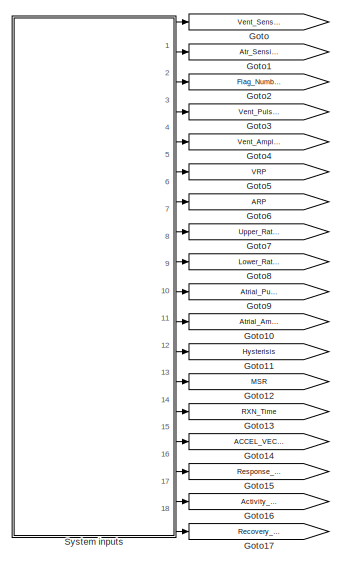
[diagram: root canvas - part 1/2, left side, full height]
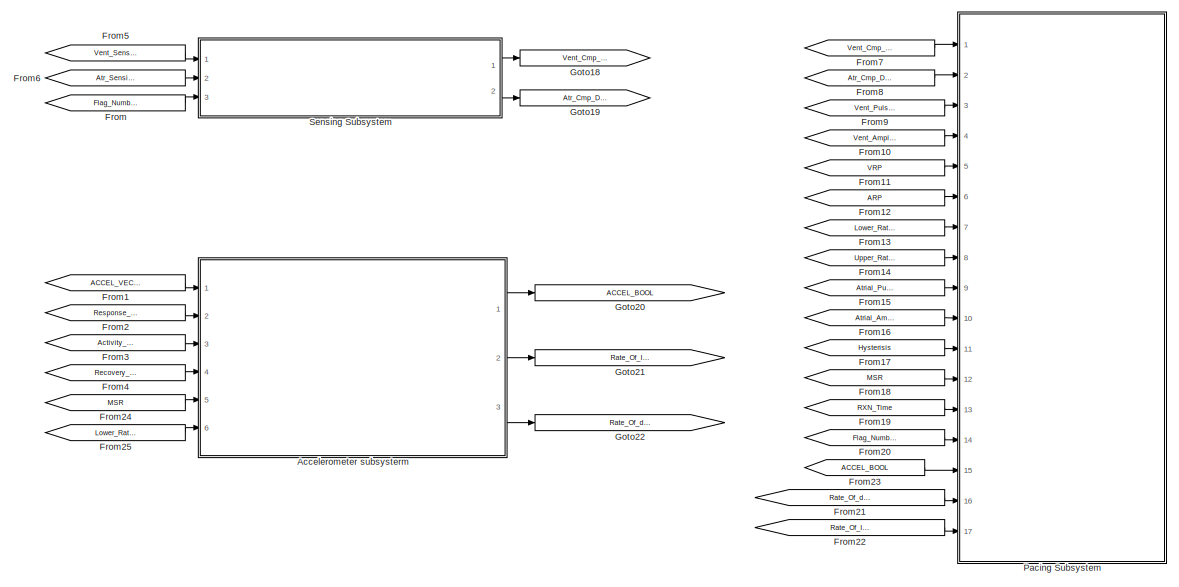
[diagram: root canvas - part 2/2, most of the canvas]
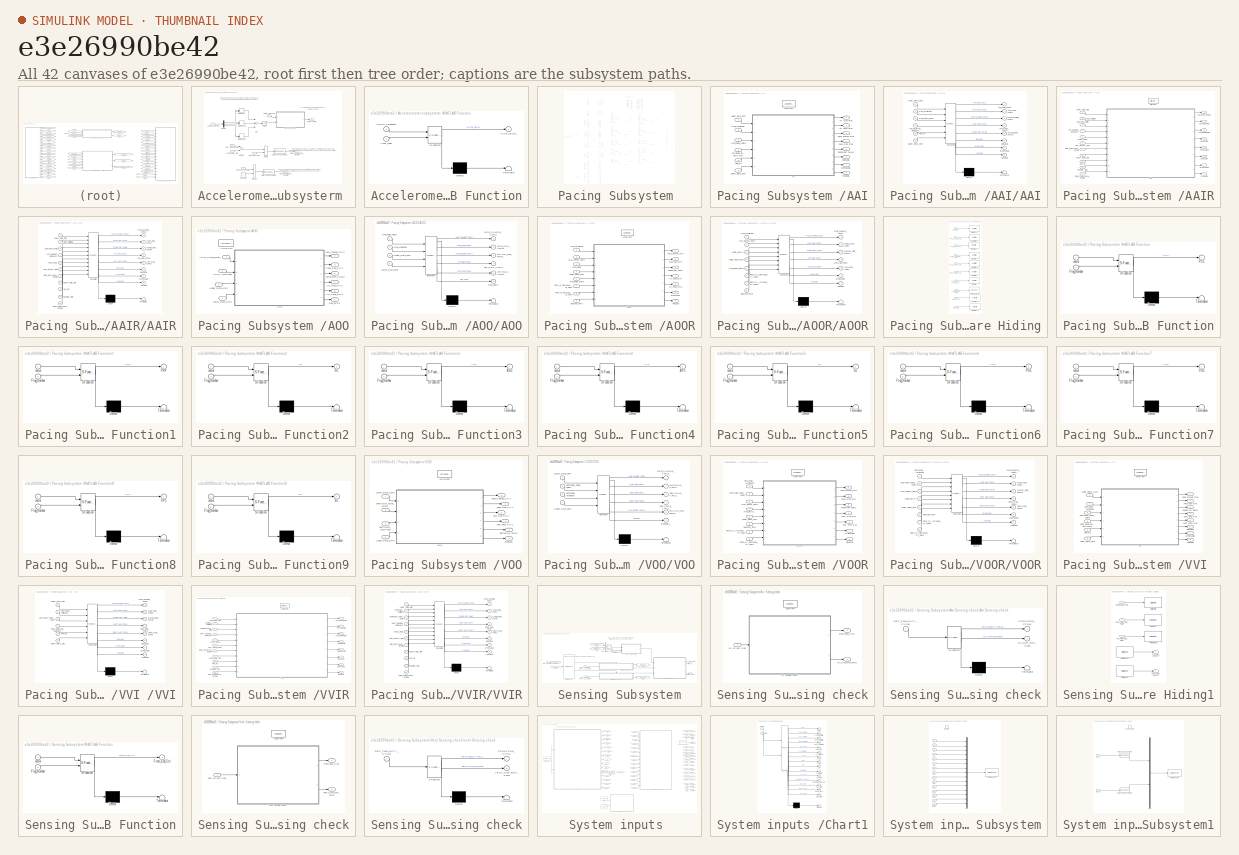
[diagram: thumbnail index - all 42 canvases of the model, root first then tree order]
MODEL slx_e3e26990be42
KIND model
CONFIG AbsTol = auto
CONFIG EnableMultiTasking = on
CONFIG FixedStep = 1e-3
CONFIG MaxStep = auto
CONFIG MinStep = auto
CONFIG RelTol = 1e-3
CONFIG SampleTimeConstraint = Unconstrained
CONFIG Solver = FixedStepAuto
CONFIG SolverName = FixedStepAuto
CONFIG StartTime = 0.0
CONFIG StopTime = inf
BLOCK [SubSystem] Accelerometer subsysterm 
  Ports = [6, 3]
  RequestExecContextInheritance = off
BLOCK [Outport] Accelerometer subsysterm /ACCEL_BOOL
  IconDisplay = Port number
BLOCK [Inport] Accelerometer subsysterm /ACCEL_VECTOR
  IconDisplay = Port number
BLOCK [Inport] Accelerometer subsysterm /Activity_Threshold 
  IconDisplay = Port number
  Port = 3
BLOCK [Sum] Accelerometer subsysterm /Add
  InputSameDT = off
  Inputs = +++
  OutDataTypeStr = Inherit: Inherit via internal rule
  Ports = [3, 1]
  SaturateOnIntegerOverflow = off
BLOCK [Constant] Accelerometer subsysterm /Constant2
  OutDataTypeStr = uint16
  Value = 2
BLOCK [DataTypeConversion] Accelerometer subsysterm /Data Type Conversion
  OutDataTypeStr = double
  RndMeth = Floor
  SaturateOnIntegerOverflow = off
BLOCK [DataTypeConversion] Accelerometer subsysterm /Data Type Conversion1
  OutDataTypeStr = double
  RndMeth = Floor
  SaturateOnIntegerOverflow = off
BLOCK [Demux] Accelerometer subsysterm /Demux
  DisplayOption = bar
  Outputs = 3
  Ports = [1, 3]
BLOCK [Product] Accelerometer subsysterm /Divide
  InputSameDT = off
  Inputs = */
  OutDataTypeStr = Inherit: Inherit via internal rule
  Ports = [2, 1]
  RndMeth = Floor
  SaturateOnIntegerOverflow = off
BLOCK [DotProduct] Accelerometer subsysterm /Dot Product
  OutDataTypeStr = Inherit: Inherit via internal rule
BLOCK [DotProduct] Accelerometer subsysterm /Dot Product1
  OutDataTypeStr = Inherit: Inherit via internal rule
BLOCK [DotProduct] Accelerometer subsysterm /Dot Product2
  OutDataTypeStr = Inherit: Inherit via internal rule
BLOCK [Inport] Accelerometer subsysterm /Lower_Rate_Limit
  IconDisplay = Port number
  Port = 6
BLOCK [SubSystem] Accelerometer subsysterm /MATLAB Function
  ErrorFcn = Stateflow.Translate.translate
  PermitHierarchicalResolution = ExplicitOnly
  Ports = [2, 1]
  RequestExecContextInheritance = off
  SFBlockType = MATLAB Function
  TreatAsAtomicUnit = on
BLOCK [Demux] Accelerometer subsysterm /MATLAB Function/ Demux 
  Outputs = 1
  Ports = [1, 1]
BLOCK [S-Function] Accelerometer subsysterm /MATLAB Function/ SFunction 
  EnableBusSupport = on
  FunctionName = sf_sfun
  PortCounts = [2 2]
  Ports = [2, 2]
  SFcnIsStateOwnerBlock = off
  SFunctionDeploymentMode = off
  Tag = Stateflow S-Function Assignment2_group14 10
BLOCK [Terminator] Accelerometer subsysterm /MATLAB Function/ Terminator 
BLOCK [Outport] Accelerometer subsysterm /MATLAB Function/ACCEL_BOOL
  IconDisplay = Port number
BLOCK [Inport] Accelerometer subsysterm /MATLAB Function/Accel_Mag
  IconDisplay = Port number
  Port = 2
BLOCK [Inport] Accelerometer subsysterm /MATLAB Function/Activity_Threshold
  IconDisplay = Port number
BLOCK [Inport] Accelerometer subsysterm /Max_Sensor_Rate
  IconDisplay = Port number
  Port = 5
BLOCK [Product] Accelerometer subsysterm /Product
  InputSameDT = off
  OutDataTypeStr = uint16
  Ports = [2, 1]
  RndMeth = Floor
  SaturateOnIntegerOverflow = off
BLOCK [Outport] Accelerometer subsysterm /Rate_Of_Increase_Of_Rate
  IconDisplay = Port number
  OutDataTypeStr = double
  Port = 2
BLOCK [Outport] Accelerometer subsysterm /Rate_Of_decrease_Of_Rate
  IconDisplay = Port number
  OutDataTypeStr = double
  Port = 3
BLOCK [Inport] Accelerometer subsysterm /Recovery_Time
  IconDisplay = Port number
  OutDataTypeStr = uint16
  Port = 4
BLOCK [Inport] Accelerometer subsysterm /Response_Factor
  IconDisplay = Port number
  OutDataTypeStr = uint16
  Port = 2
BLOCK [Sqrt] Accelerometer subsysterm /Sqrt
BLOCK [Sum] Accelerometer subsysterm /Subtract
  InputSameDT = off
  Inputs = +-
  OutDataTypeStr = Inherit: Inherit via internal rule
  Ports = [2, 1]
  SaturateOnIntegerOverflow = off
BLOCK [From] From
  GotoTag = Flag_Number
BLOCK [From] From1
  GotoTag = ACCEL_VECTOR
BLOCK [From] From10
  GotoTag = Vent_Amplitude
BLOCK [From] From11
  GotoTag = VRP
BLOCK [From] From12
  GotoTag = ARP
BLOCK [From] From13
  GotoTag = Lower_Rate_Limit
BLOCK [From] From14
  GotoTag = Upper_Rate_Limit
BLOCK [From] From15
  GotoTag = Atrial_Pulse_Width
BLOCK [From] From16
  GotoTag = Atrial_Amplitude
BLOCK [From] From17
  GotoTag = Hysterisis
BLOCK [From] From18
  GotoTag = MSR
BLOCK [From] From19
  GotoTag = RXN_Time
BLOCK [From] From2
  GotoTag = Response_Factor
BLOCK [From] From20
  GotoTag = Flag_Number
BLOCK [From] From21
  GotoTag = Rate_Of_decrease_Of_Rate
BLOCK [From] From22
  GotoTag = Rate_Of_Increase_Of_Rate
BLOCK [From] From23
  GotoTag = ACCEL_BOOL
BLOCK [From] From24
  GotoTag = MSR
BLOCK [From] From25
  GotoTag = Lower_Rate_Limit
BLOCK [From] From3
  GotoTag = Activity_Threshold
BLOCK [From] From4
  GotoTag = Recovery_Time
BLOCK [From] From5
  GotoTag = Vent_Sensing_Duty_Cycle
BLOCK [From] From6
  GotoTag = Atr_Sensing_Duty_Cycle
BLOCK [From] From7
  GotoTag = Vent_Cmp_Detect
BLOCK [From] From8
  GotoTag = Atr_Cmp_Detect
BLOCK [From] From9
  GotoTag = Vent_Pulse_Width
BLOCK [Goto] Goto
  GotoTag = Vent_Sensing_Duty_Cycle
BLOCK [Goto] Goto1
  GotoTag = Atr_Sensing_Duty_Cycle
BLOCK [Goto] Goto10
  GotoTag = Atrial_Amplitude
BLOCK [Goto] Goto11
  GotoTag = Hysterisis
BLOCK [Goto] Goto12
  GotoTag = MSR
BLOCK [Goto] Goto13
  GotoTag = RXN_Time
BLOCK [Goto] Goto14
  GotoTag = ACCEL_VECTOR
BLOCK [Goto] Goto15
  GotoTag = Response_Factor
BLOCK [Goto] Goto16
  GotoTag = Activity_Threshold
BLOCK [Goto] Goto17
  GotoTag = Recovery_Time
BLOCK [Goto] Goto18
  GotoTag = Vent_Cmp_Detect
BLOCK [Goto] Goto19
  GotoTag = Atr_Cmp_Detect
BLOCK [Goto] Goto2
  GotoTag = Flag_Number
BLOCK [Goto] Goto20
  GotoTag = ACCEL_BOOL
BLOCK [Goto] Goto21
  GotoTag = Rate_Of_Increase_Of_Rate
BLOCK [Goto] Goto22
  GotoTag = Rate_Of_decrease_Of_Rate
BLOCK [Goto] Goto3
  GotoTag = Vent_Pulse_Width
BLOCK [Goto] Goto4
  GotoTag = Vent_Amplitude
BLOCK [Goto] Goto5
  GotoTag = VRP
BLOCK [Goto] Goto6
  GotoTag = ARP
BLOCK [Goto] Goto7
  GotoTag = Upper_Rate_Limit
BLOCK [Goto] Goto8
  GotoTag = Lower_Rate_Limit
BLOCK [Goto] Goto9
  GotoTag = Atrial_Pulse_Width
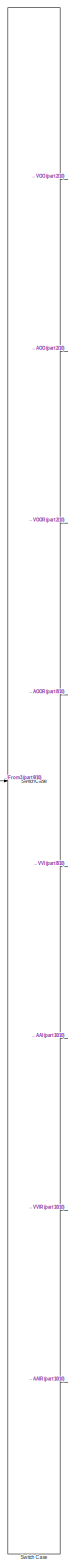
[diagram: Pacing Subsystem  - part 1/10, left side, full height]
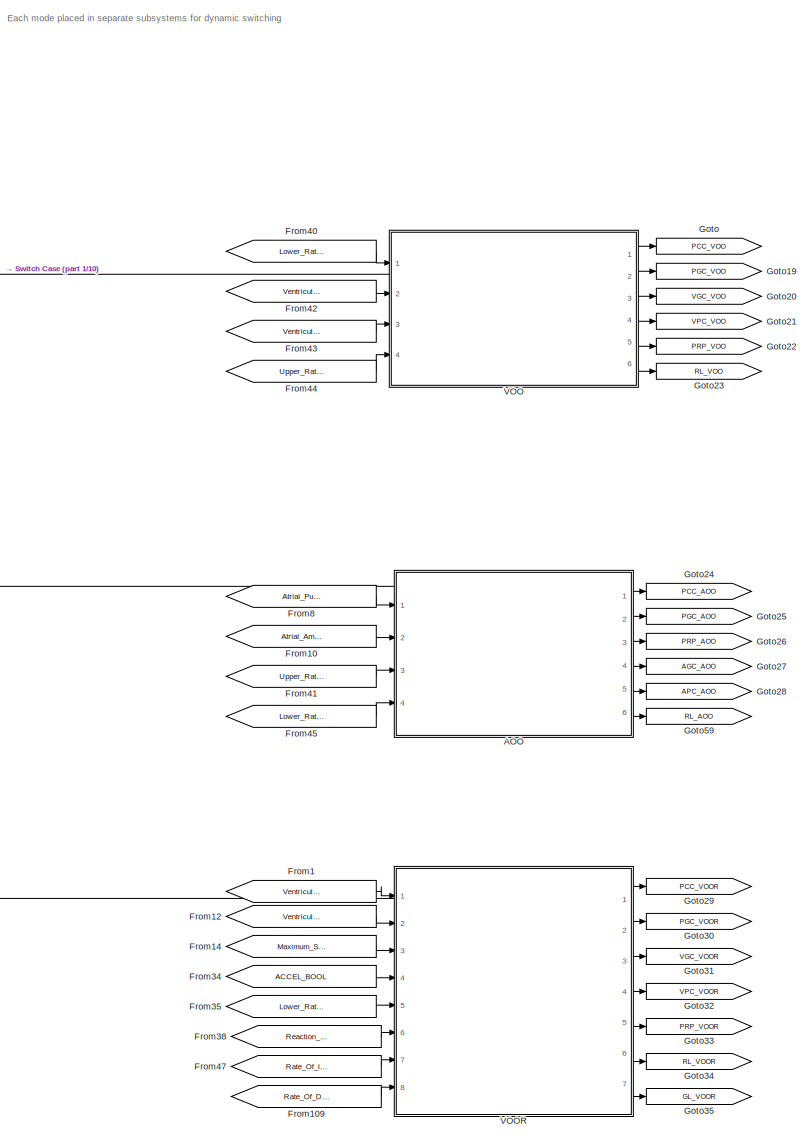
[diagram: Pacing Subsystem  - part 2/10, top left region]
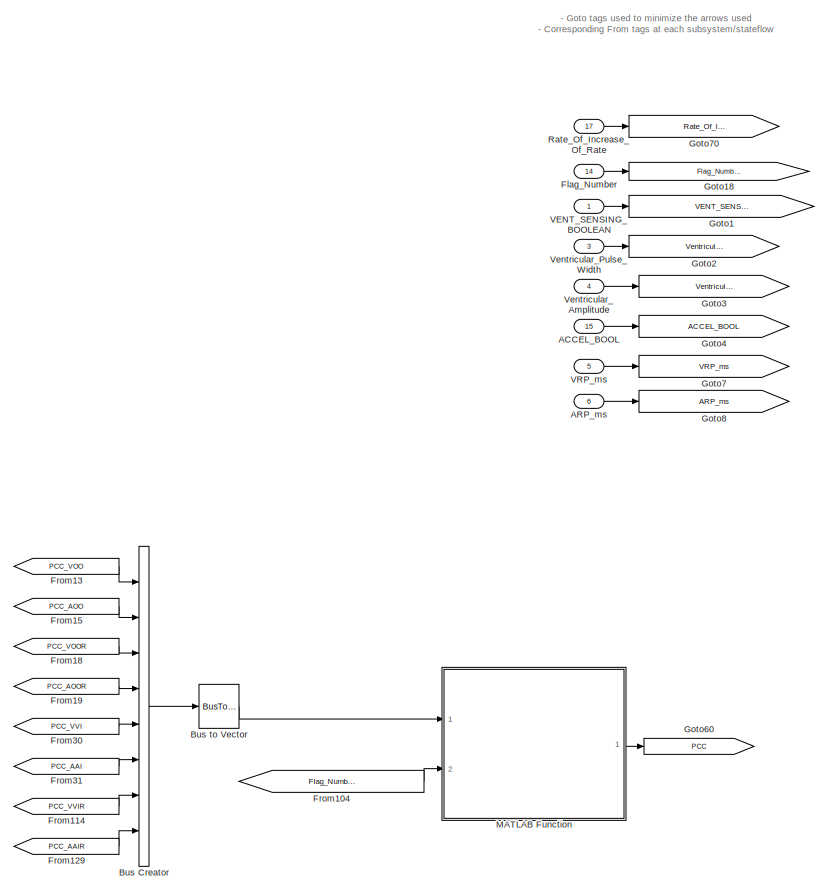
[diagram: Pacing Subsystem  - part 3/10, top center region]
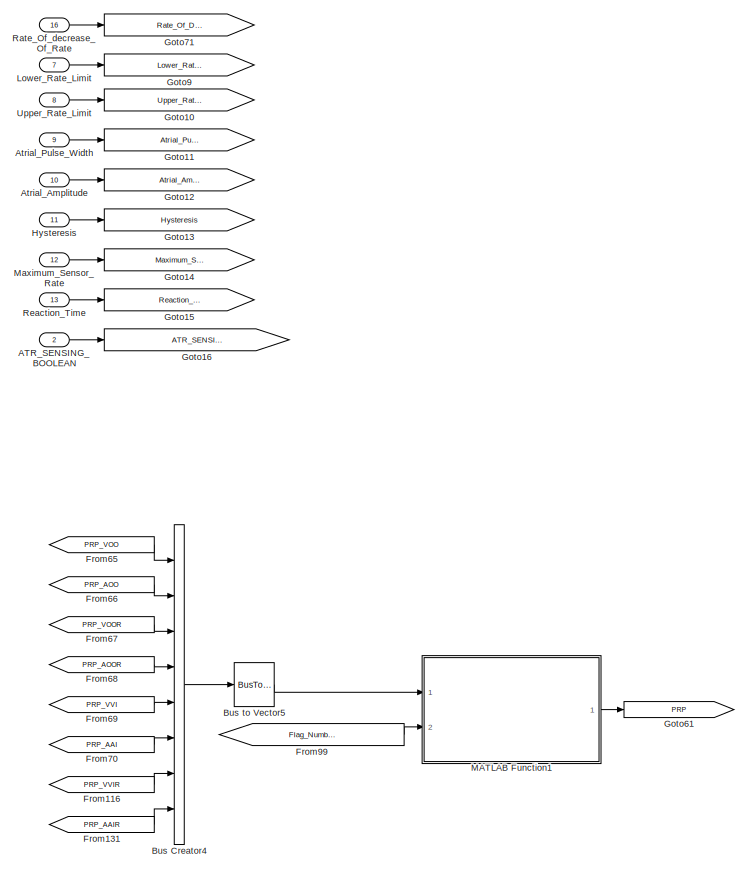
[diagram: Pacing Subsystem  - part 4/10, top right region]
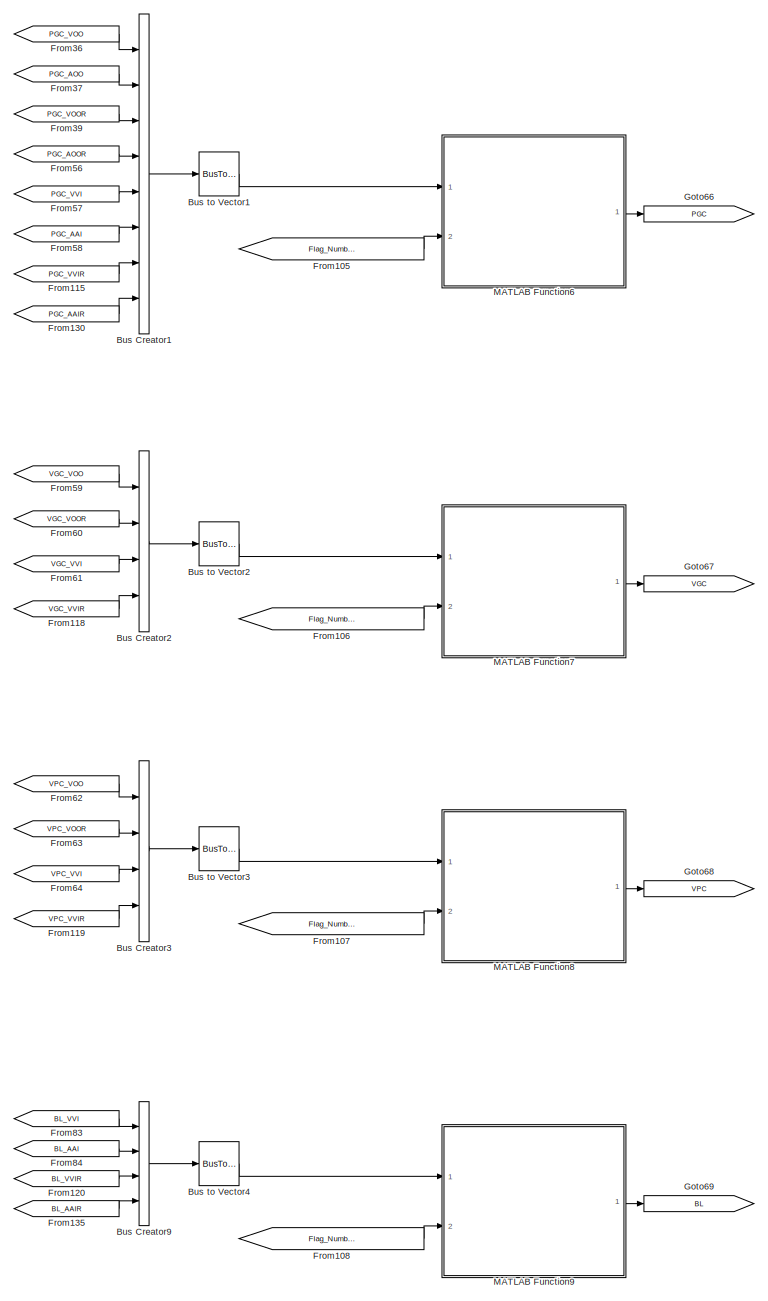
[diagram: Pacing Subsystem  - part 5/10, central region]
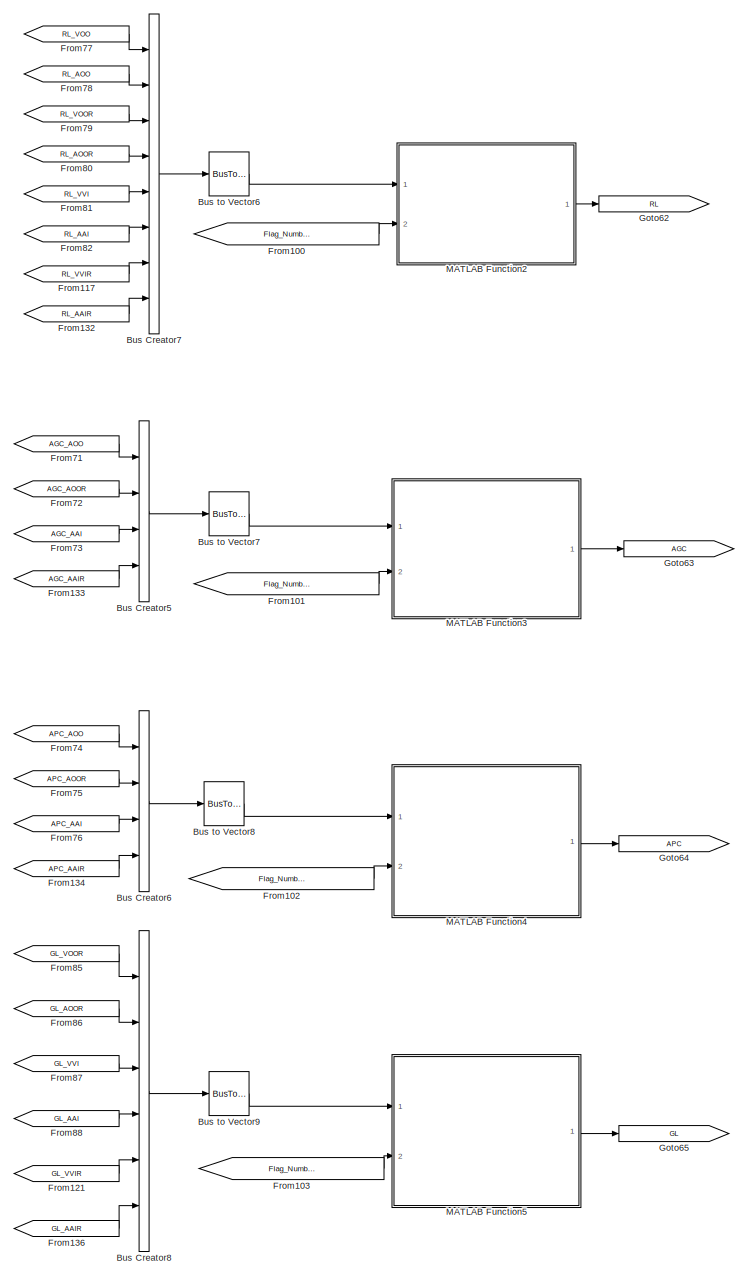
[diagram: Pacing Subsystem  - part 6/10, middle right region]
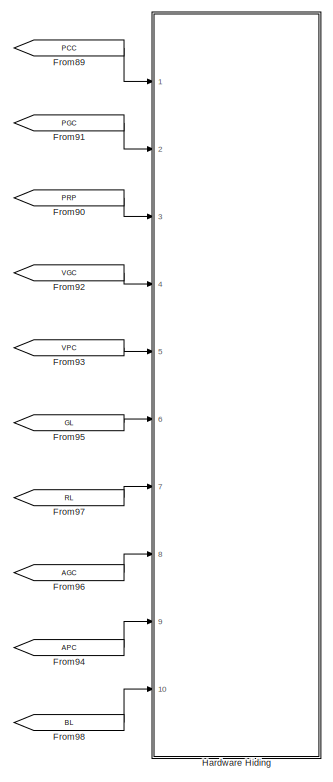
[diagram: Pacing Subsystem  - part 7/10, middle right region]
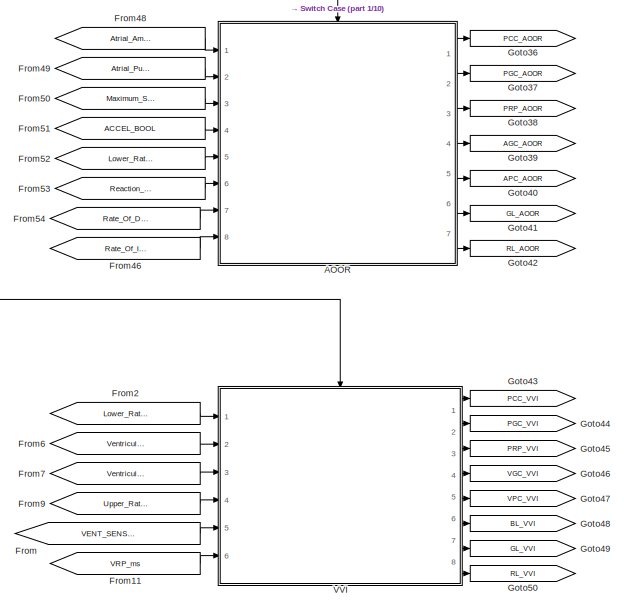
[diagram: Pacing Subsystem  - part 8/10, middle left region]
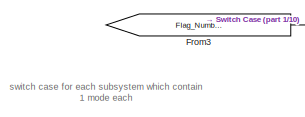
[diagram: Pacing Subsystem  - part 9/10, middle left region]
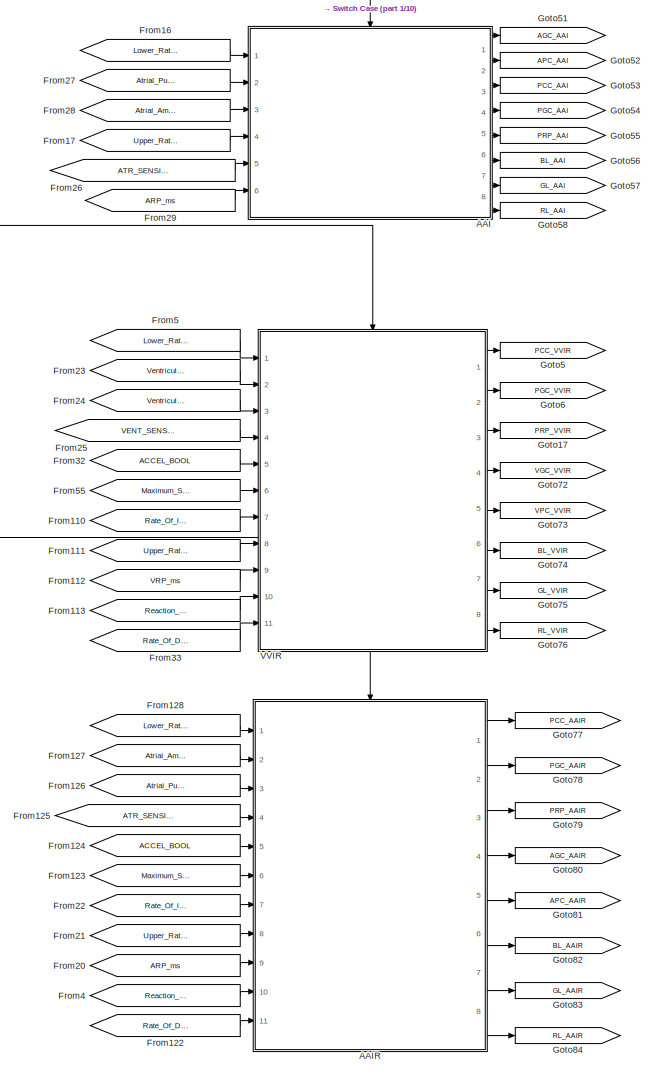
[diagram: Pacing Subsystem  - part 10/10, bottom left region]
BLOCK [SubSystem] Pacing Subsystem 
  Ports = [17]
  RequestExecContextInheritance = off
BLOCK [SubSystem] Pacing Subsystem /AAI
  Ports = [6, 8, 0, 0, 0, 0, 0, 1]
  RequestExecContextInheritance = off
  TreatAsAtomicUnit = on
BLOCK [SubSystem] Pacing Subsystem /AAI/AAI
  ErrorFcn = Stateflow.Translate.translate
  PermitHierarchicalResolution = ExplicitOnly
  Ports = [6, 8]
  RequestExecContextInheritance = off
  SFBlockType = Chart
  TreatAsAtomicUnit = on
BLOCK [Demux] Pacing Subsystem /AAI/AAI/ Demux 
  Outputs = 1
  Ports = [1, 1]
BLOCK [S-Function] Pacing Subsystem /AAI/AAI/ SFunction 
  EnableBusSupport = on
  FunctionName = sf_sfun
  PortCounts = [6 9]
  Ports = [6, 9]
  SFcnIsStateOwnerBlock = off
  SFunctionDeploymentMode = off
  Tag = Stateflow S-Function Assignment2_group14 7
BLOCK [Terminator] Pacing Subsystem /AAI/AAI/ Terminator 
BLOCK [Inport] Pacing Subsystem /AAI/AAI/ARP_ms
  IconDisplay = Port number
  Port = 5
BLOCK [Outport] Pacing Subsystem /AAI/AAI/ATR_GND_CTRL6
  IconDisplay = Port number
BLOCK [Outport] Pacing Subsystem /AAI/AAI/ATR_PACE_CTRL6
  IconDisplay = Port number
  Port = 2
BLOCK [Inport] Pacing Subsystem /AAI/AAI/ATR_SENSING_BOOLEAN
  IconDisplay = Port number
  Port = 4
BLOCK [Inport] Pacing Subsystem /AAI/AAI/Atrial_Amplitude
  IconDisplay = Port number
  Port = 2
BLOCK [Inport] Pacing Subsystem /AAI/AAI/Atrial_Pulse_Width
  IconDisplay = Port number
  Port = 3
BLOCK [Inport] Pacing Subsystem /AAI/AAI/Lower_Rate_Limit
  IconDisplay = Port number
BLOCK [Outport] Pacing Subsystem /AAI/AAI/PACE_CHARGE_CTRL6
  IconDisplay = Port number
  Port = 3
BLOCK [Outport] Pacing Subsystem /AAI/AAI/PACE_GND_CTRL6
  IconDisplay = Port number
  Port = 4
BLOCK [Outport] Pacing Subsystem /AAI/AAI/PACING_REF_PWM6
  IconDisplay = Port number
  Port = 5
BLOCK [Inport] Pacing Subsystem /AAI/AAI/Upper_Rate_Limit
  IconDisplay = Port number
  Port = 6
BLOCK [Outport] Pacing Subsystem /AAI/AAI/blueLED6
  IconDisplay = Port number
  Port = 6
BLOCK [Outport] Pacing Subsystem /AAI/AAI/greenLED6
  IconDisplay = Port number
  Port = 7
BLOCK [Outport] Pacing Subsystem /AAI/AAI/redLED6
  IconDisplay = Port number
  Port = 8
BLOCK [Inport] Pacing Subsystem /AAI/ARP_ms
  IconDisplay = Port number
  Port = 6
BLOCK [Inport] Pacing Subsystem /AAI/ATR_SENSING_BOOLEAN
  IconDisplay = Port number
  Port = 5
BLOCK [ActionPort] Pacing Subsystem /AAI/Action Port
  ActionType = case
BLOCK [Outport] Pacing Subsystem /AAI/Atr Gnd Ctrl6
  IconDisplay = Port number
BLOCK [Outport] Pacing Subsystem /AAI/Atr Pace Ctrl6
  IconDisplay = Port number
  Port = 2
BLOCK [Inport] Pacing Subsystem /AAI/Atrial_Amplitude
  IconDisplay = Port number
  Port = 3
BLOCK [Inport] Pacing Subsystem /AAI/Atrial_Pulse_Width
  IconDisplay = Port number
  Port = 2
BLOCK [Inport] Pacing Subsystem /AAI/Lower_Rate_Limit
  IconDisplay = Port number
BLOCK [Outport] Pacing Subsystem /AAI/Pace Charge Ctrl6
  IconDisplay = Port number
  Port = 3
BLOCK [Outport] Pacing Subsystem /AAI/Pace Gnd Ctrl6
  IconDisplay = Port number
  Port = 4
BLOCK [Outport] Pacing Subsystem /AAI/Pacing Ref PWM6
  IconDisplay = Port number
  Port = 5
BLOCK [Inport] Pacing Subsystem /AAI/Upper_Rate_Limit
  IconDisplay = Port number
  Port = 4
BLOCK [Outport] Pacing Subsystem /AAI/blueLED6
  IconDisplay = Port number
  Port = 6
BLOCK [Outport] Pacing Subsystem /AAI/greenLED6
  IconDisplay = Port number
  Port = 7
BLOCK [Outport] Pacing Subsystem /AAI/redLED6
  IconDisplay = Port number
  Port = 8
BLOCK [SubSystem] Pacing Subsystem /AAIR
  Ports = [11, 8, 0, 0, 0, 0, 0, 1]
  RequestExecContextInheritance = off
  TreatAsAtomicUnit = on
BLOCK [SubSystem] Pacing Subsystem /AAIR/AAIR
  ErrorFcn = Stateflow.Translate.translate
  PermitHierarchicalResolution = ExplicitOnly
  Ports = [11, 8]
  RequestExecContextInheritance = off
  SFBlockType = Chart
  TreatAsAtomicUnit = on
BLOCK [Demux] Pacing Subsystem /AAIR/AAIR/ Demux 
  Outputs = 1
  Ports = [1, 1]
BLOCK [S-Function] Pacing Subsystem /AAIR/AAIR/ SFunction 
  EnableBusSupport = on
  FunctionName = sf_sfun
  PortCounts = [11 9]
  Ports = [11, 9]
  SFcnIsStateOwnerBlock = off
  SFunctionDeploymentMode = off
  Tag = Stateflow S-Function Assignment2_group14 8
BLOCK [Terminator] Pacing Subsystem /AAIR/AAIR/ Terminator 
BLOCK [Inport] Pacing Subsystem /AAIR/AAIR/ACCEL_BOOL
  IconDisplay = Port number
  Port = 5
BLOCK [Inport] Pacing Subsystem /AAIR/AAIR/ARP_ms
  IconDisplay = Port number
  Port = 9
BLOCK [Outport] Pacing Subsystem /AAIR/AAIR/ATR_GND_CTRL8
  IconDisplay = Port number
  Port = 4
BLOCK [Outport] Pacing Subsystem /AAIR/AAIR/ATR_PACE_CTRL8
  IconDisplay = Port number
  Port = 5
BLOCK [Inport] Pacing Subsystem /AAIR/AAIR/ATR_SENSING_BOOLEAN
  IconDisplay = Port number
  Port = 4
BLOCK [Inport] Pacing Subsystem /AAIR/AAIR/Atrial_Amplitude
  IconDisplay = Port number
  Port = 2
BLOCK [Inport] Pacing Subsystem /AAIR/AAIR/Atrial_Pulse_Width
  IconDisplay = Port number
  Port = 3
BLOCK [Inport] Pacing Subsystem /AAIR/AAIR/Lower_Rate_Limit
  IconDisplay = Port number
BLOCK [Inport] Pacing Subsystem /AAIR/AAIR/Max_Sensor_Rate
  IconDisplay = Port number
  Port = 6
BLOCK [Outport] Pacing Subsystem /AAIR/AAIR/PACE_CHARGE_CTRL8
  IconDisplay = Port number
BLOCK [Outport] Pacing Subsystem /AAIR/AAIR/PACE_GND_CTRL8
  IconDisplay = Port number
  Port = 2
BLOCK [Outport] Pacing Subsystem /AAIR/AAIR/PACING_REF_PWM8
  IconDisplay = Port number
  Port = 3
BLOCK [Inport] Pacing Subsystem /AAIR/AAIR/Rate_Of_Decrease_Of_Rate
  IconDisplay = Port number
  Port = 11
BLOCK [Inport] Pacing Subsystem /AAIR/AAIR/Rate_Of_Increase_Of_Rate
  IconDisplay = Port number
  Port = 7
BLOCK [Inport] Pacing Subsystem /AAIR/AAIR/Reaction_Time
  IconDisplay = Port number
  Port = 10
BLOCK [Inport] Pacing Subsystem /AAIR/AAIR/Upper_Rate_Limit
  IconDisplay = Port number
  Port = 8
BLOCK [Outport] Pacing Subsystem /AAIR/AAIR/blueLED8
  IconDisplay = Port number
  Port = 6
BLOCK [Outport] Pacing Subsystem /AAIR/AAIR/greenLED8
  IconDisplay = Port number
  Port = 7
BLOCK [Outport] Pacing Subsystem /AAIR/AAIR/redLED8
  IconDisplay = Port number
  Port = 8
BLOCK [Inport] Pacing Subsystem /AAIR/ACCEL_BOOL
  IconDisplay = Port number
  Port = 5
BLOCK [Inport] Pacing Subsystem /AAIR/ARP_ms
  IconDisplay = Port number
  Port = 9
BLOCK [Inport] Pacing Subsystem /AAIR/ATR_SENSING_BOOLEAN
  IconDisplay = Port number
  Port = 4
BLOCK [ActionPort] Pacing Subsystem /AAIR/Action Port
  ActionType = case
BLOCK [Outport] Pacing Subsystem /AAIR/Atr Gnd Ctrl8
  IconDisplay = Port number
  Port = 4
BLOCK [Outport] Pacing Subsystem /AAIR/Atr Pace Ctrl8
  IconDisplay = Port number
  Port = 5
BLOCK [Inport] Pacing Subsystem /AAIR/Atrial_Amplitude
  IconDisplay = Port number
  Port = 2
BLOCK [Inport] Pacing Subsystem /AAIR/Atrial_Pulse_Width
  IconDisplay = Port number
  Port = 3
BLOCK [Inport] Pacing Subsystem /AAIR/Lower_Rate_Limit
  IconDisplay = Port number
BLOCK [Inport] Pacing Subsystem /AAIR/Max_Sensor_Rate
  IconDisplay = Port number
  Port = 6
BLOCK [Outport] Pacing Subsystem /AAIR/Pace Charge Ctrl8
  IconDisplay = Port number
BLOCK [Outport] Pacing Subsystem /AAIR/Pace Gnd Ctrl8
  IconDisplay = Port number
  Port = 2
BLOCK [Outport] Pacing Subsystem /AAIR/Pacing Ref PWM 8
  IconDisplay = Port number
  Port = 3
BLOCK [Inport] Pacing Subsystem /AAIR/Rate_Of_Decrease_Of_Rate
  IconDisplay = Port number
  Port = 11
BLOCK [Inport] Pacing Subsystem /AAIR/Rate_Of_Increase_Of_Rate
  IconDisplay = Port number
  Port = 7
BLOCK [Inport] Pacing Subsystem /AAIR/Reaction_Time
  IconDisplay = Port number
  Port = 10
BLOCK [Inport] Pacing Subsystem /AAIR/Upper_Rate_Limit
  IconDisplay = Port number
  Port = 8
BLOCK [Outport] Pacing Subsystem /AAIR/blueLED8
  IconDisplay = Port number
  Port = 6
BLOCK [Outport] Pacing Subsystem /AAIR/greenLED8
  IconDisplay = Port number
  Port = 7
BLOCK [Outport] Pacing Subsystem /AAIR/redLED8
  IconDisplay = Port number
  Port = 8
BLOCK [Inport] Pacing Subsystem /ACCEL_BOOL
  IconDisplay = Port number
  Port = 15
BLOCK [SubSystem] Pacing Subsystem /AOO
  Ports = [4, 6, 0, 0, 0, 0, 0, 1]
  RequestExecContextInheritance = off
  TreatAsAtomicUnit = on
BLOCK [SubSystem] Pacing Subsystem /AOO/AOO
  ErrorFcn = Stateflow.Translate.translate
  PermitHierarchicalResolution = ExplicitOnly
  Ports = [4, 6]
  RequestExecContextInheritance = off
  SFBlockType = Chart
  TreatAsAtomicUnit = on
BLOCK [Demux] Pacing Subsystem /AOO/AOO/ Demux 
  Outputs = 1
  Ports = [1, 1]
BLOCK [S-Function] Pacing Subsystem /AOO/AOO/ SFunction 
  EnableBusSupport = on
  FunctionName = sf_sfun
  PortCounts = [4 7]
  Ports = [4, 7]
  SFcnIsStateOwnerBlock = off
  SFunctionDeploymentMode = off
  Tag = Stateflow S-Function Assignment2_group14 5
BLOCK [Terminator] Pacing Subsystem /AOO/AOO/ Terminator 
BLOCK [Outport] Pacing Subsystem /AOO/AOO/ATR_GND_CTRL2
  IconDisplay = Port number
  Port = 4
BLOCK [Outport] Pacing Subsystem /AOO/AOO/ATR_PACE_CTRL2
  IconDisplay = Port number
  Port = 5
BLOCK [Inport] Pacing Subsystem /AOO/AOO/Atrial_Amplitude
  IconDisplay = Port number
  Port = 2
BLOCK [Inport] Pacing Subsystem /AOO/AOO/Atrial_Pulse_Width
  IconDisplay = Port number
BLOCK [Inport] Pacing Subsystem /AOO/AOO/Lower_Rate_Limit
  IconDisplay = Port number
  Port = 4
BLOCK [Outport] Pacing Subsystem /AOO/AOO/PACE_CHARGE_CTRL2
  IconDisplay = Port number
BLOCK [Outport] Pacing Subsystem /AOO/AOO/PACE_GND_CTRL2
  IconDisplay = Port number
  Port = 2
BLOCK [Outport] Pacing Subsystem /AOO/AOO/PACING_REF_PWM2
  IconDisplay = Port number
  Port = 3
BLOCK [Outport] Pacing Subsystem /AOO/AOO/Red_LED2
  IconDisplay = Port number
  Port = 6
BLOCK [Inport] Pacing Subsystem /AOO/AOO/Upper_Rate_Limit
  IconDisplay = Port number
  Port = 3
BLOCK [ActionPort] Pacing Subsystem /AOO/Action Port
  ActionType = case
BLOCK [Outport] Pacing Subsystem /AOO/Atr_Gnd_Ctrl2
  IconDisplay = Port number
  Port = 4
BLOCK [Outport] Pacing Subsystem /AOO/Atr_Pace_Ctrl2
  IconDisplay = Port number
  Port = 5
BLOCK [Inport] Pacing Subsystem /AOO/Atrial_Amplitude
  IconDisplay = Port number
  Port = 2
BLOCK [Inport] Pacing Subsystem /AOO/Atrial_Pulse_Width
  IconDisplay = Port number
BLOCK [Inport] Pacing Subsystem /AOO/Lower_Rate_Limit
  IconDisplay = Port number
  Port = 4
BLOCK [Outport] Pacing Subsystem /AOO/Pace_Charge_Ctrl2
  IconDisplay = Port number
BLOCK [Outport] Pacing Subsystem /AOO/Pace_Gnd_Ctrl2
  IconDisplay = Port number
  Port = 2
BLOCK [Outport] Pacing Subsystem /AOO/Pacing_Ref_Pwm2
  IconDisplay = Port number
  Port = 3
BLOCK [Outport] Pacing Subsystem /AOO/Red_LED2
  IconDisplay = Port number
  Port = 6
BLOCK [Inport] Pacing Subsystem /AOO/Upper_Rate_Limit
  IconDisplay = Port number
  Port = 3
BLOCK [SubSystem] Pacing Subsystem /AOOR
  Ports = [8, 7, 0, 0, 0, 0, 0, 1]
  RequestExecContextInheritance = off
  TreatAsAtomicUnit = on
BLOCK [SubSystem] Pacing Subsystem /AOOR/AOOR
  ErrorFcn = Stateflow.Translate.translate
  PermitHierarchicalResolution = ExplicitOnly
  Ports = [8, 7]
  RequestExecContextInheritance = off
  SFBlockType = Chart
  TreatAsAtomicUnit = on
BLOCK [Demux] Pacing Subsystem /AOOR/AOOR/ Demux 
  Outputs = 1
  Ports = [1, 1]
BLOCK [S-Function] Pacing Subsystem /AOOR/AOOR/ SFunction 
  EnableBusSupport = on
  FunctionName = sf_sfun
  PortCounts = [8 8]
  Ports = [8, 8]
  SFcnIsStateOwnerBlock = off
  SFunctionDeploymentMode = off
  Tag = Stateflow S-Function Assignment2_group14 12
BLOCK [Terminator] Pacing Subsystem /AOOR/AOOR/ Terminator 
BLOCK [Inport] Pacing Subsystem /AOOR/AOOR/ACCEL_BOOL
  IconDisplay = Port number
  Port = 3
BLOCK [Outport] Pacing Subsystem /AOOR/AOOR/ATR_GND_CTRL4
  IconDisplay = Port number
  Port = 4
BLOCK [Outport] Pacing Subsystem /AOOR/AOOR/ATR_PACE_CTRL4
  IconDisplay = Port number
  Port = 5
BLOCK [Inport] Pacing Subsystem /AOOR/AOOR/Atrial_Amplitude
  IconDisplay = Port number
BLOCK [Inport] Pacing Subsystem /AOOR/AOOR/Atrial_Pulse_Width
  IconDisplay = Port number
  Port = 5
BLOCK [Inport] Pacing Subsystem /AOOR/AOOR/Lower_Rate_Limit
  IconDisplay = Port number
  Port = 4
BLOCK [Inport] Pacing Subsystem /AOOR/AOOR/Max_Sensor_Rate
  IconDisplay = Port number
  Port = 2
BLOCK [Outport] Pacing Subsystem /AOOR/AOOR/PACE_CHARGE_CTRL4
  IconDisplay = Port number
BLOCK [Outport] Pacing Subsystem /AOOR/AOOR/PACE_GND_CTRL4
  IconDisplay = Port number
  Port = 2
BLOCK [Outport] Pacing Subsystem /AOOR/AOOR/PACING_REF_PWM4
  IconDisplay = Port number
  Port = 3
BLOCK [Inport] Pacing Subsystem /AOOR/AOOR/Rate_Of_Decrease_Of_Rate
  IconDisplay = Port number
  Port = 6
BLOCK [Inport] Pacing Subsystem /AOOR/AOOR/Rate_Of_Increase_Of_Rate
  IconDisplay = Port number
  Port = 7
BLOCK [Inport] Pacing Subsystem /AOOR/AOOR/Reaction_Time
  IconDisplay = Port number
  Port = 8
BLOCK [Outport] Pacing Subsystem /AOOR/AOOR/greenLED4
  IconDisplay = Port number
  Port = 6
BLOCK [Outport] Pacing Subsystem /AOOR/AOOR/redLED4
  IconDisplay = Port number
  Port = 7
BLOCK [Inport] Pacing Subsystem /AOOR/Accel_BOOL
  IconDisplay = Port number
  Port = 4
BLOCK [ActionPort] Pacing Subsystem /AOOR/Action Port
  ActionType = case
BLOCK [Outport] Pacing Subsystem /AOOR/Atr_Gnd_Ctrl4
  IconDisplay = Port number
  Port = 4
BLOCK [Outport] Pacing Subsystem /AOOR/Atr_Pace_Ctrl4
  IconDisplay = Port number
  Port = 5
BLOCK [Inport] Pacing Subsystem /AOOR/Atrial_Amplitude
  IconDisplay = Port number
BLOCK [Inport] Pacing Subsystem /AOOR/Atrial_Pulse_Width
  IconDisplay = Port number
  Port = 2
BLOCK [Inport] Pacing Subsystem /AOOR/Lower_Rate_Limit
  IconDisplay = Port number
  Port = 5
BLOCK [Inport] Pacing Subsystem /AOOR/Max_Sensor_Rate
  IconDisplay = Port number
  Port = 3
BLOCK [Outport] Pacing Subsystem /AOOR/Pace_Charge_Ctrl4
  IconDisplay = Port number
BLOCK [Outport] Pacing Subsystem /AOOR/Pace_Gnd_Ctrl4
  IconDisplay = Port number
  Port = 2
BLOCK [Outport] Pacing Subsystem /AOOR/Pacing_Ref_Pwm4
  IconDisplay = Port number
  Port = 3
BLOCK [Inport] Pacing Subsystem /AOOR/Rate_Of_Decrease_Of_Rate
  IconDisplay = Port number
  Port = 7
BLOCK [Inport] Pacing Subsystem /AOOR/Rate_Of_increase_Of_Rate
  IconDisplay = Port number
  Port = 8
BLOCK [Inport] Pacing Subsystem /AOOR/Reaction_Time
  IconDisplay = Port number
  Port = 6
BLOCK [Outport] Pacing Subsystem /AOOR/greenLed4
  IconDisplay = Port number
  Port = 6
BLOCK [Outport] Pacing Subsystem /AOOR/redLEd4
  IconDisplay = Port number
  Port = 7
BLOCK [Inport] Pacing Subsystem /ARP_ms
  IconDisplay = Port number
  Port = 6
BLOCK [Inport] Pacing Subsystem /ATR_SENSING_BOOLEAN
  IconDisplay = Port number
  Port = 2
BLOCK [Inport] Pacing Subsystem /Atrial_Amplitude
  IconDisplay = Port number
  OutDataTypeStr = uint16
  Port = 10
BLOCK [Inport] Pacing Subsystem /Atrial_Pulse_Width
  IconDisplay = Port number
  Port = 9
BLOCK [BusCreator] Pacing Subsystem /Bus Creator
  DisplayOption = bar
  InheritFromInputs = on
  Inputs = 8
  Ports = [8, 1]
BLOCK [BusCreator] Pacing Subsystem /Bus Creator1
  DisplayOption = bar
  InheritFromInputs = on
  Inputs = 8
  Ports = [8, 1]
BLOCK [BusCreator] Pacing Subsystem /Bus Creator2
  DisplayOption = bar
  InheritFromInputs = on
  Inputs = 4
  Ports = [4, 1]
BLOCK [BusCreator] Pacing Subsystem /Bus Creator3
  DisplayOption = bar
  InheritFromInputs = on
  Inputs = 4
  Ports = [4, 1]
BLOCK [BusCreator] Pacing Subsystem /Bus Creator4
  DisplayOption = bar
  InheritFromInputs = on
  Inputs = 8
  Ports = [8, 1]
BLOCK [BusCreator] Pacing Subsystem /Bus Creator5
  DisplayOption = bar
  InheritFromInputs = on
  Inputs = 4
  Ports = [4, 1]
BLOCK [BusCreator] Pacing Subsystem /Bus Creator6
  DisplayOption = bar
  InheritFromInputs = on
  Inputs = 4
  Ports = [4, 1]
BLOCK [BusCreator] Pacing Subsystem /Bus Creator7
  DisplayOption = bar
  InheritFromInputs = on
  Inputs = 8
  Ports = [8, 1]
BLOCK [BusCreator] Pacing Subsystem /Bus Creator8
  DisplayOption = bar
  InheritFromInputs = on
  Inputs = 6
  Ports = [6, 1]
BLOCK [BusCreator] Pacing Subsystem /Bus Creator9
  DisplayOption = bar
  InheritFromInputs = on
  Inputs = 4
  Ports = [4, 1]
BLOCK [BusToVector] Pacing Subsystem /Bus to Vector
BLOCK [BusToVector] Pacing Subsystem /Bus to Vector1
BLOCK [BusToVector] Pacing Subsystem /Bus to Vector2
BLOCK [BusToVector] Pacing Subsystem /Bus to Vector3
BLOCK [BusToVector] Pacing Subsystem /Bus to Vector4
BLOCK [BusToVector] Pacing Subsystem /Bus to Vector5
BLOCK [BusToVector] Pacing Subsystem /Bus to Vector6
BLOCK [BusToVector] Pacing Subsystem /Bus to Vector7
BLOCK [BusToVector] Pacing Subsystem /Bus to Vector8
BLOCK [BusToVector] Pacing Subsystem /Bus to Vector9
BLOCK [Inport] Pacing Subsystem /Flag_Number
  IconDisplay = Port number
  Port = 14
BLOCK [From] Pacing Subsystem /From
  GotoTag = VENT_SENSING_BOOLEAN
BLOCK [From] Pacing Subsystem /From1
  GotoTag = Ventricular_Amplitude
BLOCK [From] Pacing Subsystem /From10
  GotoTag = Atrial_Amplitude
BLOCK [From] Pacing Subsystem /From100
  GotoTag = Flag_Number
BLOCK [From] Pacing Subsystem /From101
  GotoTag = Flag_Number
BLOCK [From] Pacing Subsystem /From102
  GotoTag = Flag_Number
BLOCK [From] Pacing Subsystem /From103
  GotoTag = Flag_Number
BLOCK [From] Pacing Subsystem /From104
  GotoTag = Flag_Number
BLOCK [From] Pacing Subsystem /From105
  GotoTag = Flag_Number
BLOCK [From] Pacing Subsystem /From106
  GotoTag = Flag_Number
BLOCK [From] Pacing Subsystem /From107
  GotoTag = Flag_Number
BLOCK [From] Pacing Subsystem /From108
  GotoTag = Flag_Number
BLOCK [From] Pacing Subsystem /From109
  GotoTag = Rate_Of_Decrease_Of_Rate
BLOCK [From] Pacing Subsystem /From11
  GotoTag = VRP_ms
BLOCK [From] Pacing Subsystem /From110
  GotoTag = Rate_Of_Increase_Of_Rate
BLOCK [From] Pacing Subsystem /From111
  GotoTag = Upper_Rate_Limit
BLOCK [From] Pacing Subsystem /From112
  GotoTag = VRP_ms
BLOCK [From] Pacing Subsystem /From113
  GotoTag = Reaction_Time
BLOCK [From] Pacing Subsystem /From114
  GotoTag = PCC_VVIR
BLOCK [From] Pacing Subsystem /From115
  GotoTag = PGC_VVIR
BLOCK [From] Pacing Subsystem /From116
  GotoTag = PRP_VVIR
BLOCK [From] Pacing Subsystem /From117
  GotoTag = RL_VVIR
BLOCK [From] Pacing Subsystem /From118
  GotoTag = VGC_VVIR
BLOCK [From] Pacing Subsystem /From119
  GotoTag = VPC_VVIR
BLOCK [From] Pacing Subsystem /From12
  GotoTag = Ventricular_Pulse_width
BLOCK [From] Pacing Subsystem /From120
  GotoTag = BL_VVIR
BLOCK [From] Pacing Subsystem /From121
  GotoTag = GL_VVIR
BLOCK [From] Pacing Subsystem /From122
  GotoTag = Rate_Of_Decrease_Of_Rate
BLOCK [From] Pacing Subsystem /From123
  GotoTag = Maximum_Sensor_Rate
BLOCK [From] Pacing Subsystem /From124
  GotoTag = ACCEL_BOOL
BLOCK [From] Pacing Subsystem /From125
  GotoTag = ATR_SENSING_BOOLEAN
BLOCK [From] Pacing Subsystem /From126
  GotoTag = Atrial_Pulse_Width
BLOCK [From] Pacing Subsystem /From127
  GotoTag = Atrial_Amplitude
BLOCK [From] Pacing Subsystem /From128
  GotoTag = Lower_Rate_Limit
BLOCK [From] Pacing Subsystem /From129
  GotoTag = PCC_AAIR
BLOCK [From] Pacing Subsystem /From13
  GotoTag = PCC_VOO
BLOCK [From] Pacing Subsystem /From130
  GotoTag = PGC_AAIR
BLOCK [From] Pacing Subsystem /From131
  GotoTag = PRP_AAIR
BLOCK [From] Pacing Subsystem /From132
  GotoTag = RL_AAIR
BLOCK [From] Pacing Subsystem /From133
  GotoTag = AGC_AAIR
BLOCK [From] Pacing Subsystem /From134
  GotoTag = APC_AAIR
BLOCK [From] Pacing Subsystem /From135
  GotoTag = BL_AAIR
BLOCK [From] Pacing Subsystem /From136
  GotoTag = GL_AAIR
BLOCK [From] Pacing Subsystem /From14
  GotoTag = Maximum_Sensor_Rate
BLOCK [From] Pacing Subsystem /From15
  GotoTag = PCC_AOO
BLOCK [From] Pacing Subsystem /From16
  GotoTag = Lower_Rate_Limit
BLOCK [From] Pacing Subsystem /From17
  GotoTag = Upper_Rate_Limit
BLOCK [From] Pacing Subsystem /From18
  GotoTag = PCC_VOOR
BLOCK [From] Pacing Subsystem /From19
  GotoTag = PCC_AOOR
BLOCK [From] Pacing Subsystem /From2
  GotoTag = Lower_Rate_Limit
BLOCK [From] Pacing Subsystem /From20
  GotoTag = ARP_ms
BLOCK [From] Pacing Subsystem /From21
  GotoTag = Upper_Rate_Limit
BLOCK [From] Pacing Subsystem /From22
  GotoTag = Rate_Of_Increase_Of_Rate
BLOCK [From] Pacing Subsystem /From23
  GotoTag = Ventricular_Amplitude
BLOCK [From] Pacing Subsystem /From24
  GotoTag = Ventricular_Pulse_width
BLOCK [From] Pacing Subsystem /From25
  GotoTag = VENT_SENSING_BOOLEAN
BLOCK [From] Pacing Subsystem /From26
  GotoTag = ATR_SENSING_BOOLEAN
BLOCK [From] Pacing Subsystem /From27
  GotoTag = Atrial_Pulse_Width
BLOCK [From] Pacing Subsystem /From28
  GotoTag = Atrial_Amplitude
BLOCK [From] Pacing Subsystem /From29
  GotoTag = ARP_ms
BLOCK [From] Pacing Subsystem /From3
  GotoTag = Flag_Number
BLOCK [From] Pacing Subsystem /From30
  GotoTag = PCC_VVI
BLOCK [From] Pacing Subsystem /From31
  GotoTag = PCC_AAI
BLOCK [From] Pacing Subsystem /From32
  GotoTag = ACCEL_BOOL
BLOCK [From] Pacing Subsystem /From33
  GotoTag = Rate_Of_Decrease_Of_Rate
BLOCK [From] Pacing Subsystem /From34
  GotoTag = ACCEL_BOOL
BLOCK [From] Pacing Subsystem /From35
  GotoTag = Lower_Rate_Limit
BLOCK [From] Pacing Subsystem /From36
  GotoTag = PGC_VOO
BLOCK [From] Pacing Subsystem /From37
  GotoTag = PGC_AOO
BLOCK [From] Pacing Subsystem /From38
  GotoTag = Reaction_Time
BLOCK [From] Pacing Subsystem /From39
  GotoTag = PGC_VOOR
BLOCK [From] Pacing Subsystem /From4
  GotoTag = Reaction_Time
BLOCK [From] Pacing Subsystem /From40
  GotoTag = Lower_Rate_Limit
BLOCK [From] Pacing Subsystem /From41
  GotoTag = Upper_Rate_Limit
BLOCK [From] Pacing Subsystem /From42
  GotoTag = Ventricular_Pulse_width
BLOCK [From] Pacing Subsystem /From43
  GotoTag = Ventricular_Amplitude
BLOCK [From] Pacing Subsystem /From44
  GotoTag = Upper_Rate_Limit
BLOCK [From] Pacing Subsystem /From45
  GotoTag = Lower_Rate_Limit
BLOCK [From] Pacing Subsystem /From46
  GotoTag = Rate_Of_Increase_Of_Rate
BLOCK [From] Pacing Subsystem /From47
  GotoTag = Rate_Of_Increase_Of_Rate
BLOCK [From] Pacing Subsystem /From48
  GotoTag = Atrial_Amplitude
BLOCK [From] Pacing Subsystem /From49
  GotoTag = Atrial_Pulse_Width
BLOCK [From] Pacing Subsystem /From5
  GotoTag = Lower_Rate_Limit
BLOCK [From] Pacing Subsystem /From50
  GotoTag = Maximum_Sensor_Rate
BLOCK [From] Pacing Subsystem /From51
  GotoTag = ACCEL_BOOL
BLOCK [From] Pacing Subsystem /From52
  GotoTag = Lower_Rate_Limit
BLOCK [From] Pacing Subsystem /From53
  GotoTag = Reaction_Time
BLOCK [From] Pacing Subsystem /From54
  GotoTag = Rate_Of_Decrease_Of_Rate
BLOCK [From] Pacing Subsystem /From55
  GotoTag = Maximum_Sensor_Rate
BLOCK [From] Pacing Subsystem /From56
  GotoTag = PGC_AOOR
BLOCK [From] Pacing Subsystem /From57
  GotoTag = PGC_VVI
BLOCK [From] Pacing Subsystem /From58
  GotoTag = PGC_AAI
BLOCK [From] Pacing Subsystem /From59
  GotoTag = VGC_VOO
BLOCK [From] Pacing Subsystem /From6
  GotoTag = Ventricular_Pulse_width
BLOCK [From] Pacing Subsystem /From60
  GotoTag = VGC_VOOR
BLOCK [From] Pacing Subsystem /From61
  GotoTag = VGC_VVI
BLOCK [From] Pacing Subsystem /From62
  GotoTag = VPC_VOO
BLOCK [From] Pacing Subsystem /From63
  GotoTag = VPC_VOOR
BLOCK [From] Pacing Subsystem /From64
  GotoTag = VPC_VVI
BLOCK [From] Pacing Subsystem /From65
  GotoTag = PRP_VOO
BLOCK [From] Pacing Subsystem /From66
  GotoTag = PRP_AOO
BLOCK [From] Pacing Subsystem /From67
  GotoTag = PRP_VOOR
BLOCK [From] Pacing Subsystem /From68
  GotoTag = PRP_AOOR
BLOCK [From] Pacing Subsystem /From69
  GotoTag = PRP_VVI
BLOCK [From] Pacing Subsystem /From7
  GotoTag = Ventricular_Amplitude
BLOCK [From] Pacing Subsystem /From70
  GotoTag = PRP_AAI
BLOCK [From] Pacing Subsystem /From71
  GotoTag = AGC_AOO
BLOCK [From] Pacing Subsystem /From72
  GotoTag = AGC_AOOR
BLOCK [From] Pacing Subsystem /From73
  GotoTag = AGC_AAI
BLOCK [From] Pacing Subsystem /From74
  GotoTag = APC_AOO
BLOCK [From] Pacing Subsystem /From75
  GotoTag = APC_AOOR
BLOCK [From] Pacing Subsystem /From76
  GotoTag = APC_AAI
BLOCK [From] Pacing Subsystem /From77
  GotoTag = RL_VOO
BLOCK [From] Pacing Subsystem /From78
  GotoTag = RL_AOO
BLOCK [From] Pacing Subsystem /From79
  GotoTag = RL_VOOR
BLOCK [From] Pacing Subsystem /From8
  GotoTag = Atrial_Pulse_Width
BLOCK [From] Pacing Subsystem /From80
  GotoTag = RL_AOOR
BLOCK [From] Pacing Subsystem /From81
  GotoTag = RL_VVI
BLOCK [From] Pacing Subsystem /From82
  GotoTag = RL_AAI
BLOCK [From] Pacing Subsystem /From83
  GotoTag = BL_VVI
BLOCK [From] Pacing Subsystem /From84
  GotoTag = BL_AAI
BLOCK [From] Pacing Subsystem /From85
  GotoTag = GL_VOOR
BLOCK [From] Pacing Subsystem /From86
  GotoTag = GL_AOOR
BLOCK [From] Pacing Subsystem /From87
  GotoTag = GL_VVI
BLOCK [From] Pacing Subsystem /From88
  GotoTag = GL_AAI
BLOCK [From] Pacing Subsystem /From89
  GotoTag = PCC
BLOCK [From] Pacing Subsystem /From9
  GotoTag = Upper_Rate_Limit
BLOCK [From] Pacing Subsystem /From90
  GotoTag = PRP
BLOCK [From] Pacing Subsystem /From91
  GotoTag = PGC
BLOCK [From] Pacing Subsystem /From92
  GotoTag = VGC
BLOCK [From] Pacing Subsystem /From93
  GotoTag = VPC
BLOCK [From] Pacing Subsystem /From94
  GotoTag = APC
BLOCK [From] Pacing Subsystem /From95
  GotoTag = GL
BLOCK [From] Pacing Subsystem /From96
  GotoTag = AGC
BLOCK [From] Pacing Subsystem /From97
  GotoTag = RL
BLOCK [From] Pacing Subsystem /From98
  GotoTag = BL
BLOCK [From] Pacing Subsystem /From99
  GotoTag = Flag_Number
BLOCK [Goto] Pacing Subsystem /Goto
  GotoTag = PCC_VOO
BLOCK [Goto] Pacing Subsystem /Goto1
  GotoTag = VENT_SENSING_BOOLEAN
BLOCK [Goto] Pacing Subsystem /Goto10
  GotoTag = Upper_Rate_Limit
BLOCK [Goto] Pacing Subsystem /Goto11
  GotoTag = Atrial_Pulse_Width
BLOCK [Goto] Pacing Subsystem /Goto12
  GotoTag = Atrial_Amplitude
BLOCK [Goto] Pacing Subsystem /Goto13
  Commented = on
  GotoTag = Hysteresis
BLOCK [Goto] Pacing Subsystem /Goto14
  GotoTag = Maximum_Sensor_Rate
BLOCK [Goto] Pacing Subsystem /Goto15
  GotoTag = Reaction_Time
BLOCK [Goto] Pacing Subsystem /Goto16
  GotoTag = ATR_SENSING_BOOLEAN
BLOCK [Goto] Pacing Subsystem /Goto17
  GotoTag = PRP_VVIR
BLOCK [Goto] Pacing Subsystem /Goto18
  GotoTag = Flag_Number
BLOCK [Goto] Pacing Subsystem /Goto19
  GotoTag = PGC_VOO
BLOCK [Goto] Pacing Subsystem /Goto2
  GotoTag = Ventricular_Pulse_width
BLOCK [Goto] Pacing Subsystem /Goto20
  GotoTag = VGC_VOO
BLOCK [Goto] Pacing Subsystem /Goto21
  GotoTag = VPC_VOO
BLOCK [Goto] Pacing Subsystem /Goto22
  GotoTag = PRP_VOO
BLOCK [Goto] Pacing Subsystem /Goto23
  GotoTag = RL_VOO
BLOCK [Goto] Pacing Subsystem /Goto24
  GotoTag = PCC_AOO
BLOCK [Goto] Pacing Subsystem /Goto25
  GotoTag = PGC_AOO
BLOCK [Goto] Pacing Subsystem /Goto26
  GotoTag = PRP_AOO
BLOCK [Goto] Pacing Subsystem /Goto27
  GotoTag = AGC_AOO
BLOCK [Goto] Pacing Subsystem /Goto28
  GotoTag = APC_AOO
BLOCK [Goto] Pacing Subsystem /Goto29
  GotoTag = PCC_VOOR
BLOCK [Goto] Pacing Subsystem /Goto3
  GotoTag = Ventricular_Amplitude
BLOCK [Goto] Pacing Subsystem /Goto30
  GotoTag = PGC_VOOR
BLOCK [Goto] Pacing Subsystem /Goto31
  GotoTag = VGC_VOOR
BLOCK [Goto] Pacing Subsystem /Goto32
  GotoTag = VPC_VOOR
BLOCK [Goto] Pacing Subsystem /Goto33
  GotoTag = PRP_VOOR
BLOCK [Goto] Pacing Subsystem /Goto34
  GotoTag = RL_VOOR
BLOCK [Goto] Pacing Subsystem /Goto35
  GotoTag = GL_VOOR
BLOCK [Goto] Pacing Subsystem /Goto36
  GotoTag = PCC_AOOR
BLOCK [Goto] Pacing Subsystem /Goto37
  GotoTag = PGC_AOOR
BLOCK [Goto] Pacing Subsystem /Goto38
  GotoTag = PRP_AOOR
BLOCK [Goto] Pacing Subsystem /Goto39
  GotoTag = AGC_AOOR
BLOCK [Goto] Pacing Subsystem /Goto4
  GotoTag = ACCEL_BOOL
BLOCK [Goto] Pacing Subsystem /Goto40
  GotoTag = APC_AOOR
BLOCK [Goto] Pacing Subsystem /Goto41
  GotoTag = GL_AOOR
BLOCK [Goto] Pacing Subsystem /Goto42
  GotoTag = RL_AOOR
BLOCK [Goto] Pacing Subsystem /Goto43
  GotoTag = PCC_VVI
BLOCK [Goto] Pacing Subsystem /Goto44
  GotoTag = PGC_VVI
BLOCK [Goto] Pacing Subsystem /Goto45
  GotoTag = PRP_VVI
BLOCK [Goto] Pacing Subsystem /Goto46
  GotoTag = VGC_VVI
BLOCK [Goto] Pacing Subsystem /Goto47
  GotoTag = VPC_VVI
BLOCK [Goto] Pacing Subsystem /Goto48
  GotoTag = BL_VVI
BLOCK [Goto] Pacing Subsystem /Goto49
  GotoTag = GL_VVI
BLOCK [Goto] Pacing Subsystem /Goto5
  GotoTag = PCC_VVIR
BLOCK [Goto] Pacing Subsystem /Goto50
  GotoTag = RL_VVI
BLOCK [Goto] Pacing Subsystem /Goto51
  GotoTag = AGC_AAI
BLOCK [Goto] Pacing Subsystem /Goto52
  GotoTag = APC_AAI
BLOCK [Goto] Pacing Subsystem /Goto53
  GotoTag = PCC_AAI
BLOCK [Goto] Pacing Subsystem /Goto54
  GotoTag = PGC_AAI
BLOCK [Goto] Pacing Subsystem /Goto55
  GotoTag = PRP_AAI
BLOCK [Goto] Pacing Subsystem /Goto56
  GotoTag = BL_AAI
BLOCK [Goto] Pacing Subsystem /Goto57
  GotoTag = GL_AAI
BLOCK [Goto] Pacing Subsystem /Goto58
  GotoTag = RL_AAI
BLOCK [Goto] Pacing Subsystem /Goto59
  GotoTag = RL_AOO
BLOCK [Goto] Pacing Subsystem /Goto6
  GotoTag = PGC_VVIR
BLOCK [Goto] Pacing Subsystem /Goto60
  GotoTag = PCC
BLOCK [Goto] Pacing Subsystem /Goto61
  GotoTag = PRP
BLOCK [Goto] Pacing Subsystem /Goto62
  GotoTag = RL
BLOCK [Goto] Pacing Subsystem /Goto63
  GotoTag = AGC
BLOCK [Goto] Pacing Subsystem /Goto64
  GotoTag = APC
BLOCK [Goto] Pacing Subsystem /Goto65
  GotoTag = GL
BLOCK [Goto] Pacing Subsystem /Goto66
  GotoTag = PGC
BLOCK [Goto] Pacing Subsystem /Goto67
  GotoTag = VGC
BLOCK [Goto] Pacing Subsystem /Goto68
  GotoTag = VPC
BLOCK [Goto] Pacing Subsystem /Goto69
  GotoTag = BL
BLOCK [Goto] Pacing Subsystem /Goto7
  GotoTag = VRP_ms
BLOCK [Goto] Pacing Subsystem /Goto70
  GotoTag = Rate_Of_Increase_Of_Rate
BLOCK [Goto] Pacing Subsystem /Goto71
  GotoTag = Rate_Of_Decrease_Of_Rate
BLOCK [Goto] Pacing Subsystem /Goto72
  GotoTag = VGC_VVIR
BLOCK [Goto] Pacing Subsystem /Goto73
  GotoTag = VPC_VVIR
BLOCK [Goto] Pacing Subsystem /Goto74
  GotoTag = BL_VVIR
BLOCK [Goto] Pacing Subsystem /Goto75
  GotoTag = GL_VVIR
BLOCK [Goto] Pacing Subsystem /Goto76
  GotoTag = RL_VVIR
BLOCK [Goto] Pacing Subsystem /Goto77
  GotoTag = PCC_AAIR
BLOCK [Goto] Pacing Subsystem /Goto78
  GotoTag = PGC_AAIR
BLOCK [Goto] Pacing Subsystem /Goto79
  GotoTag = PRP_AAIR
BLOCK [Goto] Pacing Subsystem /Goto8
  GotoTag = ARP_ms
BLOCK [Goto] Pacing Subsystem /Goto80
  GotoTag = AGC_AAIR
BLOCK [Goto] Pacing Subsystem /Goto81
  GotoTag = APC_AAIR
BLOCK [Goto] Pacing Subsystem /Goto82
  GotoTag = BL_AAIR
BLOCK [Goto] Pacing Subsystem /Goto83
  GotoTag = GL_AAIR
BLOCK [Goto] Pacing Subsystem /Goto84
  GotoTag = RL_AAIR
BLOCK [Goto] Pacing Subsystem /Goto9
  GotoTag = Lower_Rate_Limit
BLOCK [SubSystem] Pacing Subsystem /Hardware Hiding
  Ports = [10]
  RequestExecContextInheritance = off
  TreatAsAtomicUnit = on
BLOCK [Inport] Pacing Subsystem /Hardware Hiding/ATR_GND_CTRL
  IconDisplay = Port number
  Port = 8
BLOCK [Inport] Pacing Subsystem /Hardware Hiding/ATR_PACE_CTRL
  IconDisplay = Port number
  Port = 9
BLOCK [Reference] Pacing Subsystem /Hardware Hiding/Digital Write104  REF=frdmk64flib/Digital Write
  Ports = [1]
  SourceBlock = frdmk64flib/Digital Write
  SourceProductBaseCode = EC_FRDM_K64F
  SourceProductName = Simulink Coder Support Package for NXP FRDM-K64F Board
  SourceType = freedomk64f.DigitalWrite
BLOCK [Reference] Pacing Subsystem /Hardware Hiding/Digital Write123  REF=frdmk64flib/Digital Write
  Ports = [1]
  SourceBlock = frdmk64flib/Digital Write
  SourceProductBaseCode = EC_FRDM_K64F
  SourceProductName = Simulink Coder Support Package for NXP FRDM-K64F Board
  SourceType = freedomk64f.DigitalWrite
BLOCK [Reference] Pacing Subsystem /Hardware Hiding/Digital Write74  REF=frdmk64flib/Digital Write
  Ports = [1]
  SourceBlock = frdmk64flib/Digital Write
  SourceProductBaseCode = EC_FRDM_K64F
  SourceProductName = Simulink Coder Support Package for NXP FRDM-K64F Board
  SourceType = freedomk64f.DigitalWrite
BLOCK [Reference] Pacing Subsystem /Hardware Hiding/Digital Write75  REF=frdmk64flib/Digital Write
  Ports = [1]
  SourceBlock = frdmk64flib/Digital Write
  SourceProductBaseCode = EC_FRDM_K64F
  SourceProductName = Simulink Coder Support Package for NXP FRDM-K64F Board
  SourceType = freedomk64f.DigitalWrite
BLOCK [Reference] Pacing Subsystem /Hardware Hiding/Digital Write76  REF=frdmk64flib/Digital Write
  Ports = [1]
  SourceBlock = frdmk64flib/Digital Write
  SourceProductBaseCode = EC_FRDM_K64F
  SourceProductName = Simulink Coder Support Package for NXP FRDM-K64F Board
  SourceType = freedomk64f.DigitalWrite
BLOCK [Reference] Pacing Subsystem /Hardware Hiding/Digital Write77  REF=frdmk64flib/Digital Write
  Ports = [1]
  SourceBlock = frdmk64flib/Digital Write
  SourceProductBaseCode = EC_FRDM_K64F
  SourceProductName = Simulink Coder Support Package for NXP FRDM-K64F Board
  SourceType = freedomk64f.DigitalWrite
BLOCK [Reference] Pacing Subsystem /Hardware Hiding/Digital Write78  REF=frdmk64flib/Digital Write
  Ports = [1]
  SourceBlock = frdmk64flib/Digital Write
  SourceProductBaseCode = EC_FRDM_K64F
  SourceProductName = Simulink Coder Support Package for NXP FRDM-K64F Board
  SourceType = freedomk64f.DigitalWrite
BLOCK [Reference] Pacing Subsystem /Hardware Hiding/Digital Write82  REF=frdmk64flib/Digital Write
  Ports = [1]
  SourceBlock = frdmk64flib/Digital Write
  SourceProductBaseCode = EC_FRDM_K64F
  SourceProductName = Simulink Coder Support Package for NXP FRDM-K64F Board
  SourceType = freedomk64f.DigitalWrite
BLOCK [Reference] Pacing Subsystem /Hardware Hiding/Digital Write83  REF=frdmk64flib/Digital Write
  Ports = [1]
  SourceBlock = frdmk64flib/Digital Write
  SourceProductBaseCode = EC_FRDM_K64F
  SourceProductName = Simulink Coder Support Package for NXP FRDM-K64F Board
  SourceType = freedomk64f.DigitalWrite
BLOCK [Inport] Pacing Subsystem /Hardware Hiding/Green_LED
  IconDisplay = Port number
  Port = 6
BLOCK [Inport] Pacing Subsystem /Hardware Hiding/PACE_CHARGE_CTRL
  IconDisplay = Port number
BLOCK [Inport] Pacing Subsystem /Hardware Hiding/PACE_GND_CTRL
  IconDisplay = Port number
  Port = 2
BLOCK [Inport] Pacing Subsystem /Hardware Hiding/PACING_REF_PWM
  IconDisplay = Port number
  Port = 3
BLOCK [Reference] Pacing Subsystem /Hardware Hiding/PWM Output444  REF=frdmk64flib/PWM Output
  Ports = [1]
  SourceBlock = frdmk64flib/PWM Output
  SourceProductBaseCode = EC_FRDM_K64F
  SourceProductName = Simulink Coder Support Package for NXP FRDM-K64F Board
  SourceType = freedomk64f.PWMOutput
BLOCK [Inport] Pacing Subsystem /Hardware Hiding/Red_LED
  IconDisplay = Port number
  Port = 7
BLOCK [Inport] Pacing Subsystem /Hardware Hiding/VENT_GND_CTRL
  IconDisplay = Port number
  Port = 4
BLOCK [Inport] Pacing Subsystem /Hardware Hiding/VENT_PACE_CTRL
  IconDisplay = Port number
  Port = 5
BLOCK [Inport] Pacing Subsystem /Hardware Hiding/blueLED
  IconDisplay = Port number
  Port = 10
BLOCK [Inport] Pacing Subsystem /Hysteresis
  IconDisplay = Port number
  Port = 11
BLOCK [Inport] Pacing Subsystem /Lower_Rate_Limit
  IconDisplay = Port number
  Port = 7
BLOCK [SubSystem] Pacing Subsystem /MATLAB Function
  ErrorFcn = Stateflow.Translate.translate
  PermitHierarchicalResolution = ExplicitOnly
  Ports = [2, 1]
  RequestExecContextInheritance = off
  SFBlockType = MATLAB Function
  TreatAsAtomicUnit = on
BLOCK [Demux] Pacing Subsystem /MATLAB Function/ Demux 
  Outputs = 1
  Ports = [1, 1]
BLOCK [S-Function] Pacing Subsystem /MATLAB Function/ SFunction 
  EnableBusSupport = on
  FunctionName = sf_sfun
  PortCounts = [2 2]
  Ports = [2, 2]
  SFcnIsStateOwnerBlock = off
  SFunctionDeploymentMode = off
  Tag = Stateflow S-Function Assignment2_group14 13
BLOCK [Terminator] Pacing Subsystem /MATLAB Function/ Terminator 
BLOCK [Inport] Pacing Subsystem /MATLAB Function/Flag_Number
  IconDisplay = Port number
  Port = 2
BLOCK [Outport] Pacing Subsystem /MATLAB Function/PCC
  IconDisplay = Port number
BLOCK [Inport] Pacing Subsystem /MATLAB Function/vector
  IconDisplay = Port number
BLOCK [SubSystem] Pacing Subsystem /MATLAB Function1
  ErrorFcn = Stateflow.Translate.translate
  PermitHierarchicalResolution = ExplicitOnly
  Ports = [2, 1]
  RequestExecContextInheritance = off
  SFBlockType = MATLAB Function
  TreatAsAtomicUnit = on
BLOCK [Demux] Pacing Subsystem /MATLAB Function1/ Demux 
  Outputs = 1
  Ports = [1, 1]
BLOCK [S-Function] Pacing Subsystem /MATLAB Function1/ SFunction 
  EnableBusSupport = on
  FunctionName = sf_sfun
  PortCounts = [2 2]
  Ports = [2, 2]
  SFcnIsStateOwnerBlock = off
  SFunctionDeploymentMode = off
  Tag = Stateflow S-Function Assignment2_group14 14
BLOCK [Terminator] Pacing Subsystem /MATLAB Function1/ Terminator 
BLOCK [Inport] Pacing Subsystem /MATLAB Function1/Flag_Number
  IconDisplay = Port number
  Port = 2
BLOCK [Outport] Pacing Subsystem /MATLAB Function1/PRP
  IconDisplay = Port number
BLOCK [Inport] Pacing Subsystem /MATLAB Function1/vector
  IconDisplay = Port number
BLOCK [SubSystem] Pacing Subsystem /MATLAB Function2
  ErrorFcn = Stateflow.Translate.translate
  PermitHierarchicalResolution = ExplicitOnly
  Ports = [2, 1]
  RequestExecContextInheritance = off
  SFBlockType = MATLAB Function
  TreatAsAtomicUnit = on
BLOCK [Demux] Pacing Subsystem /MATLAB Function2/ Demux 
  Outputs = 1
  Ports = [1, 1]
BLOCK [S-Function] Pacing Subsystem /MATLAB Function2/ SFunction 
  EnableBusSupport = on
  FunctionName = sf_sfun
  PortCounts = [2 2]
  Ports = [2, 2]
  SFcnIsStateOwnerBlock = off
  SFunctionDeploymentMode = off
  Tag = Stateflow S-Function Assignment2_group14 15
BLOCK [Terminator] Pacing Subsystem /MATLAB Function2/ Terminator 
BLOCK [Inport] Pacing Subsystem /MATLAB Function2/Flag_Number
  IconDisplay = Port number
  Port = 2
BLOCK [Outport] Pacing Subsystem /MATLAB Function2/RL
  IconDisplay = Port number
BLOCK [Inport] Pacing Subsystem /MATLAB Function2/vector
  IconDisplay = Port number
BLOCK [SubSystem] Pacing Subsystem /MATLAB Function3
  ErrorFcn = Stateflow.Translate.translate
  PermitHierarchicalResolution = ExplicitOnly
  Ports = [2, 1]
  RequestExecContextInheritance = off
  SFBlockType = MATLAB Function
  TreatAsAtomicUnit = on
BLOCK [Demux] Pacing Subsystem /MATLAB Function3/ Demux 
  Outputs = 1
  Ports = [1, 1]
BLOCK [S-Function] Pacing Subsystem /MATLAB Function3/ SFunction 
  EnableBusSupport = on
  FunctionName = sf_sfun
  PortCounts = [2 2]
  Ports = [2, 2]
  SFcnIsStateOwnerBlock = off
  SFunctionDeploymentMode = off
  Tag = Stateflow S-Function Assignment2_group14 16
BLOCK [Terminator] Pacing Subsystem /MATLAB Function3/ Terminator 
BLOCK [Outport] Pacing Subsystem /MATLAB Function3/AGC
  IconDisplay = Port number
BLOCK [Inport] Pacing Subsystem /MATLAB Function3/Flag_Number
  IconDisplay = Port number
  Port = 2
BLOCK [Inport] Pacing Subsystem /MATLAB Function3/vector
  IconDisplay = Port number
BLOCK [SubSystem] Pacing Subsystem /MATLAB Function4
  ErrorFcn = Stateflow.Translate.translate
  PermitHierarchicalResolution = ExplicitOnly
  Ports = [2, 1]
  RequestExecContextInheritance = off
  SFBlockType = MATLAB Function
  TreatAsAtomicUnit = on
BLOCK [Demux] Pacing Subsystem /MATLAB Function4/ Demux 
  Outputs = 1
  Ports = [1, 1]
BLOCK [S-Function] Pacing Subsystem /MATLAB Function4/ SFunction 
  EnableBusSupport = on
  FunctionName = sf_sfun
  PortCounts = [2 2]
  Ports = [2, 2]
  SFcnIsStateOwnerBlock = off
  SFunctionDeploymentMode = off
  Tag = Stateflow S-Function Assignment2_group14 17
BLOCK [Terminator] Pacing Subsystem /MATLAB Function4/ Terminator 
BLOCK [Outport] Pacing Subsystem /MATLAB Function4/APC
  IconDisplay = Port number
BLOCK [Inport] Pacing Subsystem /MATLAB Function4/Flag_Number
  IconDisplay = Port number
  Port = 2
BLOCK [Inport] Pacing Subsystem /MATLAB Function4/vector
  IconDisplay = Port number
BLOCK [SubSystem] Pacing Subsystem /MATLAB Function5
  ErrorFcn = Stateflow.Translate.translate
  PermitHierarchicalResolution = ExplicitOnly
  Ports = [2, 1]
  RequestExecContextInheritance = off
  SFBlockType = MATLAB Function
  TreatAsAtomicUnit = on
BLOCK [Demux] Pacing Subsystem /MATLAB Function5/ Demux 
  Outputs = 1
  Ports = [1, 1]
BLOCK [S-Function] Pacing Subsystem /MATLAB Function5/ SFunction 
  EnableBusSupport = on
  FunctionName = sf_sfun
  PortCounts = [2 2]
  Ports = [2, 2]
  SFcnIsStateOwnerBlock = off
  SFunctionDeploymentMode = off
  Tag = Stateflow S-Function Assignment2_group14 18
BLOCK [Terminator] Pacing Subsystem /MATLAB Function5/ Terminator 
BLOCK [Inport] Pacing Subsystem /MATLAB Function5/Flag_Number
  IconDisplay = Port number
  Port = 2
BLOCK [Outport] Pacing Subsystem /MATLAB Function5/GL
  IconDisplay = Port number
BLOCK [Inport] Pacing Subsystem /MATLAB Function5/vector
  IconDisplay = Port number
BLOCK [SubSystem] Pacing Subsystem /MATLAB Function6
  ErrorFcn = Stateflow.Translate.translate
  PermitHierarchicalResolution = ExplicitOnly
  Ports = [2, 1]
  RequestExecContextInheritance = off
  SFBlockType = MATLAB Function
  TreatAsAtomicUnit = on
BLOCK [Demux] Pacing Subsystem /MATLAB Function6/ Demux 
  Outputs = 1
  Ports = [1, 1]
BLOCK [S-Function] Pacing Subsystem /MATLAB Function6/ SFunction 
  EnableBusSupport = on
  FunctionName = sf_sfun
  PortCounts = [2 2]
  Ports = [2, 2]
  SFcnIsStateOwnerBlock = off
  SFunctionDeploymentMode = off
  Tag = Stateflow S-Function Assignment2_group14 19
BLOCK [Terminator] Pacing Subsystem /MATLAB Function6/ Terminator 
BLOCK [Inport] Pacing Subsystem /MATLAB Function6/Flag_Number
  IconDisplay = Port number
  Port = 2
BLOCK [Outport] Pacing Subsystem /MATLAB Function6/PGC
  IconDisplay = Port number
BLOCK [Inport] Pacing Subsystem /MATLAB Function6/vector
  IconDisplay = Port number
BLOCK [SubSystem] Pacing Subsystem /MATLAB Function7
  ErrorFcn = Stateflow.Translate.translate
  PermitHierarchicalResolution = ExplicitOnly
  Ports = [2, 1]
  RequestExecContextInheritance = off
  SFBlockType = MATLAB Function
  TreatAsAtomicUnit = on
BLOCK [Demux] Pacing Subsystem /MATLAB Function7/ Demux 
  Outputs = 1
  Ports = [1, 1]
BLOCK [S-Function] Pacing Subsystem /MATLAB Function7/ SFunction 
  EnableBusSupport = on
  FunctionName = sf_sfun
  PortCounts = [2 2]
  Ports = [2, 2]
  SFcnIsStateOwnerBlock = off
  SFunctionDeploymentMode = off
  Tag = Stateflow S-Function Assignment2_group14 20
BLOCK [Terminator] Pacing Subsystem /MATLAB Function7/ Terminator 
BLOCK [Inport] Pacing Subsystem /MATLAB Function7/Flag_Number
  IconDisplay = Port number
  Port = 2
BLOCK [Outport] Pacing Subsystem /MATLAB Function7/VGC
  IconDisplay = Port number
BLOCK [Inport] Pacing Subsystem /MATLAB Function7/vector
  IconDisplay = Port number
BLOCK [SubSystem] Pacing Subsystem /MATLAB Function8
  ErrorFcn = Stateflow.Translate.translate
  PermitHierarchicalResolution = ExplicitOnly
  Ports = [2, 1]
  RequestExecContextInheritance = off
  SFBlockType = MATLAB Function
  TreatAsAtomicUnit = on
BLOCK [Demux] Pacing Subsystem /MATLAB Function8/ Demux 
  Outputs = 1
  Ports = [1, 1]
BLOCK [S-Function] Pacing Subsystem /MATLAB Function8/ SFunction 
  EnableBusSupport = on
  FunctionName = sf_sfun
  PortCounts = [2 2]
  Ports = [2, 2]
  SFcnIsStateOwnerBlock = off
  SFunctionDeploymentMode = off
  Tag = Stateflow S-Function Assignment2_group14 21
BLOCK [Terminator] Pacing Subsystem /MATLAB Function8/ Terminator 
BLOCK [Inport] Pacing Subsystem /MATLAB Function8/Flag_Number
  IconDisplay = Port number
  Port = 2
BLOCK [Outport] Pacing Subsystem /MATLAB Function8/VPC
  IconDisplay = Port number
BLOCK [Inport] Pacing Subsystem /MATLAB Function8/vector
  IconDisplay = Port number
BLOCK [SubSystem] Pacing Subsystem /MATLAB Function9
  ErrorFcn = Stateflow.Translate.translate
  PermitHierarchicalResolution = ExplicitOnly
  Ports = [2, 1]
  RequestExecContextInheritance = off
  SFBlockType = MATLAB Function
  TreatAsAtomicUnit = on
BLOCK [Demux] Pacing Subsystem /MATLAB Function9/ Demux 
  Outputs = 1
  Ports = [1, 1]
BLOCK [S-Function] Pacing Subsystem /MATLAB Function9/ SFunction 
  EnableBusSupport = on
  FunctionName = sf_sfun
  PortCounts = [2 2]
  Ports = [2, 2]
  SFcnIsStateOwnerBlock = off
  SFunctionDeploymentMode = off
  Tag = Stateflow S-Function Assignment2_group14 22
BLOCK [Terminator] Pacing Subsystem /MATLAB Function9/ Terminator 
BLOCK [Outport] Pacing Subsystem /MATLAB Function9/BL
  IconDisplay = Port number
BLOCK [Inport] Pacing Subsystem /MATLAB Function9/Flag_Number
  IconDisplay = Port number
  Port = 2
BLOCK [Inport] Pacing Subsystem /MATLAB Function9/vector
  IconDisplay = Port number
BLOCK [Inport] Pacing Subsystem /Maximum_Sensor_Rate
  IconDisplay = Port number
  Port = 12
BLOCK [Inport] Pacing Subsystem /Rate_Of_Increase_Of_Rate
  IconDisplay = Port number
  Port = 17
BLOCK [Inport] Pacing Subsystem /Rate_Of_decrease_Of_Rate
  IconDisplay = Port number
  Port = 16
BLOCK [Inport] Pacing Subsystem /Reaction_Time
  IconDisplay = Port number
  Port = 13
BLOCK [SwitchCase] Pacing Subsystem /Switch Case
  CaseConditions = {1,2,3,4,5,6,7,8,}
  Ports = [1, 8]
  ShowDefaultCase = off
BLOCK [Inport] Pacing Subsystem /Upper_Rate_Limit
  IconDisplay = Port number
  Port = 8
BLOCK [Inport] Pacing Subsystem /VENT_SENSING_BOOLEAN
  IconDisplay = Port number
BLOCK [SubSystem] Pacing Subsystem /VOO
  Ports = [4, 6, 0, 0, 0, 0, 0, 1]
  RequestExecContextInheritance = off
  TreatAsAtomicUnit = on
BLOCK [ActionPort] Pacing Subsystem /VOO/Action Port
  ActionType = case
BLOCK [Inport] Pacing Subsystem /VOO/Lower_Rate_LImit
  IconDisplay = Port number
BLOCK [Outport] Pacing Subsystem /VOO/Pace Gnd Ctrl1
  IconDisplay = Port number
  Port = 2
BLOCK [Outport] Pacing Subsystem /VOO/Pace_Charge_Ctrl1
  IconDisplay = Port number
BLOCK [Outport] Pacing Subsystem /VOO/Pacing Ref Pwm1
  IconDisplay = Port number
  Port = 5
BLOCK [Outport] Pacing Subsystem /VOO/RedLed1
  IconDisplay = Port number
  Port = 6
BLOCK [Inport] Pacing Subsystem /VOO/Upper_Rate_Limit
  IconDisplay = Port number
  Port = 4
BLOCK [SubSystem] Pacing Subsystem /VOO/VOO
  ErrorFcn = Stateflow.Translate.translate
  PermitHierarchicalResolution = ExplicitOnly
  Ports = [4, 6]
  RequestExecContextInheritance = off
  SFBlockType = Chart
  TreatAsAtomicUnit = on
BLOCK [Demux] Pacing Subsystem /VOO/VOO/ Demux 
  Outputs = 1
  Ports = [1, 1]
BLOCK [S-Function] Pacing Subsystem /VOO/VOO/ SFunction 
  EnableBusSupport = on
  FunctionName = sf_sfun
  PortCounts = [4 7]
  Ports = [4, 7]
  SFcnIsStateOwnerBlock = off
  SFunctionDeploymentMode = off
  Tag = Stateflow S-Function Assignment2_group14 3
BLOCK [Terminator] Pacing Subsystem /VOO/VOO/ Terminator 
BLOCK [Inport] Pacing Subsystem /VOO/VOO/Lower_Rate_Limit
  IconDisplay = Port number
BLOCK [Outport] Pacing Subsystem /VOO/VOO/PACE_CHARGE_CTRL1
  IconDisplay = Port number
BLOCK [Outport] Pacing Subsystem /VOO/VOO/PACE_GND_CTRL1
  IconDisplay = Port number
  Port = 2
BLOCK [Outport] Pacing Subsystem /VOO/VOO/PACING_REF_PWM1
  IconDisplay = Port number
  Port = 5
BLOCK [Outport] Pacing Subsystem /VOO/VOO/RedLED1
  IconDisplay = Port number
  Port = 6
BLOCK [Inport] Pacing Subsystem /VOO/VOO/Upper_Rate_Limit
  IconDisplay = Port number
  Port = 4
BLOCK [Outport] Pacing Subsystem /VOO/VOO/VENT_GND_CTRL1
  IconDisplay = Port number
  Port = 3
BLOCK [Outport] Pacing Subsystem /VOO/VOO/VENT_PACE_CTRL1
  IconDisplay = Port number
  Port = 4
BLOCK [Inport] Pacing Subsystem /VOO/VOO/Ventricular_Amplitude
  IconDisplay = Port number
  Port = 3
BLOCK [Inport] Pacing Subsystem /VOO/VOO/Ventricular_Pulse_Width
  IconDisplay = Port number
  Port = 2
BLOCK [Outport] Pacing Subsystem /VOO/Vent Gnd Ctrl1
  IconDisplay = Port number
  Port = 3
BLOCK [Outport] Pacing Subsystem /VOO/Vent Pace Ctrl1
  IconDisplay = Port number
  Port = 4
BLOCK [Inport] Pacing Subsystem /VOO/Ventricular_Amplitude
  IconDisplay = Port number
  Port = 3
BLOCK [Inport] Pacing Subsystem /VOO/Ventricular_Pulse_Width
  IconDisplay = Port number
  Port = 2
BLOCK [SubSystem] Pacing Subsystem /VOOR
  Ports = [8, 7, 0, 0, 0, 0, 0, 1]
  RequestExecContextInheritance = off
  TreatAsAtomicUnit = on
BLOCK [Inport] Pacing Subsystem /VOOR/Accel_BOOL
  IconDisplay = Port number
  Port = 4
BLOCK [ActionPort] Pacing Subsystem /VOOR/Action Port
  ActionType = case
BLOCK [Outport] Pacing Subsystem /VOOR/GreenLed3
  IconDisplay = Port number
  Port = 7
BLOCK [Inport] Pacing Subsystem /VOOR/Lower_Rate_Limit
  IconDisplay = Port number
  Port = 5
BLOCK [Inport] Pacing Subsystem /VOOR/Max_Sensor_Rate
  IconDisplay = Port number
  Port = 3
BLOCK [Outport] Pacing Subsystem /VOOR/Pace Gnd Ctrl3
  IconDisplay = Port number
  Port = 2
BLOCK [Outport] Pacing Subsystem /VOOR/Pace_Charge_Ctrl3
  IconDisplay = Port number
BLOCK [Outport] Pacing Subsystem /VOOR/Pacing Ref Pwm3
  IconDisplay = Port number
  Port = 5
BLOCK [Inport] Pacing Subsystem /VOOR/Rate_Of_Increase_Of_Rate
  IconDisplay = Port number
  Port = 7
BLOCK [Inport] Pacing Subsystem /VOOR/Rate_Of_decrease_Of_Rate
  IconDisplay = Port number
  Port = 8
BLOCK [Inport] Pacing Subsystem /VOOR/Reaction_Time
  IconDisplay = Port number
  Port = 6
BLOCK [Outport] Pacing Subsystem /VOOR/RedLed3
  IconDisplay = Port number
  Port = 6
BLOCK [SubSystem] Pacing Subsystem /VOOR/VOOR
  ErrorFcn = Stateflow.Translate.translate
  PermitHierarchicalResolution = ExplicitOnly
  Ports = [8, 7]
  RequestExecContextInheritance = off
  SFBlockType = Chart
  TreatAsAtomicUnit = on
BLOCK [Demux] Pacing Subsystem /VOOR/VOOR/ Demux 
  Outputs = 1
  Ports = [1, 1]
BLOCK [S-Function] Pacing Subsystem /VOOR/VOOR/ SFunction 
  EnableBusSupport = on
  FunctionName = sf_sfun
  PortCounts = [8 8]
  Ports = [8, 8]
  SFcnIsStateOwnerBlock = off
  SFunctionDeploymentMode = off
  Tag = Stateflow S-Function Assignment2_group14 2
BLOCK [Terminator] Pacing Subsystem /VOOR/VOOR/ Terminator 
BLOCK [Inport] Pacing Subsystem /VOOR/VOOR/ACCEL_BOOL
  IconDisplay = Port number
  Port = 4
BLOCK [Inport] Pacing Subsystem /VOOR/VOOR/Lower_Rate_Limit
  IconDisplay = Port number
  Port = 5
BLOCK [Inport] Pacing Subsystem /VOOR/VOOR/Max_Sensor_Rate
  IconDisplay = Port number
  Port = 3
BLOCK [Outport] Pacing Subsystem /VOOR/VOOR/PACE_CHARGE_CTRL3
  IconDisplay = Port number
BLOCK [Outport] Pacing Subsystem /VOOR/VOOR/PACE_GND_CTRL3
  IconDisplay = Port number
  Port = 2
BLOCK [Outport] Pacing Subsystem /VOOR/VOOR/PACING_REF_PWM3
  IconDisplay = Port number
  Port = 3
BLOCK [Inport] Pacing Subsystem /VOOR/VOOR/Rate_Of_Decrease_Of_Rate
  IconDisplay = Port number
  Port = 8
BLOCK [Inport] Pacing Subsystem /VOOR/VOOR/Rate_Of_Increase_Of_Rate
  IconDisplay = Port number
  Port = 7
BLOCK [Inport] Pacing Subsystem /VOOR/VOOR/Reaction_Time
  IconDisplay = Port number
  Port = 6
BLOCK [Outport] Pacing Subsystem /VOOR/VOOR/VENT_GND_CTRL3
  IconDisplay = Port number
  Port = 4
BLOCK [Outport] Pacing Subsystem /VOOR/VOOR/VENT_PACE_CTRL3
  IconDisplay = Port number
  Port = 5
BLOCK [Inport] Pacing Subsystem /VOOR/VOOR/Ventricular_Amplitude
  IconDisplay = Port number
BLOCK [Inport] Pacing Subsystem /VOOR/VOOR/Ventricular_Pulse_Width
  IconDisplay = Port number
  Port = 2
BLOCK [Outport] Pacing Subsystem /VOOR/VOOR/greenLED3
  IconDisplay = Port number
  Port = 6
BLOCK [Outport] Pacing Subsystem /VOOR/VOOR/redLED3
  IconDisplay = Port number
  Port = 7
BLOCK [Outport] Pacing Subsystem /VOOR/Vent Gnd Ctrl3
  IconDisplay = Port number
  Port = 3
BLOCK [Outport] Pacing Subsystem /VOOR/Vent Pace Ctrl3
  IconDisplay = Port number
  Port = 4
BLOCK [Inport] Pacing Subsystem /VOOR/Ventricular_Amplitude
  IconDisplay = Port number
BLOCK [Inport] Pacing Subsystem /VOOR/Ventricular_Pulse_Width
  IconDisplay = Port number
  Port = 2
BLOCK [Inport] Pacing Subsystem /VRP_ms
  IconDisplay = Port number
  Port = 5
BLOCK [SubSystem] Pacing Subsystem /VVI 
  Ports = [6, 8, 0, 0, 0, 0, 0, 1]
  RequestExecContextInheritance = off
  TreatAsAtomicUnit = on
BLOCK [ActionPort] Pacing Subsystem /VVI /Action Port
  ActionType = case
BLOCK [Inport] Pacing Subsystem /VVI /Lower_Rate_LImit
  IconDisplay = Port number
BLOCK [Outport] Pacing Subsystem /VVI /Pace charge ctrl5
  IconDisplay = Port number
BLOCK [Outport] Pacing Subsystem /VVI /Pace gnd ctrl5
  IconDisplay = Port number
  Port = 2
BLOCK [Inport] Pacing Subsystem /VVI /Upper_Rate_Limit
  IconDisplay = Port number
  Port = 4
BLOCK [Inport] Pacing Subsystem /VVI /VENT_SENSING_BOOLEAN
  IconDisplay = Port number
  Port = 5
BLOCK [Inport] Pacing Subsystem /VVI /VRP_ms
  IconDisplay = Port number
  Port = 6
BLOCK [SubSystem] Pacing Subsystem /VVI /VVI
  ErrorFcn = Stateflow.Translate.translate
  PermitHierarchicalResolution = ExplicitOnly
  Ports = [6, 8]
  RequestExecContextInheritance = off
  SFBlockType = Chart
  TreatAsAtomicUnit = on
BLOCK [Demux] Pacing Subsystem /VVI /VVI/ Demux 
  Outputs = 1
  Ports = [1, 1]
BLOCK [S-Function] Pacing Subsystem /VVI /VVI/ SFunction 
  EnableBusSupport = on
  FunctionName = sf_sfun
  PortCounts = [6 9]
  Ports = [6, 9]
  SFcnIsStateOwnerBlock = off
  SFunctionDeploymentMode = off
  Tag = Stateflow S-Function Assignment2_group14 9
BLOCK [Terminator] Pacing Subsystem /VVI /VVI/ Terminator 
BLOCK [Inport] Pacing Subsystem /VVI /VVI/Lower_Rate_Limit
  IconDisplay = Port number
BLOCK [Outport] Pacing Subsystem /VVI /VVI/PACE_CHARGE_CTRL5
  IconDisplay = Port number
BLOCK [Outport] Pacing Subsystem /VVI /VVI/PACE_GND_CTRL5
  IconDisplay = Port number
  Port = 2
BLOCK [Outport] Pacing Subsystem /VVI /VVI/PACING_REF_PWM5
  IconDisplay = Port number
  Port = 3
BLOCK [Inport] Pacing Subsystem /VVI /VVI/Upper_Rate_Limit
  IconDisplay = Port number
  Port = 6
BLOCK [Outport] Pacing Subsystem /VVI /VVI/VENT_GND_CTRL5
  IconDisplay = Port number
  Port = 4
BLOCK [Outport] Pacing Subsystem /VVI /VVI/VENT_PACE_CTRL5
  IconDisplay = Port number
  Port = 5
BLOCK [Inport] Pacing Subsystem /VVI /VVI/VENT_SENSING_BOOLEAN
  IconDisplay = Port number
  Port = 4
BLOCK [Inport] Pacing Subsystem /VVI /VVI/VRP_ms
  IconDisplay = Port number
  Port = 5
BLOCK [Inport] Pacing Subsystem /VVI /VVI/Ventricular_Amplitude
  IconDisplay = Port number
  Port = 2
BLOCK [Inport] Pacing Subsystem /VVI /VVI/Ventricular_Pulse_Width
  IconDisplay = Port number
  Port = 3
BLOCK [Outport] Pacing Subsystem /VVI /VVI/blueLED5
  IconDisplay = Port number
  Port = 6
BLOCK [Outport] Pacing Subsystem /VVI /VVI/greenLED5
  IconDisplay = Port number
  Port = 7
BLOCK [Outport] Pacing Subsystem /VVI /VVI/redLED5
  IconDisplay = Port number
  Port = 8
BLOCK [Inport] Pacing Subsystem /VVI /Ventricular_Amplitude
  IconDisplay = Port number
  Port = 3
BLOCK [Inport] Pacing Subsystem /VVI /Ventricular_Pulse_Width
  IconDisplay = Port number
  Port = 2
BLOCK [Outport] Pacing Subsystem /VVI /blueLED5
  IconDisplay = Port number
  Port = 6
BLOCK [Outport] Pacing Subsystem /VVI /greenLED5
  IconDisplay = Port number
  Port = 7
BLOCK [Outport] Pacing Subsystem /VVI /pacing ref pwm5
  IconDisplay = Port number
  Port = 3
BLOCK [Outport] Pacing Subsystem /VVI /redLED5
  IconDisplay = Port number
  Port = 8
BLOCK [Outport] Pacing Subsystem /VVI /vent gnd ctrl5
  IconDisplay = Port number
  Port = 4
BLOCK [Outport] Pacing Subsystem /VVI /vent pace ctrl5
  IconDisplay = Port number
  Port = 5
BLOCK [SubSystem] Pacing Subsystem /VVIR
  Ports = [11, 8, 0, 0, 0, 0, 0, 1]
  RequestExecContextInheritance = off
  TreatAsAtomicUnit = on
BLOCK [Inport] Pacing Subsystem /VVIR/ACCEL_BOOL
  IconDisplay = Port number
  Port = 5
BLOCK [ActionPort] Pacing Subsystem /VVIR/Action Port
  ActionType = case
BLOCK [Inport] Pacing Subsystem /VVIR/Lower_Rate_Limit
  IconDisplay = Port number
BLOCK [Inport] Pacing Subsystem /VVIR/Max_Sensor_Rate
  IconDisplay = Port number
  Port = 6
BLOCK [Outport] Pacing Subsystem /VVIR/Pace Charge Ctrl7
  IconDisplay = Port number
BLOCK [Outport] Pacing Subsystem /VVIR/Pace Gnd Ctrl7
  IconDisplay = Port number
  Port = 2
BLOCK [Outport] Pacing Subsystem /VVIR/Pacing Ref PWM 7
  IconDisplay = Port number
  Port = 3
BLOCK [Inport] Pacing Subsystem /VVIR/Rate_Of_Decrease_Of_Rate
  IconDisplay = Port number
  Port = 11
BLOCK [Inport] Pacing Subsystem /VVIR/Rate_Of_Increase_Of_Rate
  IconDisplay = Port number
  Port = 7
BLOCK [Inport] Pacing Subsystem /VVIR/Reaction_Time
  IconDisplay = Port number
  Port = 10
BLOCK [Inport] Pacing Subsystem /VVIR/Upper_Rate_Limit
  IconDisplay = Port number
  Port = 8
BLOCK [Inport] Pacing Subsystem /VVIR/VENT_SENSING_BOOLEAN
  IconDisplay = Port number
  Port = 4
BLOCK [Inport] Pacing Subsystem /VVIR/VRP_ms
  IconDisplay = Port number
  Port = 9
BLOCK [SubSystem] Pacing Subsystem /VVIR/VVIR
  ErrorFcn = Stateflow.Translate.translate
  PermitHierarchicalResolution = ExplicitOnly
  Ports = [11, 8]
  RequestExecContextInheritance = off
  SFBlockType = Chart
  TreatAsAtomicUnit = on
BLOCK [Demux] Pacing Subsystem /VVIR/VVIR/ Demux 
  Outputs = 1
  Ports = [1, 1]
BLOCK [S-Function] Pacing Subsystem /VVIR/VVIR/ SFunction 
  EnableBusSupport = on
  FunctionName = sf_sfun
  PortCounts = [11 9]
  Ports = [11, 9]
  SFcnIsStateOwnerBlock = off
  SFunctionDeploymentMode = off
  Tag = Stateflow S-Function Assignment2_group14 11
BLOCK [Terminator] Pacing Subsystem /VVIR/VVIR/ Terminator 
BLOCK [Inport] Pacing Subsystem /VVIR/VVIR/ACCEL_BOOL
  IconDisplay = Port number
  Port = 5
BLOCK [Inport] Pacing Subsystem /VVIR/VVIR/Lower_Rate_Limit
  IconDisplay = Port number
BLOCK [Inport] Pacing Subsystem /VVIR/VVIR/Max_Sensor_Rate
  IconDisplay = Port number
  Port = 6
BLOCK [Outport] Pacing Subsystem /VVIR/VVIR/PACE_CHARGE_CTRL7
  IconDisplay = Port number
BLOCK [Outport] Pacing Subsystem /VVIR/VVIR/PACE_GND_CTRL7
  IconDisplay = Port number
  Port = 2
BLOCK [Outport] Pacing Subsystem /VVIR/VVIR/PACING_REF_PWM7
  IconDisplay = Port number
  Port = 3
BLOCK [Inport] Pacing Subsystem /VVIR/VVIR/Rate_Of_Decrease_Of_Rate
  IconDisplay = Port number
  Port = 11
BLOCK [Inport] Pacing Subsystem /VVIR/VVIR/Rate_Of_Increase_Of_Rate
  IconDisplay = Port number
  Port = 7
BLOCK [Inport] Pacing Subsystem /VVIR/VVIR/Reaction_Time
  IconDisplay = Port number
  Port = 10
BLOCK [Inport] Pacing Subsystem /VVIR/VVIR/Upper_Rate_Limit
  IconDisplay = Port number
  Port = 8
BLOCK [Outport] Pacing Subsystem /VVIR/VVIR/VENT_GND_CTRL7
  IconDisplay = Port number
  Port = 4
BLOCK [Outport] Pacing Subsystem /VVIR/VVIR/VENT_PACE_CTRL7
  IconDisplay = Port number
  Port = 5
BLOCK [Inport] Pacing Subsystem /VVIR/VVIR/VENT_SENSING_BOOLEAN
  IconDisplay = Port number
  Port = 4
BLOCK [Inport] Pacing Subsystem /VVIR/VVIR/VRP_ms
  IconDisplay = Port number
  Port = 9
BLOCK [Inport] Pacing Subsystem /VVIR/VVIR/Ventricular_Amplitude
  IconDisplay = Port number
  Port = 2
BLOCK [Inport] Pacing Subsystem /VVIR/VVIR/Ventricular_Pulse_Width
  IconDisplay = Port number
  Port = 3
BLOCK [Outport] Pacing Subsystem /VVIR/VVIR/blueLED7
  IconDisplay = Port number
  Port = 6
BLOCK [Outport] Pacing Subsystem /VVIR/VVIR/greenLED7
  IconDisplay = Port number
  Port = 7
BLOCK [Outport] Pacing Subsystem /VVIR/VVIR/redLED7
  IconDisplay = Port number
  Port = 8
BLOCK [Outport] Pacing Subsystem /VVIR/Vent Gnd Ctrl7
  IconDisplay = Port number
  Port = 4
BLOCK [Outport] Pacing Subsystem /VVIR/Vent Pace Ctrl7
  IconDisplay = Port number
  Port = 5
BLOCK [Inport] Pacing Subsystem /VVIR/Ventricular_Amplitude
  IconDisplay = Port number
  Port = 2
BLOCK [Inport] Pacing Subsystem /VVIR/Ventricular_Pulse_Width
  IconDisplay = Port number
  Port = 3
BLOCK [Outport] Pacing Subsystem /VVIR/blueLED7
  IconDisplay = Port number
  Port = 6
BLOCK [Outport] Pacing Subsystem /VVIR/greenLED7
  IconDisplay = Port number
  Port = 7
BLOCK [Outport] Pacing Subsystem /VVIR/redLED7
  IconDisplay = Port number
  Port = 8
BLOCK [Inport] Pacing Subsystem /Ventricular_Amplitude
  IconDisplay = Port number
  OutDataTypeStr = uint16
  Port = 4
BLOCK [Inport] Pacing Subsystem /Ventricular_Pulse_Width
  IconDisplay = Port number
  Port = 3
BLOCK [SubSystem] Sensing Subsystem
  Ports = [3, 2]
  RequestExecContextInheritance = off
BLOCK [Inport] Sensing Subsystem/ ATR_SENSING_DUTY_CYCLE_REF
  IconDisplay = Port number
  Port = 2
BLOCK [Inport] Sensing Subsystem/ Flag_Number
  IconDisplay = Port number
  Port = 3
BLOCK [Inport] Sensing Subsystem/ VENT_SENSING_DUTY_CYCLE_REF
  IconDisplay = Port number
BLOCK [SubSystem] Sensing Subsystem/Atr Sensing check
  Ports = [1, 2, 0, 0, 0, 0, 0, 1]
  RequestExecContextInheritance = off
  TreatAsAtomicUnit = on
BLOCK [ActionPort] Sensing Subsystem/Atr Sensing check/Action Port
  ActionType = case
BLOCK [SubSystem] Sensing Subsystem/Atr Sensing check/Atr Sensing check
  ErrorFcn = Stateflow.Translate.translate
  PermitHierarchicalResolution = ExplicitOnly
  Ports = [1, 2]
  RequestExecContextInheritance = off
  SFBlockType = Chart
  TreatAsAtomicUnit = on
BLOCK [Demux] Sensing Subsystem/Atr Sensing check/Atr Sensing check/ Demux 
  Outputs = 1
  Ports = [1, 1]
BLOCK [S-Function] Sensing Subsystem/Atr Sensing check/Atr Sensing check/ SFunction 
  EnableBusSupport = on
  FunctionName = sf_sfun
  PortCounts = [1 3]
  Ports = [1, 3]
  SFcnIsStateOwnerBlock = off
  SFunctionDeploymentMode = off
  Tag = Stateflow S-Function Assignment2_group14 1
BLOCK [Terminator] Sensing Subsystem/Atr Sensing check/Atr Sensing check/ Terminator 
BLOCK [Outport] Sensing Subsystem/Atr Sensing check/Atr Sensing check/Atr_CMP_REF_PWM
  IconDisplay = Port number
  Port = 2
BLOCK [Outport] Sensing Subsystem/Atr Sensing check/Atr Sensing check/FRONTEND_CTRL2
  IconDisplay = Port number
BLOCK [Inport] Sensing Subsystem/Atr Sensing check/Atr Sensing check/REF_PWM_DUTY_CYCLE
  IconDisplay = Port number
BLOCK [Inport] Sensing Subsystem/Atr Sensing check/Atr ref duty cycle 
  IconDisplay = Port number
BLOCK [Outport] Sensing Subsystem/Atr Sensing check/Atr_Cmp_Ref_Pwm
  IconDisplay = Port number
BLOCK [Outport] Sensing Subsystem/Atr Sensing check/Front_End_Ctrl2
  IconDisplay = Port number
  Port = 2
BLOCK [Outport] Sensing Subsystem/Atr_Cmp_Detect
  IconDisplay = Port number
  Port = 2
BLOCK [BusCreator] Sensing Subsystem/Bus Creator
  DisplayOption = bar
  InheritFromInputs = on
  Inputs = 2
  Ports = [2, 1]
BLOCK [BusToVector] Sensing Subsystem/Bus to Vector
BLOCK [From] Sensing Subsystem/From
  GotoTag = Front_end_Ctrl_Vent
BLOCK [From] Sensing Subsystem/From1
  GotoTag = Front_end_Ctrl_ATR
BLOCK [From] Sensing Subsystem/From2
  GotoTag = Flag_Number
BLOCK [From] Sensing Subsystem/From3
  GotoTag = Flag_Number
BLOCK [Goto] Sensing Subsystem/Goto
  GotoTag = Front_end_Ctrl_Vent
BLOCK [Goto] Sensing Subsystem/Goto1
  GotoTag = Front_end_Ctrl_ATR
BLOCK [Goto] Sensing Subsystem/Goto2
  GotoTag = Flag_Number
BLOCK [SubSystem] Sensing Subsystem/Hardware Hiding1
  Ports = [3, 2]
  RequestExecContextInheritance = off
BLOCK [Outport] Sensing Subsystem/Hardware Hiding1/ATR_CMP_DETECT
  IconDisplay = Port number
  Port = 2
BLOCK [Inport] Sensing Subsystem/Hardware Hiding1/ATR_CMP_REF_PWM
  IconDisplay = Port number
  Port = 3
BLOCK [Reference] Sensing Subsystem/Hardware Hiding1/Digital Read  REF=frdmk64flib/Digital Read
  Ports = [0, 1]
  SourceBlock = frdmk64flib/Digital Read
  SourceProductBaseCode = EC_FRDM_K64F
  SourceProductName = Simulink Coder Support Package for NXP FRDM-K64F Board
  SourceType = freedomk64f.DigitalRead
BLOCK [Reference] Sensing Subsystem/Hardware Hiding1/Digital Read1  REF=frdmk64flib/Digital Read
  Ports = [0, 1]
  SourceBlock = frdmk64flib/Digital Read
  SourceProductBaseCode = EC_FRDM_K64F
  SourceProductName = Simulink Coder Support Package for NXP FRDM-K64F Board
  SourceType = freedomk64f.DigitalRead
BLOCK [Reference] Sensing Subsystem/Hardware Hiding1/Digital Write  REF=frdmk64flib/Digital Write
  Ports = [1]
  SourceBlock = frdmk64flib/Digital Write
  SourceProductBaseCode = EC_FRDM_K64F
  SourceProductName = Simulink Coder Support Package for NXP FRDM-K64F Board
  SourceType = freedomk64f.DigitalWrite
BLOCK [Inport] Sensing Subsystem/Hardware Hiding1/FRONTEND_CTRL 
  IconDisplay = Port number
BLOCK [Reference] Sensing Subsystem/Hardware Hiding1/PWM Output  REF=frdmk64flib/PWM Output
  Ports = [1]
  SourceBlock = frdmk64flib/PWM Output
  SourceProductBaseCode = EC_FRDM_K64F
  SourceProductName = Simulink Coder Support Package for NXP FRDM-K64F Board
  SourceType = freedomk64f.PWMOutput
BLOCK [Reference] Sensing Subsystem/Hardware Hiding1/PWM Output1  REF=frdmk64flib/PWM Output
  Ports = [1]
  SourceBlock = frdmk64flib/PWM Output
  SourceProductBaseCode = EC_FRDM_K64F
  SourceProductName = Simulink Coder Support Package for NXP FRDM-K64F Board
  SourceType = freedomk64f.PWMOutput
BLOCK [Outport] Sensing Subsystem/Hardware Hiding1/VENT_CMP_DETECT
  IconDisplay = Port number
BLOCK [Inport] Sensing Subsystem/Hardware Hiding1/VENT_CMP_REF_PWM
  IconDisplay = Port number
  Port = 2
BLOCK [SubSystem] Sensing Subsystem/MATLAB Function
  ErrorFcn = Stateflow.Translate.translate
  PermitHierarchicalResolution = ExplicitOnly
  Ports = [2, 1]
  RequestExecContextInheritance = off
  SFBlockType = MATLAB Function
  TreatAsAtomicUnit = on
BLOCK [Demux] Sensing Subsystem/MATLAB Function/ Demux 
  Outputs = 1
  Ports = [1, 1]
BLOCK [S-Function] Sensing Subsystem/MATLAB Function/ SFunction 
  EnableBusSupport = on
  FunctionName = sf_sfun
  PortCounts = [2 2]
  Ports = [2, 2]
  SFcnIsStateOwnerBlock = off
  SFunctionDeploymentMode = off
  Tag = Stateflow S-Function Assignment2_group14 23
BLOCK [Terminator] Sensing Subsystem/MATLAB Function/ Terminator 
BLOCK [Inport] Sensing Subsystem/MATLAB Function/Flag_Number
  IconDisplay = Port number
  Port = 2
BLOCK [Outport] Sensing Subsystem/MATLAB Function/Front_End_Ctrl
  IconDisplay = Port number
BLOCK [Inport] Sensing Subsystem/MATLAB Function/vector
  IconDisplay = Port number
BLOCK [SwitchCase] Sensing Subsystem/Switch Case
  CaseConditions = {[5,7],[6,8]}
  Ports = [1, 2]
  ShowDefaultCase = off
BLOCK [SubSystem] Sensing Subsystem/Vent Sensing check
  Ports = [1, 2, 0, 0, 0, 0, 0, 1]
  RequestExecContextInheritance = off
  TreatAsAtomicUnit = on
BLOCK [ActionPort] Sensing Subsystem/Vent Sensing check/Action Port
  ActionType = case
BLOCK [Outport] Sensing Subsystem/Vent Sensing check/Front_End_Ctrl1
  IconDisplay = Port number
BLOCK [Inport] Sensing Subsystem/Vent Sensing check/Vent ref duty cycle 
  IconDisplay = Port number
BLOCK [Outport] Sensing Subsystem/Vent Sensing check/Vent_Cmp_Ref_Pwm
  IconDisplay = Port number
  Port = 2
BLOCK [SubSystem] Sensing Subsystem/Vent Sensing check/vent Sensing check
  ErrorFcn = Stateflow.Translate.translate
  PermitHierarchicalResolution = ExplicitOnly
  Ports = [1, 2]
  RequestExecContextInheritance = off
  SFBlockType = Chart
  TreatAsAtomicUnit = on
BLOCK [Demux] Sensing Subsystem/Vent Sensing check/vent Sensing check/ Demux 
  Outputs = 1
  Ports = [1, 1]
BLOCK [S-Function] Sensing Subsystem/Vent Sensing check/vent Sensing check/ SFunction 
  EnableBusSupport = on
  FunctionName = sf_sfun
  PortCounts = [1 3]
  Ports = [1, 3]
  SFcnIsStateOwnerBlock = off
  SFunctionDeploymentMode = off
  Tag = Stateflow S-Function Assignment2_group14 4
BLOCK [Terminator] Sensing Subsystem/Vent Sensing check/vent Sensing check/ Terminator 
BLOCK [Outport] Sensing Subsystem/Vent Sensing check/vent Sensing check/FRONTEND_CTRL1
  IconDisplay = Port number
BLOCK [Inport] Sensing Subsystem/Vent Sensing check/vent Sensing check/REF_PWM_DUTY_CYCLE
  IconDisplay = Port number
BLOCK [Outport] Sensing Subsystem/Vent Sensing check/vent Sensing check/VENT_CMP_REF_PWM
  IconDisplay = Port number
  Port = 2
BLOCK [Outport] Sensing Subsystem/Vent_Cmp_Detect
  IconDisplay = Port number
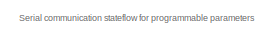
[diagram: System inputs  - part 1/4, top left region]
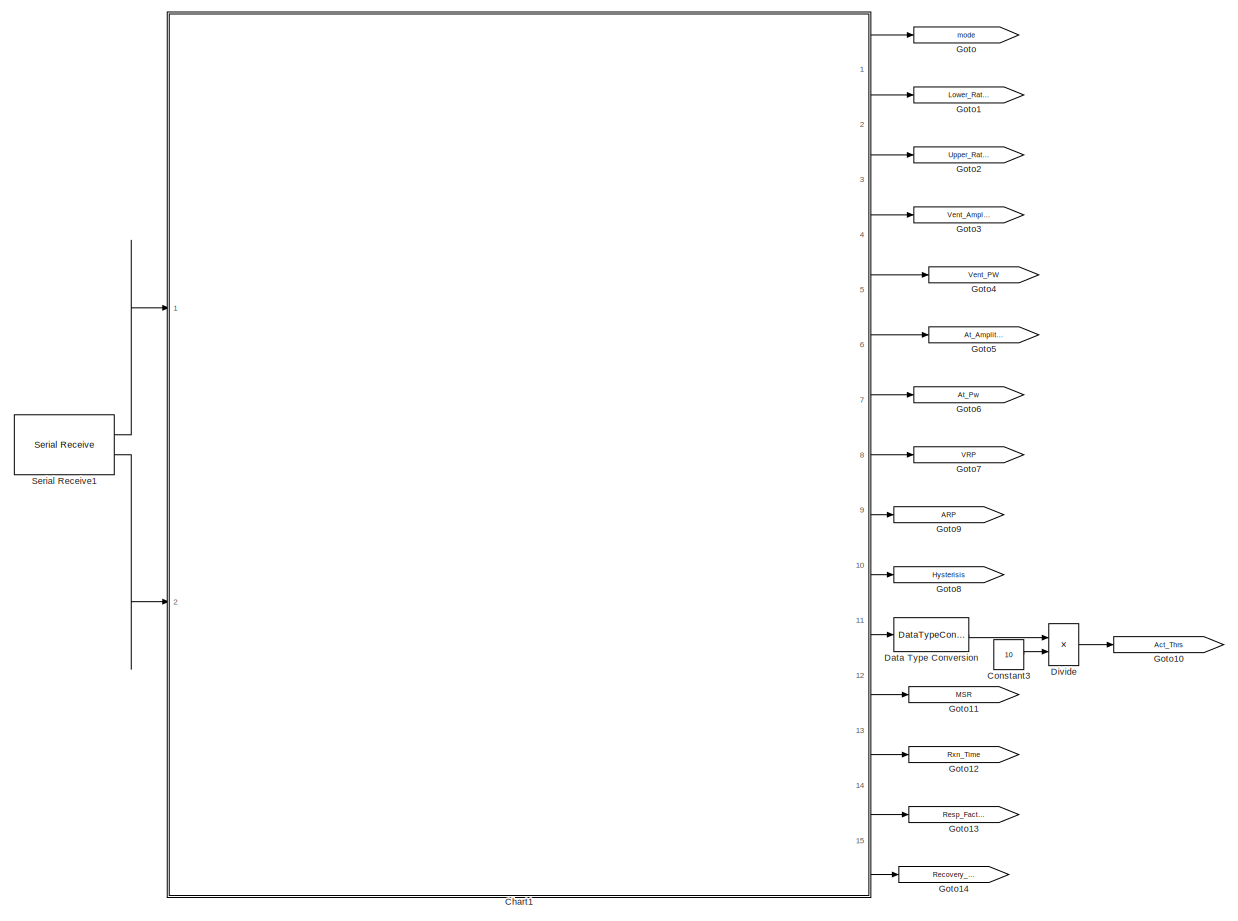
[diagram: System inputs  - part 2/4, middle left region]
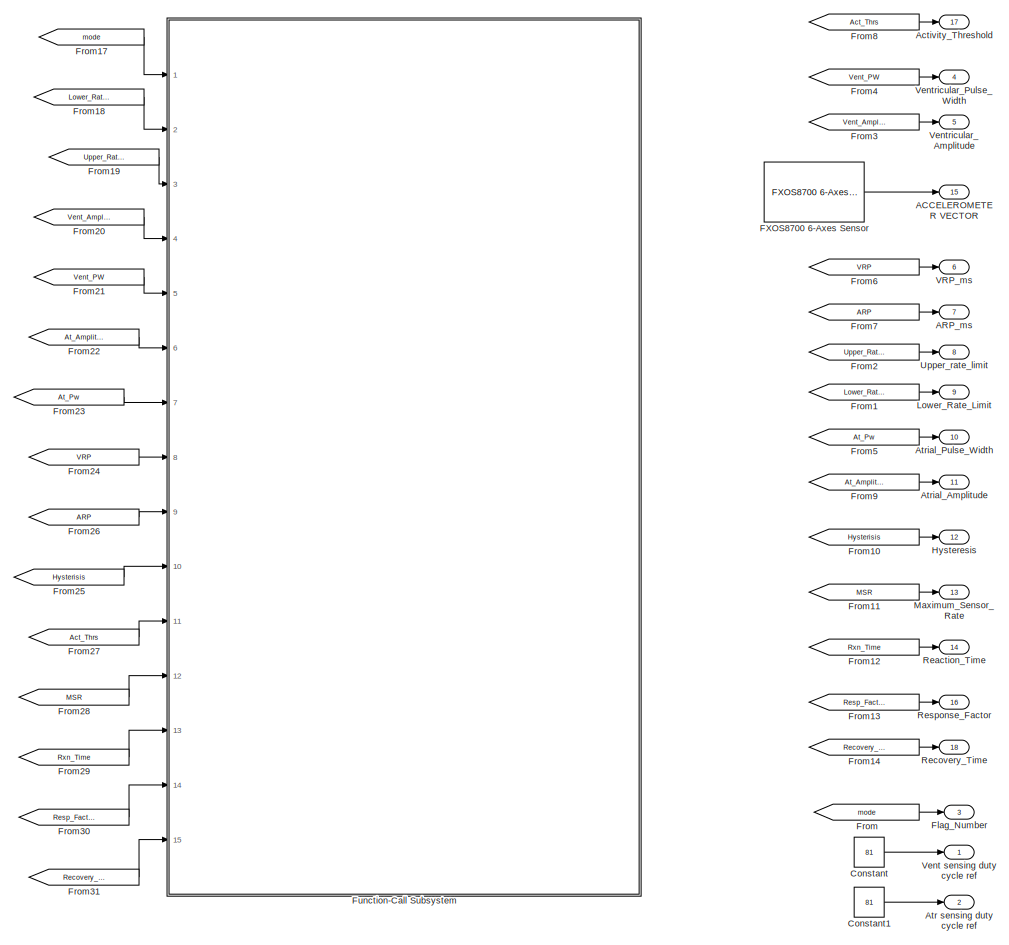
[diagram: System inputs  - part 3/4, middle right region]
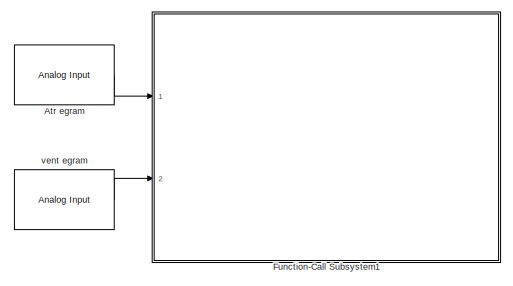
[diagram: System inputs  - part 4/4, bottom center region]
BLOCK [SubSystem] System inputs 
  Ports = [0, 18]
  RequestExecContextInheritance = off
BLOCK [Outport] System inputs /ACCELEROMETER VECTOR
  IconDisplay = Port number
  Port = 15
BLOCK [Outport] System inputs /ARP_ms
  IconDisplay = Port number
  Port = 7
BLOCK [Outport] System inputs /Activity_Threshold
  IconDisplay = Port number
  Port = 17
BLOCK [Reference] System inputs /Atr egram  REF=frdmk64flib/Analog Input
  Ports = [0, 1]
  SourceBlock = frdmk64flib/Analog Input
  SourceProductBaseCode = EC_FRDM_K64F
  SourceProductName = Simulink Coder Support Package for NXP FRDM-K64F Board
  SourceType = freedomk64f.AnalogInput
BLOCK [Outport] System inputs /Atr sensing duty cycle ref 
  IconDisplay = Port number
  Port = 2
BLOCK [Outport] System inputs /Atrial_Amplitude
  IconDisplay = Port number
  Port = 11
BLOCK [Outport] System inputs /Atrial_Pulse_Width
  IconDisplay = Port number
  Port = 10
BLOCK [SubSystem] System inputs /Chart1
  ErrorFcn = Stateflow.Translate.translate
  PermitHierarchicalResolution = ExplicitOnly
  Ports = [2, 15]
  RequestExecContextInheritance = off
  SFBlockType = Chart
  TreatAsAtomicUnit = on
BLOCK [Demux] System inputs /Chart1/ Demux 
  Outputs = 1
  Ports = [1, 1]
BLOCK [S-Function] System inputs /Chart1/ SFunction 
  EnableBusSupport = on
  FunctionName = sf_sfun
  PortCounts = [2 16]
  Ports = [2, 16]
  SFcnIsStateOwnerBlock = off
  SFunctionDeploymentMode = off
  Tag = Stateflow S-Function Assignment2_group14 6
BLOCK [Terminator] System inputs /Chart1/ Terminator 
BLOCK [Outport] System inputs /Chart1/ARP
  IconDisplay = Port number
  Port = 9
BLOCK [Outport] System inputs /Chart1/Act_Thrs
  IconDisplay = Port number
  Port = 11
BLOCK [Outport] System inputs /Chart1/At_Amplitude
  IconDisplay = Port number
  Port = 6
BLOCK [Outport] System inputs /Chart1/At_PW
  IconDisplay = Port number
  Port = 7
BLOCK [Outport] System inputs /Chart1/Hysterisis
  IconDisplay = Port number
  Port = 10
BLOCK [Outport] System inputs /Chart1/Lower_ratelimit
  IconDisplay = Port number
  Port = 2
BLOCK [Outport] System inputs /Chart1/Maximum_sensor
  IconDisplay = Port number
  Port = 12
BLOCK [Outport] System inputs /Chart1/Rec_time
  IconDisplay = Port number
  Port = 15
BLOCK [Outport] System inputs /Chart1/Resp_fact
  IconDisplay = Port number
  Port = 14
BLOCK [Outport] System inputs /Chart1/Rxn_time
  IconDisplay = Port number
  Port = 13
BLOCK [Outport] System inputs /Chart1/Upper_ratelimit
  IconDisplay = Port number
  Port = 3
BLOCK [Outport] System inputs /Chart1/VRP
  IconDisplay = Port number
  Port = 8
BLOCK [Outport] System inputs /Chart1/Vent_Amplitude
  IconDisplay = Port number
  Port = 4
BLOCK [Outport] System inputs /Chart1/Vent_PW
  IconDisplay = Port number
  Port = 5
BLOCK [Outport] System inputs /Chart1/mode
  IconDisplay = Port number
BLOCK [Inport] System inputs /Chart1/rxdata
  IconDisplay = Port number
BLOCK [Inport] System inputs /Chart1/status
  IconDisplay = Port number
  Port = 2
BLOCK [Constant] System inputs /Constant
  OutDataTypeStr = uint16
  Value = 81
BLOCK [Constant] System inputs /Constant1
  OutDataTypeStr = uint16
  Value = 81
BLOCK [Constant] System inputs /Constant3
  OutDataTypeStr = double
  Value = 10
BLOCK [DataTypeConversion] System inputs /Data Type Conversion
  OutDataTypeStr = double
  RndMeth = Floor
  SaturateOnIntegerOverflow = off
BLOCK [Product] System inputs /Divide
  InputSameDT = off
  Inputs = */
  OutDataTypeStr = Inherit: Inherit via internal rule
  Ports = [2, 1]
  RndMeth = Floor
  SaturateOnIntegerOverflow = off
BLOCK [Reference] System inputs /FXOS8700 6-Axes Sensor  REF=frdmk64flib/FXOS8700 6-Axes Sensor
  Ports = [0, 1]
  SourceBlock = frdmk64flib/FXOS8700 6-Axes Sensor
  SourceProductBaseCode = EC_FRDM_K64F
  SourceProductName = Simulink Coder Support Package for NXP FRDM-K64F Board
  SourceType = freedomk64f.fxos8700
BLOCK [Outport] System inputs /Flag_Number
  IconDisplay = Port number
  Port = 3
BLOCK [From] System inputs /From
  GotoTag = mode
BLOCK [From] System inputs /From1
  GotoTag = Lower_Rate_Limit
BLOCK [From] System inputs /From10
  GotoTag = Hysterisis
BLOCK [From] System inputs /From11
  GotoTag = MSR
BLOCK [From] System inputs /From12
  GotoTag = Rxn_Time
BLOCK [From] System inputs /From13
  GotoTag = Resp_Factor
BLOCK [From] System inputs /From14
  GotoTag = Recovery_time
BLOCK [From] System inputs /From17
  GotoTag = mode
BLOCK [From] System inputs /From18
  GotoTag = Lower_Rate_Limit
BLOCK [From] System inputs /From19
  GotoTag = Upper_Rate_Limit
BLOCK [From] System inputs /From2
  GotoTag = Upper_Rate_Limit
BLOCK [From] System inputs /From20
  GotoTag = Vent_Amplitude
BLOCK [From] System inputs /From21
  GotoTag = Vent_PW
BLOCK [From] System inputs /From22
  GotoTag = At_Amplitude
BLOCK [From] System inputs /From23
  GotoTag = At_Pw
BLOCK [From] System inputs /From24
  GotoTag = VRP
BLOCK [From] System inputs /From25
  GotoTag = Hysterisis
BLOCK [From] System inputs /From26
  GotoTag = ARP
BLOCK [From] System inputs /From27
  GotoTag = Act_Thrs
BLOCK [From] System inputs /From28
  GotoTag = MSR
BLOCK [From] System inputs /From29
  GotoTag = Rxn_Time
BLOCK [From] System inputs /From3
  GotoTag = Vent_Amplitude
BLOCK [From] System inputs /From30
  GotoTag = Resp_Factor
BLOCK [From] System inputs /From31
  GotoTag = Recovery_time
BLOCK [From] System inputs /From4
  GotoTag = Vent_PW
BLOCK [From] System inputs /From5
  GotoTag = At_Pw
BLOCK [From] System inputs /From6
  GotoTag = VRP
BLOCK [From] System inputs /From7
  GotoTag = ARP
BLOCK [From] System inputs /From8
  GotoTag = Act_Thrs
BLOCK [From] System inputs /From9
  GotoTag = At_Amplitude
BLOCK [SubSystem] System inputs /Function-Call Subsystem
  Commented = on
  Ports = [15, 0, 0, 1]
  RequestExecContextInheritance = off
  TreatAsAtomicUnit = on
BLOCK [Inport] System inputs /Function-Call Subsystem/In1
  IconDisplay = Port number
BLOCK [Inport] System inputs /Function-Call Subsystem/In10
  IconDisplay = Port number
  Port = 11
BLOCK [Inport] System inputs /Function-Call Subsystem/In11
  IconDisplay = Port number
  Port = 9
BLOCK [Inport] System inputs /Function-Call Subsystem/In12
  IconDisplay = Port number
  Port = 12
BLOCK [Inport] System inputs /Function-Call Subsystem/In13
  IconDisplay = Port number
  Port = 13
BLOCK [Inport] System inputs /Function-Call Subsystem/In14
  IconDisplay = Port number
  Port = 14
BLOCK [Inport] System inputs /Function-Call Subsystem/In15
  IconDisplay = Port number
  Port = 15
BLOCK [Inport] System inputs /Function-Call Subsystem/In2
  IconDisplay = Port number
  Port = 2
BLOCK [Inport] System inputs /Function-Call Subsystem/In3
  IconDisplay = Port number
  Port = 3
BLOCK [Inport] System inputs /Function-Call Subsystem/In4
  IconDisplay = Port number
  Port = 4
BLOCK [Inport] System inputs /Function-Call Subsystem/In5
  IconDisplay = Port number
  Port = 5
BLOCK [Inport] System inputs /Function-Call Subsystem/In6
  IconDisplay = Port number
  Port = 6
BLOCK [Inport] System inputs /Function-Call Subsystem/In7
  IconDisplay = Port number
  Port = 7
BLOCK [Inport] System inputs /Function-Call Subsystem/In8
  IconDisplay = Port number
  Port = 8
BLOCK [Inport] System inputs /Function-Call Subsystem/In9
  IconDisplay = Port number
  Port = 10
BLOCK [Mux] System inputs /Function-Call Subsystem/Mux
  DisplayOption = bar
  Inputs = 15
  Ports = [15, 1]
BLOCK [Reference] System inputs /Function-Call Subsystem/Serial Transmit  REF=frdmk64flib/Serial Transmit
  Ports = [1]
  SourceBlock = frdmk64flib/Serial Transmit
  SourceProductBaseCode = EC_FRDM_K64F
  SourceProductName = Simulink Coder Support Package for NXP FRDM-K64F Board
  SourceType = freedomk64f.SCIWrite
BLOCK [TriggerPort] System inputs /Function-Call Subsystem/function
  FunctionName = send_param
  IsSimulinkFunction = on
  Ports = []
  StatesWhenEnabling = held
  TriggerType = function-call
  VariantControl = Variant
BLOCK [SubSystem] System inputs /Function-Call Subsystem1
  Ports = [2, 0, 0, 1]
  RequestExecContextInheritance = off
  TreatAsAtomicUnit = on
BLOCK [DataTypeConversion] System inputs /Function-Call Subsystem1/Data Type Conversion
  OutDataTypeStr = double
  RndMeth = Floor
  SaturateOnIntegerOverflow = off
BLOCK [DataTypeConversion] System inputs /Function-Call Subsystem1/Data Type Conversion1
  OutDataTypeStr = double
  RndMeth = Floor
  SaturateOnIntegerOverflow = off
BLOCK [Inport] System inputs /Function-Call Subsystem1/Input
  IconDisplay = Port number
BLOCK [Inport] System inputs /Function-Call Subsystem1/Input1
  IconDisplay = Port number
  Port = 2
BLOCK [Mux] System inputs /Function-Call Subsystem1/Mux
  DisplayOption = bar
  Inputs = 2
  Ports = [2, 1]
BLOCK [Reference] System inputs /Function-Call Subsystem1/Serial Transmit  REF=frdmk64flib/Serial Transmit
  Ports = [1]
  SourceBlock = frdmk64flib/Serial Transmit
  SourceProductBaseCode = EC_FRDM_K64F
  SourceProductName = Simulink Coder Support Package for NXP FRDM-K64F Board
  SourceType = freedomk64f.SCIWrite
BLOCK [TriggerPort] System inputs /Function-Call Subsystem1/send_egram
  FunctionName = send_egram
  IsSimulinkFunction = on
  Ports = []
  StatesWhenEnabling = held
  TriggerType = function-call
  VariantControl = Variant
BLOCK [Goto] System inputs /Goto
  GotoTag = mode
BLOCK [Goto] System inputs /Goto1
  GotoTag = Lower_Rate_Limit
BLOCK [Goto] System inputs /Goto10
  GotoTag = Act_Thrs
BLOCK [Goto] System inputs /Goto11
  GotoTag = MSR
BLOCK [Goto] System inputs /Goto12
  GotoTag = Rxn_Time
BLOCK [Goto] System inputs /Goto13
  GotoTag = Resp_Factor
BLOCK [Goto] System inputs /Goto14
  GotoTag = Recovery_time
BLOCK [Goto] System inputs /Goto2
  GotoTag = Upper_Rate_Limit
BLOCK [Goto] System inputs /Goto3
  GotoTag = Vent_Amplitude
BLOCK [Goto] System inputs /Goto4
  GotoTag = Vent_PW
BLOCK [Goto] System inputs /Goto5
  GotoTag = At_Amplitude
BLOCK [Goto] System inputs /Goto6
  GotoTag = At_Pw
BLOCK [Goto] System inputs /Goto7
  GotoTag = VRP
BLOCK [Goto] System inputs /Goto8
  GotoTag = Hysterisis
BLOCK [Goto] System inputs /Goto9
  GotoTag = ARP
BLOCK [Outport] System inputs /Hysteresis
  IconDisplay = Port number
  Port = 12
BLOCK [Outport] System inputs /Lower_Rate_Limit
  IconDisplay = Port number
  Port = 9
BLOCK [Outport] System inputs /Maximum_Sensor_Rate
  IconDisplay = Port number
  Port = 13
BLOCK [Outport] System inputs /Reaction_Time
  IconDisplay = Port number
  Port = 14
BLOCK [Outport] System inputs /Recovery_Time
  IconDisplay = Port number
  Port = 18
BLOCK [Outport] System inputs /Response_Factor
  IconDisplay = Port number
  OutDataTypeStr = uint16
  Port = 16
BLOCK [Reference] System inputs /Serial Receive1  REF=frdmk64flib/Serial Receive
  Ports = [0, 2]
  SourceBlock = frdmk64flib/Serial Receive
  SourceProductBaseCode = EC_FRDM_K64F
  SourceProductName = Simulink Coder Support Package for NXP FRDM-K64F Board
  SourceType = freedomk64f.SCIRead
BLOCK [Outport] System inputs /Upper_rate_limit
  IconDisplay = Port number
  OutDataTypeStr = uint16
  Port = 8
BLOCK [Outport] System inputs /VRP_ms
  IconDisplay = Port number
  Port = 6
BLOCK [Outport] System inputs /Vent sensing duty cycle ref
  IconDisplay = Port number
BLOCK [Outport] System inputs /Ventricular_Amplitude
  IconDisplay = Port number
  Port = 5
BLOCK [Outport] System inputs /Ventricular_Pulse_Width
  IconDisplay = Port number
  Port = 4
BLOCK [Reference] System inputs /vent egram   REF=frdmk64flib/Analog Input
  Ports = [0, 1]
  SourceBlock = frdmk64flib/Analog Input
  SourceProductBaseCode = EC_FRDM_K64F
  SourceProductName = Simulink Coder Support Package for NXP FRDM-K64F Board
  SourceType = freedomk64f.AnalogInput
ANNOTATION Accelerometer subsysterm : A response factor of one leads to an increase of rate of 2bpm/s. Therefore, the rate of increase of rate would be equal (2*ResponseFactor).
ANNOTATION Accelerometer subsysterm : Acceleration threshold of 1.8 to ignore any small movements
ANNOTATION Accelerometer subsysterm : Derived from the equation acceleration= (V2-V1)/time, we were able to derive a formula for Rate of decrease of rate= (Max_Sensor_Rate - Lower_Rate_Limit)/Recovery_Time
ANNOTATION Accelerometer subsysterm : Finding the magnitude of acceleration vector by squaring each component (x,y,x), summing them, then finding the square-root
ANNOTATION Pacing Subsystem : switch case for each subsystem which contain 1 mode each
ANNOTATION Pacing Subsystem : - Goto tags used to minimize the arrows used - Corresponding From tags at each subsystem/stateflow
ANNOTATION Pacing Subsystem : Each mode placed in separate subsystems for dynamic switching
ANNOTATION Sensing Subsystem: MATLAB function to choose the ventricular or atrial switches based on the flag number
ANNOTATION Sensing Subsystem: Switch case for separating ventricular and atrial sensing
ANNOTATION System inputs : Serial communication stateflow for programmable parameters
LINE Accelerometer subsysterm /ACCEL_VECTOR:1 -> Accelerometer subsysterm /Demux:1
LINE Accelerometer subsysterm /Activity_Threshold :1 -> Accelerometer subsysterm /MATLAB Function:1
LINE Accelerometer subsysterm /Add:1 -> Accelerometer subsysterm /Sqrt:1
LINE Accelerometer subsysterm /Constant2:1 -> Accelerometer subsysterm /Product:2
LINE Accelerometer subsysterm /Data Type Conversion1:1 -> Accelerometer subsysterm /Rate_Of_decrease_Of_Rate:1
LINE Accelerometer subsysterm /Data Type Conversion:1 -> Accelerometer subsysterm /Rate_Of_Increase_Of_Rate:1
NET Accelerometer subsysterm /Demux:1 -> Accelerometer subsysterm /Dot Product:1, Accelerometer subsysterm /Dot Product:2
NET Accelerometer subsysterm /Demux:2 -> Accelerometer subsysterm /Dot Product1:1, Accelerometer subsysterm /Dot Product1:2
NET Accelerometer subsysterm /Demux:3 -> Accelerometer subsysterm /Dot Product2:1, Accelerometer subsysterm /Dot Product2:2
LINE Accelerometer subsysterm /Divide:1 -> Accelerometer subsysterm /Data Type Conversion1:1
LINE Accelerometer subsysterm /Dot Product1:1 -> Accelerometer subsysterm /Add:2
LINE Accelerometer subsysterm /Dot Product2:1 -> Accelerometer subsysterm /Add:3
LINE Accelerometer subsysterm /Dot Product:1 -> Accelerometer subsysterm /Add:1
LINE Accelerometer subsysterm /Lower_Rate_Limit:1 -> Accelerometer subsysterm /Subtract:2
LINE Accelerometer subsysterm /MATLAB Function:1 -> Accelerometer subsysterm /ACCEL_BOOL:1
LINE Accelerometer subsysterm /Max_Sensor_Rate:1 -> Accelerometer subsysterm /Subtract:1
LINE Accelerometer subsysterm /Product:1 -> Accelerometer subsysterm /Data Type Conversion:1
LINE Accelerometer subsysterm /Recovery_Time:1 -> Accelerometer subsysterm /Divide:2
LINE Accelerometer subsysterm /Response_Factor:1 -> Accelerometer subsysterm /Product:1
LINE Accelerometer subsysterm /Sqrt:1 -> Accelerometer subsysterm /MATLAB Function:2
LINE Accelerometer subsysterm /Subtract:1 -> Accelerometer subsysterm /Divide:1
LINE Accelerometer subsysterm :1 -> Goto20:1
LINE Accelerometer subsysterm :2 -> Goto21:1
LINE Accelerometer subsysterm :3 -> Goto22:1
LINE From10:1 -> Pacing Subsystem :4
LINE From11:1 -> Pacing Subsystem :5
LINE From12:1 -> Pacing Subsystem :6
LINE From13:1 -> Pacing Subsystem :7
LINE From14:1 -> Pacing Subsystem :8
LINE From15:1 -> Pacing Subsystem :9
LINE From16:1 -> Pacing Subsystem :10
LINE From17:1 -> Pacing Subsystem :11
LINE From18:1 -> Pacing Subsystem :12
LINE From19:1 -> Pacing Subsystem :13
LINE From1:1 -> Accelerometer subsysterm :1
LINE From20:1 -> Pacing Subsystem :14
LINE From21:1 -> Pacing Subsystem :16
LINE From22:1 -> Pacing Subsystem :17
LINE From23:1 -> Pacing Subsystem :15
LINE From24:1 -> Accelerometer subsysterm :5
LINE From25:1 -> Accelerometer subsysterm :6
LINE From2:1 -> Accelerometer subsysterm :2
LINE From3:1 -> Accelerometer subsysterm :3
LINE From4:1 -> Accelerometer subsysterm :4
LINE From5:1 -> Sensing Subsystem:1
LINE From6:1 -> Sensing Subsystem:2
LINE From7:1 -> Pacing Subsystem :1
LINE From8:1 -> Pacing Subsystem :2
LINE From9:1 -> Pacing Subsystem :3
LINE From:1 -> Sensing Subsystem:3
LINE Pacing Subsystem /AAI/AAI:1 -> Pacing Subsystem /AAI/Atr Gnd Ctrl6:1
LINE Pacing Subsystem /AAI/AAI:2 -> Pacing Subsystem /AAI/Atr Pace Ctrl6:1
LINE Pacing Subsystem /AAI/AAI:3 -> Pacing Subsystem /AAI/Pace Charge Ctrl6:1
LINE Pacing Subsystem /AAI/AAI:4 -> Pacing Subsystem /AAI/Pace Gnd Ctrl6:1
LINE Pacing Subsystem /AAI/AAI:5 -> Pacing Subsystem /AAI/Pacing Ref PWM6:1
LINE Pacing Subsystem /AAI/AAI:6 -> Pacing Subsystem /AAI/blueLED6:1
LINE Pacing Subsystem /AAI/AAI:7 -> Pacing Subsystem /AAI/greenLED6:1
LINE Pacing Subsystem /AAI/AAI:8 -> Pacing Subsystem /AAI/redLED6:1
LINE Pacing Subsystem /AAI/ARP_ms:1 -> Pacing Subsystem /AAI/AAI:5
LINE Pacing Subsystem /AAI/ATR_SENSING_BOOLEAN:1 -> Pacing Subsystem /AAI/AAI:4
LINE Pacing Subsystem /AAI/Atrial_Amplitude:1 -> Pacing Subsystem /AAI/AAI:2
LINE Pacing Subsystem /AAI/Atrial_Pulse_Width:1 -> Pacing Subsystem /AAI/AAI:3
LINE Pacing Subsystem /AAI/Lower_Rate_Limit:1 -> Pacing Subsystem /AAI/AAI:1
LINE Pacing Subsystem /AAI/Upper_Rate_Limit:1 -> Pacing Subsystem /AAI/AAI:6
LINE Pacing Subsystem /AAI:1 -> Pacing Subsystem /Goto51:1
LINE Pacing Subsystem /AAI:2 -> Pacing Subsystem /Goto52:1
LINE Pacing Subsystem /AAI:3 -> Pacing Subsystem /Goto53:1
LINE Pacing Subsystem /AAI:4 -> Pacing Subsystem /Goto54:1
LINE Pacing Subsystem /AAI:5 -> Pacing Subsystem /Goto55:1
LINE Pacing Subsystem /AAI:6 -> Pacing Subsystem /Goto56:1
LINE Pacing Subsystem /AAI:7 -> Pacing Subsystem /Goto57:1
LINE Pacing Subsystem /AAI:8 -> Pacing Subsystem /Goto58:1
LINE Pacing Subsystem /AAIR/AAIR:1 -> Pacing Subsystem /AAIR/Pace Charge Ctrl8:1
LINE Pacing Subsystem /AAIR/AAIR:2 -> Pacing Subsystem /AAIR/Pace Gnd Ctrl8:1
LINE Pacing Subsystem /AAIR/AAIR:3 -> Pacing Subsystem /AAIR/Pacing Ref PWM 8:1
LINE Pacing Subsystem /AAIR/AAIR:4 -> Pacing Subsystem /AAIR/Atr Gnd Ctrl8:1
LINE Pacing Subsystem /AAIR/AAIR:5 -> Pacing Subsystem /AAIR/Atr Pace Ctrl8:1
LINE Pacing Subsystem /AAIR/AAIR:6 -> Pacing Subsystem /AAIR/blueLED8:1
LINE Pacing Subsystem /AAIR/AAIR:7 -> Pacing Subsystem /AAIR/greenLED8:1
LINE Pacing Subsystem /AAIR/AAIR:8 -> Pacing Subsystem /AAIR/redLED8:1
LINE Pacing Subsystem /AAIR/ACCEL_BOOL:1 -> Pacing Subsystem /AAIR/AAIR:5
LINE Pacing Subsystem /AAIR/ARP_ms:1 -> Pacing Subsystem /AAIR/AAIR:9
LINE Pacing Subsystem /AAIR/ATR_SENSING_BOOLEAN:1 -> Pacing Subsystem /AAIR/AAIR:4
LINE Pacing Subsystem /AAIR/Atrial_Amplitude:1 -> Pacing Subsystem /AAIR/AAIR:2
LINE Pacing Subsystem /AAIR/Atrial_Pulse_Width:1 -> Pacing Subsystem /AAIR/AAIR:3
LINE Pacing Subsystem /AAIR/Lower_Rate_Limit:1 -> Pacing Subsystem /AAIR/AAIR:1
LINE Pacing Subsystem /AAIR/Max_Sensor_Rate:1 -> Pacing Subsystem /AAIR/AAIR:6
LINE Pacing Subsystem /AAIR/Rate_Of_Decrease_Of_Rate:1 -> Pacing Subsystem /AAIR/AAIR:11
LINE Pacing Subsystem /AAIR/Rate_Of_Increase_Of_Rate:1 -> Pacing Subsystem /AAIR/AAIR:7
LINE Pacing Subsystem /AAIR/Reaction_Time:1 -> Pacing Subsystem /AAIR/AAIR:10
LINE Pacing Subsystem /AAIR/Upper_Rate_Limit:1 -> Pacing Subsystem /AAIR/AAIR:8
LINE Pacing Subsystem /AAIR:1 -> Pacing Subsystem /Goto77:1
LINE Pacing Subsystem /AAIR:2 -> Pacing Subsystem /Goto78:1
LINE Pacing Subsystem /AAIR:3 -> Pacing Subsystem /Goto79:1
LINE Pacing Subsystem /AAIR:4 -> Pacing Subsystem /Goto80:1
LINE Pacing Subsystem /AAIR:5 -> Pacing Subsystem /Goto81:1
LINE Pacing Subsystem /AAIR:6 -> Pacing Subsystem /Goto82:1
LINE Pacing Subsystem /AAIR:7 -> Pacing Subsystem /Goto83:1
LINE Pacing Subsystem /AAIR:8 -> Pacing Subsystem /Goto84:1
LINE Pacing Subsystem /ACCEL_BOOL:1 -> Pacing Subsystem /Goto4:1
LINE Pacing Subsystem /AOO/AOO:1 -> Pacing Subsystem /AOO/Pace_Charge_Ctrl2:1
LINE Pacing Subsystem /AOO/AOO:2 -> Pacing Subsystem /AOO/Pace_Gnd_Ctrl2:1
LINE Pacing Subsystem /AOO/AOO:3 -> Pacing Subsystem /AOO/Pacing_Ref_Pwm2:1
LINE Pacing Subsystem /AOO/AOO:4 -> Pacing Subsystem /AOO/Atr_Gnd_Ctrl2:1
LINE Pacing Subsystem /AOO/AOO:5 -> Pacing Subsystem /AOO/Atr_Pace_Ctrl2:1
LINE Pacing Subsystem /AOO/AOO:6 -> Pacing Subsystem /AOO/Red_LED2:1
LINE Pacing Subsystem /AOO/Atrial_Amplitude:1 -> Pacing Subsystem /AOO/AOO:2
LINE Pacing Subsystem /AOO/Atrial_Pulse_Width:1 -> Pacing Subsystem /AOO/AOO:1
LINE Pacing Subsystem /AOO/Lower_Rate_Limit:1 -> Pacing Subsystem /AOO/AOO:4
LINE Pacing Subsystem /AOO/Upper_Rate_Limit:1 -> Pacing Subsystem /AOO/AOO:3
LINE Pacing Subsystem /AOO:1 -> Pacing Subsystem /Goto24:1
LINE Pacing Subsystem /AOO:2 -> Pacing Subsystem /Goto25:1
LINE Pacing Subsystem /AOO:3 -> Pacing Subsystem /Goto26:1
LINE Pacing Subsystem /AOO:4 -> Pacing Subsystem /Goto27:1
LINE Pacing Subsystem /AOO:5 -> Pacing Subsystem /Goto28:1
LINE Pacing Subsystem /AOO:6 -> Pacing Subsystem /Goto59:1
LINE Pacing Subsystem /AOOR/AOOR:1 -> Pacing Subsystem /AOOR/Pace_Charge_Ctrl4:1
LINE Pacing Subsystem /AOOR/AOOR:2 -> Pacing Subsystem /AOOR/Pace_Gnd_Ctrl4:1
LINE Pacing Subsystem /AOOR/AOOR:3 -> Pacing Subsystem /AOOR/Pacing_Ref_Pwm4:1
LINE Pacing Subsystem /AOOR/AOOR:4 -> Pacing Subsystem /AOOR/Atr_Gnd_Ctrl4:1
LINE Pacing Subsystem /AOOR/AOOR:5 -> Pacing Subsystem /AOOR/Atr_Pace_Ctrl4:1
LINE Pacing Subsystem /AOOR/AOOR:6 -> Pacing Subsystem /AOOR/greenLed4:1
LINE Pacing Subsystem /AOOR/AOOR:7 -> Pacing Subsystem /AOOR/redLEd4:1
LINE Pacing Subsystem /AOOR/Accel_BOOL:1 -> Pacing Subsystem /AOOR/AOOR:3
LINE Pacing Subsystem /AOOR/Atrial_Amplitude:1 -> Pacing Subsystem /AOOR/AOOR:1
LINE Pacing Subsystem /AOOR/Atrial_Pulse_Width:1 -> Pacing Subsystem /AOOR/AOOR:5
LINE Pacing Subsystem /AOOR/Lower_Rate_Limit:1 -> Pacing Subsystem /AOOR/AOOR:4
LINE Pacing Subsystem /AOOR/Max_Sensor_Rate:1 -> Pacing Subsystem /AOOR/AOOR:2
LINE Pacing Subsystem /AOOR/Rate_Of_Decrease_Of_Rate:1 -> Pacing Subsystem /AOOR/AOOR:6
LINE Pacing Subsystem /AOOR/Rate_Of_increase_Of_Rate:1 -> Pacing Subsystem /AOOR/AOOR:7
LINE Pacing Subsystem /AOOR/Reaction_Time:1 -> Pacing Subsystem /AOOR/AOOR:8
LINE Pacing Subsystem /AOOR:1 -> Pacing Subsystem /Goto36:1
LINE Pacing Subsystem /AOOR:2 -> Pacing Subsystem /Goto37:1
LINE Pacing Subsystem /AOOR:3 -> Pacing Subsystem /Goto38:1
LINE Pacing Subsystem /AOOR:4 -> Pacing Subsystem /Goto39:1
LINE Pacing Subsystem /AOOR:5 -> Pacing Subsystem /Goto40:1
LINE Pacing Subsystem /AOOR:6 -> Pacing Subsystem /Goto41:1
LINE Pacing Subsystem /AOOR:7 -> Pacing Subsystem /Goto42:1
LINE Pacing Subsystem /ARP_ms:1 -> Pacing Subsystem /Goto8:1
LINE Pacing Subsystem /ATR_SENSING_BOOLEAN:1 -> Pacing Subsystem /Goto16:1
LINE Pacing Subsystem /Atrial_Amplitude:1 -> Pacing Subsystem /Goto12:1
LINE Pacing Subsystem /Atrial_Pulse_Width:1 -> Pacing Subsystem /Goto11:1
LINE Pacing Subsystem /Bus Creator1:1 -> Pacing Subsystem /Bus to Vector1:1
LINE Pacing Subsystem /Bus Creator2:1 -> Pacing Subsystem /Bus to Vector2:1
LINE Pacing Subsystem /Bus Creator3:1 -> Pacing Subsystem /Bus to Vector3:1
LINE Pacing Subsystem /Bus Creator4:1 -> Pacing Subsystem /Bus to Vector5:1
LINE Pacing Subsystem /Bus Creator5:1 -> Pacing Subsystem /Bus to Vector7:1
LINE Pacing Subsystem /Bus Creator6:1 -> Pacing Subsystem /Bus to Vector8:1
LINE Pacing Subsystem /Bus Creator7:1 -> Pacing Subsystem /Bus to Vector6:1
LINE Pacing Subsystem /Bus Creator8:1 -> Pacing Subsystem /Bus to Vector9:1
LINE Pacing Subsystem /Bus Creator9:1 -> Pacing Subsystem /Bus to Vector4:1
LINE Pacing Subsystem /Bus Creator:1 -> Pacing Subsystem /Bus to Vector:1
LINE Pacing Subsystem /Bus to Vector1:1 -> Pacing Subsystem /MATLAB Function6:1
LINE Pacing Subsystem /Bus to Vector2:1 -> Pacing Subsystem /MATLAB Function7:1
LINE Pacing Subsystem /Bus to Vector3:1 -> Pacing Subsystem /MATLAB Function8:1
LINE Pacing Subsystem /Bus to Vector4:1 -> Pacing Subsystem /MATLAB Function9:1
LINE Pacing Subsystem /Bus to Vector5:1 -> Pacing Subsystem /MATLAB Function1:1
LINE Pacing Subsystem /Bus to Vector6:1 -> Pacing Subsystem /MATLAB Function2:1
LINE Pacing Subsystem /Bus to Vector7:1 -> Pacing Subsystem /MATLAB Function3:1
LINE Pacing Subsystem /Bus to Vector8:1 -> Pacing Subsystem /MATLAB Function4:1
LINE Pacing Subsystem /Bus to Vector9:1 -> Pacing Subsystem /MATLAB Function5:1
LINE Pacing Subsystem /Bus to Vector:1 -> Pacing Subsystem /MATLAB Function:1
LINE Pacing Subsystem /Flag_Number:1 -> Pacing Subsystem /Goto18:1
LINE Pacing Subsystem /From100:1 -> Pacing Subsystem /MATLAB Function2:2
LINE Pacing Subsystem /From101:1 -> Pacing Subsystem /MATLAB Function3:2
LINE Pacing Subsystem /From102:1 -> Pacing Subsystem /MATLAB Function4:2
LINE Pacing Subsystem /From103:1 -> Pacing Subsystem /MATLAB Function5:2
LINE Pacing Subsystem /From104:1 -> Pacing Subsystem /MATLAB Function:2
LINE Pacing Subsystem /From105:1 -> Pacing Subsystem /MATLAB Function6:2
LINE Pacing Subsystem /From106:1 -> Pacing Subsystem /MATLAB Function7:2
LINE Pacing Subsystem /From107:1 -> Pacing Subsystem /MATLAB Function8:2
LINE Pacing Subsystem /From108:1 -> Pacing Subsystem /MATLAB Function9:2
LINE Pacing Subsystem /From109:1 -> Pacing Subsystem /VOOR:8
LINE Pacing Subsystem /From10:1 -> Pacing Subsystem /AOO:2
LINE Pacing Subsystem /From110:1 -> Pacing Subsystem /VVIR:7
LINE Pacing Subsystem /From111:1 -> Pacing Subsystem /VVIR:8
LINE Pacing Subsystem /From112:1 -> Pacing Subsystem /VVIR:9
LINE Pacing Subsystem /From113:1 -> Pacing Subsystem /VVIR:10
LINE Pacing Subsystem /From114:1 -> Pacing Subsystem /Bus Creator:7
LINE Pacing Subsystem /From115:1 -> Pacing Subsystem /Bus Creator1:7
LINE Pacing Subsystem /From116:1 -> Pacing Subsystem /Bus Creator4:7
LINE Pacing Subsystem /From117:1 -> Pacing Subsystem /Bus Creator7:7
LINE Pacing Subsystem /From118:1 -> Pacing Subsystem /Bus Creator2:4
LINE Pacing Subsystem /From119:1 -> Pacing Subsystem /Bus Creator3:4
LINE Pacing Subsystem /From11:1 -> Pacing Subsystem /VVI :6
LINE Pacing Subsystem /From120:1 -> Pacing Subsystem /Bus Creator9:3
LINE Pacing Subsystem /From121:1 -> Pacing Subsystem /Bus Creator8:5
LINE Pacing Subsystem /From122:1 -> Pacing Subsystem /AAIR:11
LINE Pacing Subsystem /From123:1 -> Pacing Subsystem /AAIR:6
LINE Pacing Subsystem /From124:1 -> Pacing Subsystem /AAIR:5
LINE Pacing Subsystem /From125:1 -> Pacing Subsystem /AAIR:4
LINE Pacing Subsystem /From126:1 -> Pacing Subsystem /AAIR:3
LINE Pacing Subsystem /From127:1 -> Pacing Subsystem /AAIR:2
LINE Pacing Subsystem /From128:1 -> Pacing Subsystem /AAIR:1
LINE Pacing Subsystem /From129:1 -> Pacing Subsystem /Bus Creator:8
LINE Pacing Subsystem /From12:1 -> Pacing Subsystem /VOOR:2
LINE Pacing Subsystem /From130:1 -> Pacing Subsystem /Bus Creator1:8
LINE Pacing Subsystem /From131:1 -> Pacing Subsystem /Bus Creator4:8
LINE Pacing Subsystem /From132:1 -> Pacing Subsystem /Bus Creator7:8
LINE Pacing Subsystem /From133:1 -> Pacing Subsystem /Bus Creator5:4
LINE Pacing Subsystem /From134:1 -> Pacing Subsystem /Bus Creator6:4
LINE Pacing Subsystem /From135:1 -> Pacing Subsystem /Bus Creator9:4
LINE Pacing Subsystem /From136:1 -> Pacing Subsystem /Bus Creator8:6
LINE Pacing Subsystem /From13:1 -> Pacing Subsystem /Bus Creator:1
LINE Pacing Subsystem /From14:1 -> Pacing Subsystem /VOOR:3
LINE Pacing Subsystem /From15:1 -> Pacing Subsystem /Bus Creator:2
LINE Pacing Subsystem /From16:1 -> Pacing Subsystem /AAI:1
LINE Pacing Subsystem /From17:1 -> Pacing Subsystem /AAI:4
LINE Pacing Subsystem /From18:1 -> Pacing Subsystem /Bus Creator:3
LINE Pacing Subsystem /From19:1 -> Pacing Subsystem /Bus Creator:4
LINE Pacing Subsystem /From1:1 -> Pacing Subsystem /VOOR:1
LINE Pacing Subsystem /From20:1 -> Pacing Subsystem /AAIR:9
LINE Pacing Subsystem /From21:1 -> Pacing Subsystem /AAIR:8
LINE Pacing Subsystem /From22:1 -> Pacing Subsystem /AAIR:7
LINE Pacing Subsystem /From23:1 -> Pacing Subsystem /VVIR:2
LINE Pacing Subsystem /From24:1 -> Pacing Subsystem /VVIR:3
LINE Pacing Subsystem /From25:1 -> Pacing Subsystem /VVIR:4
LINE Pacing Subsystem /From26:1 -> Pacing Subsystem /AAI:5
LINE Pacing Subsystem /From27:1 -> Pacing Subsystem /AAI:2
LINE Pacing Subsystem /From28:1 -> Pacing Subsystem /AAI:3
LINE Pacing Subsystem /From29:1 -> Pacing Subsystem /AAI:6
LINE Pacing Subsystem /From2:1 -> Pacing Subsystem /VVI :1
LINE Pacing Subsystem /From30:1 -> Pacing Subsystem /Bus Creator:5
LINE Pacing Subsystem /From31:1 -> Pacing Subsystem /Bus Creator:6
LINE Pacing Subsystem /From32:1 -> Pacing Subsystem /VVIR:5
LINE Pacing Subsystem /From33:1 -> Pacing Subsystem /VVIR:11
LINE Pacing Subsystem /From34:1 -> Pacing Subsystem /VOOR:4
LINE Pacing Subsystem /From35:1 -> Pacing Subsystem /VOOR:5
LINE Pacing Subsystem /From36:1 -> Pacing Subsystem /Bus Creator1:1
LINE Pacing Subsystem /From37:1 -> Pacing Subsystem /Bus Creator1:2
LINE Pacing Subsystem /From38:1 -> Pacing Subsystem /VOOR:6
LINE Pacing Subsystem /From39:1 -> Pacing Subsystem /Bus Creator1:3
LINE Pacing Subsystem /From3:1 -> Pacing Subsystem /Switch Case:1
LINE Pacing Subsystem /From40:1 -> Pacing Subsystem /VOO:1
LINE Pacing Subsystem /From41:1 -> Pacing Subsystem /AOO:3
LINE Pacing Subsystem /From42:1 -> Pacing Subsystem /VOO:2
LINE Pacing Subsystem /From43:1 -> Pacing Subsystem /VOO:3
LINE Pacing Subsystem /From44:1 -> Pacing Subsystem /VOO:4
LINE Pacing Subsystem /From45:1 -> Pacing Subsystem /AOO:4
LINE Pacing Subsystem /From46:1 -> Pacing Subsystem /AOOR:8
LINE Pacing Subsystem /From47:1 -> Pacing Subsystem /VOOR:7
LINE Pacing Subsystem /From48:1 -> Pacing Subsystem /AOOR:1
LINE Pacing Subsystem /From49:1 -> Pacing Subsystem /AOOR:2
LINE Pacing Subsystem /From4:1 -> Pacing Subsystem /AAIR:10
LINE Pacing Subsystem /From50:1 -> Pacing Subsystem /AOOR:3
LINE Pacing Subsystem /From51:1 -> Pacing Subsystem /AOOR:4
LINE Pacing Subsystem /From52:1 -> Pacing Subsystem /AOOR:5
LINE Pacing Subsystem /From53:1 -> Pacing Subsystem /AOOR:6
LINE Pacing Subsystem /From54:1 -> Pacing Subsystem /AOOR:7
LINE Pacing Subsystem /From55:1 -> Pacing Subsystem /VVIR:6
LINE Pacing Subsystem /From56:1 -> Pacing Subsystem /Bus Creator1:4
LINE Pacing Subsystem /From57:1 -> Pacing Subsystem /Bus Creator1:5
LINE Pacing Subsystem /From58:1 -> Pacing Subsystem /Bus Creator1:6
LINE Pacing Subsystem /From59:1 -> Pacing Subsystem /Bus Creator2:1
LINE Pacing Subsystem /From5:1 -> Pacing Subsystem /VVIR:1
LINE Pacing Subsystem /From60:1 -> Pacing Subsystem /Bus Creator2:2
LINE Pacing Subsystem /From61:1 -> Pacing Subsystem /Bus Creator2:3
LINE Pacing Subsystem /From62:1 -> Pacing Subsystem /Bus Creator3:1
LINE Pacing Subsystem /From63:1 -> Pacing Subsystem /Bus Creator3:2
LINE Pacing Subsystem /From64:1 -> Pacing Subsystem /Bus Creator3:3
LINE Pacing Subsystem /From65:1 -> Pacing Subsystem /Bus Creator4:1
LINE Pacing Subsystem /From66:1 -> Pacing Subsystem /Bus Creator4:2
LINE Pacing Subsystem /From67:1 -> Pacing Subsystem /Bus Creator4:3
LINE Pacing Subsystem /From68:1 -> Pacing Subsystem /Bus Creator4:4
LINE Pacing Subsystem /From69:1 -> Pacing Subsystem /Bus Creator4:5
LINE Pacing Subsystem /From6:1 -> Pacing Subsystem /VVI :2
LINE Pacing Subsystem /From70:1 -> Pacing Subsystem /Bus Creator4:6
LINE Pacing Subsystem /From71:1 -> Pacing Subsystem /Bus Creator5:1
LINE Pacing Subsystem /From72:1 -> Pacing Subsystem /Bus Creator5:2
LINE Pacing Subsystem /From73:1 -> Pacing Subsystem /Bus Creator5:3
LINE Pacing Subsystem /From74:1 -> Pacing Subsystem /Bus Creator6:1
LINE Pacing Subsystem /From75:1 -> Pacing Subsystem /Bus Creator6:2
LINE Pacing Subsystem /From76:1 -> Pacing Subsystem /Bus Creator6:3
LINE Pacing Subsystem /From77:1 -> Pacing Subsystem /Bus Creator7:1
LINE Pacing Subsystem /From78:1 -> Pacing Subsystem /Bus Creator7:2
LINE Pacing Subsystem /From79:1 -> Pacing Subsystem /Bus Creator7:3
LINE Pacing Subsystem /From7:1 -> Pacing Subsystem /VVI :3
LINE Pacing Subsystem /From80:1 -> Pacing Subsystem /Bus Creator7:4
LINE Pacing Subsystem /From81:1 -> Pacing Subsystem /Bus Creator7:5
LINE Pacing Subsystem /From82:1 -> Pacing Subsystem /Bus Creator7:6
LINE Pacing Subsystem /From83:1 -> Pacing Subsystem /Bus Creator9:1
LINE Pacing Subsystem /From84:1 -> Pacing Subsystem /Bus Creator9:2
LINE Pacing Subsystem /From85:1 -> Pacing Subsystem /Bus Creator8:1
LINE Pacing Subsystem /From86:1 -> Pacing Subsystem /Bus Creator8:2
LINE Pacing Subsystem /From87:1 -> Pacing Subsystem /Bus Creator8:3
LINE Pacing Subsystem /From88:1 -> Pacing Subsystem /Bus Creator8:4
LINE Pacing Subsystem /From89:1 -> Pacing Subsystem /Hardware Hiding:1
LINE Pacing Subsystem /From8:1 -> Pacing Subsystem /AOO:1
LINE Pacing Subsystem /From90:1 -> Pacing Subsystem /Hardware Hiding:3
LINE Pacing Subsystem /From91:1 -> Pacing Subsystem /Hardware Hiding:2
LINE Pacing Subsystem /From92:1 -> Pacing Subsystem /Hardware Hiding:4
LINE Pacing Subsystem /From93:1 -> Pacing Subsystem /Hardware Hiding:5
LINE Pacing Subsystem /From94:1 -> Pacing Subsystem /Hardware Hiding:9
LINE Pacing Subsystem /From95:1 -> Pacing Subsystem /Hardware Hiding:6
LINE Pacing Subsystem /From96:1 -> Pacing Subsystem /Hardware Hiding:8
LINE Pacing Subsystem /From97:1 -> Pacing Subsystem /Hardware Hiding:7
LINE Pacing Subsystem /From98:1 -> Pacing Subsystem /Hardware Hiding:10
LINE Pacing Subsystem /From99:1 -> Pacing Subsystem /MATLAB Function1:2
LINE Pacing Subsystem /From9:1 -> Pacing Subsystem /VVI :4
LINE Pacing Subsystem /From:1 -> Pacing Subsystem /VVI :5
LINE Pacing Subsystem /Hardware Hiding/ATR_GND_CTRL:1 -> Pacing Subsystem /Hardware Hiding/Digital Write83:1
LINE Pacing Subsystem /Hardware Hiding/ATR_PACE_CTRL:1 -> Pacing Subsystem /Hardware Hiding/Digital Write82:1
LINE Pacing Subsystem /Hardware Hiding/Green_LED:1 -> Pacing Subsystem /Hardware Hiding/Digital Write78:1
LINE Pacing Subsystem /Hardware Hiding/PACE_CHARGE_CTRL:1 -> Pacing Subsystem /Hardware Hiding/Digital Write74:1
LINE Pacing Subsystem /Hardware Hiding/PACE_GND_CTRL:1 -> Pacing Subsystem /Hardware Hiding/Digital Write75:1
LINE Pacing Subsystem /Hardware Hiding/PACING_REF_PWM:1 -> Pacing Subsystem /Hardware Hiding/PWM Output444:1
LINE Pacing Subsystem /Hardware Hiding/Red_LED:1 -> Pacing Subsystem /Hardware Hiding/Digital Write123:1
LINE Pacing Subsystem /Hardware Hiding/VENT_GND_CTRL:1 -> Pacing Subsystem /Hardware Hiding/Digital Write76:1
LINE Pacing Subsystem /Hardware Hiding/VENT_PACE_CTRL:1 -> Pacing Subsystem /Hardware Hiding/Digital Write77:1
LINE Pacing Subsystem /Hardware Hiding/blueLED:1 -> Pacing Subsystem /Hardware Hiding/Digital Write104:1
LINE Pacing Subsystem /Hysteresis:1 -> Pacing Subsystem /Goto13:1
LINE Pacing Subsystem /Lower_Rate_Limit:1 -> Pacing Subsystem /Goto9:1
LINE Pacing Subsystem /MATLAB Function1:1 -> Pacing Subsystem /Goto61:1
LINE Pacing Subsystem /MATLAB Function2:1 -> Pacing Subsystem /Goto62:1
LINE Pacing Subsystem /MATLAB Function3:1 -> Pacing Subsystem /Goto63:1
LINE Pacing Subsystem /MATLAB Function4:1 -> Pacing Subsystem /Goto64:1
LINE Pacing Subsystem /MATLAB Function5:1 -> Pacing Subsystem /Goto65:1
LINE Pacing Subsystem /MATLAB Function6:1 -> Pacing Subsystem /Goto66:1
LINE Pacing Subsystem /MATLAB Function7:1 -> Pacing Subsystem /Goto67:1
LINE Pacing Subsystem /MATLAB Function8:1 -> Pacing Subsystem /Goto68:1
LINE Pacing Subsystem /MATLAB Function9:1 -> Pacing Subsystem /Goto69:1
LINE Pacing Subsystem /MATLAB Function:1 -> Pacing Subsystem /Goto60:1
LINE Pacing Subsystem /Maximum_Sensor_Rate:1 -> Pacing Subsystem /Goto14:1
LINE Pacing Subsystem /Rate_Of_Increase_Of_Rate:1 -> Pacing Subsystem /Goto70:1
LINE Pacing Subsystem /Rate_Of_decrease_Of_Rate:1 -> Pacing Subsystem /Goto71:1
LINE Pacing Subsystem /Reaction_Time:1 -> Pacing Subsystem /Goto15:1
LINE Pacing Subsystem /Switch Case:1 -> Pacing Subsystem /VOO:ifaction
LINE Pacing Subsystem /Switch Case:2 -> Pacing Subsystem /AOO:ifaction
LINE Pacing Subsystem /Switch Case:3 -> Pacing Subsystem /VOOR:ifaction
LINE Pacing Subsystem /Switch Case:4 -> Pacing Subsystem /AOOR:ifaction
LINE Pacing Subsystem /Switch Case:5 -> Pacing Subsystem /VVI :ifaction
LINE Pacing Subsystem /Switch Case:6 -> Pacing Subsystem /AAI:ifaction
LINE Pacing Subsystem /Switch Case:7 -> Pacing Subsystem /VVIR:ifaction
LINE Pacing Subsystem /Switch Case:8 -> Pacing Subsystem /AAIR:ifaction
LINE Pacing Subsystem /Upper_Rate_Limit:1 -> Pacing Subsystem /Goto10:1
LINE Pacing Subsystem /VENT_SENSING_BOOLEAN:1 -> Pacing Subsystem /Goto1:1
LINE Pacing Subsystem /VOO/Lower_Rate_LImit:1 -> Pacing Subsystem /VOO/VOO:1
LINE Pacing Subsystem /VOO/Upper_Rate_Limit:1 -> Pacing Subsystem /VOO/VOO:4
LINE Pacing Subsystem /VOO/VOO:1 -> Pacing Subsystem /VOO/Pace_Charge_Ctrl1:1
LINE Pacing Subsystem /VOO/VOO:2 -> Pacing Subsystem /VOO/Pace Gnd Ctrl1:1
LINE Pacing Subsystem /VOO/VOO:3 -> Pacing Subsystem /VOO/Vent Gnd Ctrl1:1
LINE Pacing Subsystem /VOO/VOO:4 -> Pacing Subsystem /VOO/Vent Pace Ctrl1:1
LINE Pacing Subsystem /VOO/VOO:5 -> Pacing Subsystem /VOO/Pacing Ref Pwm1:1
LINE Pacing Subsystem /VOO/VOO:6 -> Pacing Subsystem /VOO/RedLed1:1
LINE Pacing Subsystem /VOO/Ventricular_Amplitude:1 -> Pacing Subsystem /VOO/VOO:3
LINE Pacing Subsystem /VOO/Ventricular_Pulse_Width:1 -> Pacing Subsystem /VOO/VOO:2
LINE Pacing Subsystem /VOO:1 -> Pacing Subsystem /Goto:1
LINE Pacing Subsystem /VOO:2 -> Pacing Subsystem /Goto19:1
LINE Pacing Subsystem /VOO:3 -> Pacing Subsystem /Goto20:1
LINE Pacing Subsystem /VOO:4 -> Pacing Subsystem /Goto21:1
LINE Pacing Subsystem /VOO:5 -> Pacing Subsystem /Goto22:1
LINE Pacing Subsystem /VOO:6 -> Pacing Subsystem /Goto23:1
LINE Pacing Subsystem /VOOR/Accel_BOOL:1 -> Pacing Subsystem /VOOR/VOOR:4
LINE Pacing Subsystem /VOOR/Lower_Rate_Limit:1 -> Pacing Subsystem /VOOR/VOOR:5
LINE Pacing Subsystem /VOOR/Max_Sensor_Rate:1 -> Pacing Subsystem /VOOR/VOOR:3
LINE Pacing Subsystem /VOOR/Rate_Of_Increase_Of_Rate:1 -> Pacing Subsystem /VOOR/VOOR:7
LINE Pacing Subsystem /VOOR/Rate_Of_decrease_Of_Rate:1 -> Pacing Subsystem /VOOR/VOOR:8
LINE Pacing Subsystem /VOOR/Reaction_Time:1 -> Pacing Subsystem /VOOR/VOOR:6
LINE Pacing Subsystem /VOOR/VOOR:1 -> Pacing Subsystem /VOOR/Pace_Charge_Ctrl3:1
LINE Pacing Subsystem /VOOR/VOOR:2 -> Pacing Subsystem /VOOR/Pace Gnd Ctrl3:1
LINE Pacing Subsystem /VOOR/VOOR:3 -> Pacing Subsystem /VOOR/Pacing Ref Pwm3:1
LINE Pacing Subsystem /VOOR/VOOR:4 -> Pacing Subsystem /VOOR/Vent Gnd Ctrl3:1
LINE Pacing Subsystem /VOOR/VOOR:5 -> Pacing Subsystem /VOOR/Vent Pace Ctrl3:1
LINE Pacing Subsystem /VOOR/VOOR:6 -> Pacing Subsystem /VOOR/GreenLed3:1
LINE Pacing Subsystem /VOOR/VOOR:7 -> Pacing Subsystem /VOOR/RedLed3:1
LINE Pacing Subsystem /VOOR/Ventricular_Amplitude:1 -> Pacing Subsystem /VOOR/VOOR:1
LINE Pacing Subsystem /VOOR/Ventricular_Pulse_Width:1 -> Pacing Subsystem /VOOR/VOOR:2
LINE Pacing Subsystem /VOOR:1 -> Pacing Subsystem /Goto29:1
LINE Pacing Subsystem /VOOR:2 -> Pacing Subsystem /Goto30:1
LINE Pacing Subsystem /VOOR:3 -> Pacing Subsystem /Goto31:1
LINE Pacing Subsystem /VOOR:4 -> Pacing Subsystem /Goto32:1
LINE Pacing Subsystem /VOOR:5 -> Pacing Subsystem /Goto33:1
LINE Pacing Subsystem /VOOR:6 -> Pacing Subsystem /Goto34:1
LINE Pacing Subsystem /VOOR:7 -> Pacing Subsystem /Goto35:1
LINE Pacing Subsystem /VRP_ms:1 -> Pacing Subsystem /Goto7:1
LINE Pacing Subsystem /VVI /Lower_Rate_LImit:1 -> Pacing Subsystem /VVI /VVI:1
LINE Pacing Subsystem /VVI /Upper_Rate_Limit:1 -> Pacing Subsystem /VVI /VVI:6
LINE Pacing Subsystem /VVI /VENT_SENSING_BOOLEAN:1 -> Pacing Subsystem /VVI /VVI:4
LINE Pacing Subsystem /VVI /VRP_ms:1 -> Pacing Subsystem /VVI /VVI:5
LINE Pacing Subsystem /VVI /VVI:1 -> Pacing Subsystem /VVI /Pace charge ctrl5:1
LINE Pacing Subsystem /VVI /VVI:2 -> Pacing Subsystem /VVI /Pace gnd ctrl5:1
LINE Pacing Subsystem /VVI /VVI:3 -> Pacing Subsystem /VVI /pacing ref pwm5:1
LINE Pacing Subsystem /VVI /VVI:4 -> Pacing Subsystem /VVI /vent gnd ctrl5:1
LINE Pacing Subsystem /VVI /VVI:5 -> Pacing Subsystem /VVI /vent pace ctrl5:1
LINE Pacing Subsystem /VVI /VVI:6 -> Pacing Subsystem /VVI /blueLED5:1
LINE Pacing Subsystem /VVI /VVI:7 -> Pacing Subsystem /VVI /greenLED5:1
LINE Pacing Subsystem /VVI /VVI:8 -> Pacing Subsystem /VVI /redLED5:1
LINE Pacing Subsystem /VVI /Ventricular_Amplitude:1 -> Pacing Subsystem /VVI /VVI:2
LINE Pacing Subsystem /VVI /Ventricular_Pulse_Width:1 -> Pacing Subsystem /VVI /VVI:3
LINE Pacing Subsystem /VVI :1 -> Pacing Subsystem /Goto43:1
LINE Pacing Subsystem /VVI :2 -> Pacing Subsystem /Goto44:1
LINE Pacing Subsystem /VVI :3 -> Pacing Subsystem /Goto45:1
LINE Pacing Subsystem /VVI :4 -> Pacing Subsystem /Goto46:1
LINE Pacing Subsystem /VVI :5 -> Pacing Subsystem /Goto47:1
LINE Pacing Subsystem /VVI :6 -> Pacing Subsystem /Goto48:1
LINE Pacing Subsystem /VVI :7 -> Pacing Subsystem /Goto49:1
LINE Pacing Subsystem /VVI :8 -> Pacing Subsystem /Goto50:1
LINE Pacing Subsystem /VVIR/ACCEL_BOOL:1 -> Pacing Subsystem /VVIR/VVIR:5
LINE Pacing Subsystem /VVIR/Lower_Rate_Limit:1 -> Pacing Subsystem /VVIR/VVIR:1
LINE Pacing Subsystem /VVIR/Max_Sensor_Rate:1 -> Pacing Subsystem /VVIR/VVIR:6
LINE Pacing Subsystem /VVIR/Rate_Of_Decrease_Of_Rate:1 -> Pacing Subsystem /VVIR/VVIR:11
LINE Pacing Subsystem /VVIR/Rate_Of_Increase_Of_Rate:1 -> Pacing Subsystem /VVIR/VVIR:7
LINE Pacing Subsystem /VVIR/Reaction_Time:1 -> Pacing Subsystem /VVIR/VVIR:10
LINE Pacing Subsystem /VVIR/Upper_Rate_Limit:1 -> Pacing Subsystem /VVIR/VVIR:8
LINE Pacing Subsystem /VVIR/VENT_SENSING_BOOLEAN:1 -> Pacing Subsystem /VVIR/VVIR:4
LINE Pacing Subsystem /VVIR/VRP_ms:1 -> Pacing Subsystem /VVIR/VVIR:9
LINE Pacing Subsystem /VVIR/VVIR:1 -> Pacing Subsystem /VVIR/Pace Charge Ctrl7:1
LINE Pacing Subsystem /VVIR/VVIR:2 -> Pacing Subsystem /VVIR/Pace Gnd Ctrl7:1
LINE Pacing Subsystem /VVIR/VVIR:3 -> Pacing Subsystem /VVIR/Pacing Ref PWM 7:1
LINE Pacing Subsystem /VVIR/VVIR:4 -> Pacing Subsystem /VVIR/Vent Gnd Ctrl7:1
LINE Pacing Subsystem /VVIR/VVIR:5 -> Pacing Subsystem /VVIR/Vent Pace Ctrl7:1
LINE Pacing Subsystem /VVIR/VVIR:6 -> Pacing Subsystem /VVIR/blueLED7:1
LINE Pacing Subsystem /VVIR/VVIR:7 -> Pacing Subsystem /VVIR/greenLED7:1
LINE Pacing Subsystem /VVIR/VVIR:8 -> Pacing Subsystem /VVIR/redLED7:1
LINE Pacing Subsystem /VVIR/Ventricular_Amplitude:1 -> Pacing Subsystem /VVIR/VVIR:2
LINE Pacing Subsystem /VVIR/Ventricular_Pulse_Width:1 -> Pacing Subsystem /VVIR/VVIR:3
LINE Pacing Subsystem /VVIR:1 -> Pacing Subsystem /Goto5:1
LINE Pacing Subsystem /VVIR:2 -> Pacing Subsystem /Goto6:1
LINE Pacing Subsystem /VVIR:3 -> Pacing Subsystem /Goto17:1
LINE Pacing Subsystem /VVIR:4 -> Pacing Subsystem /Goto72:1
LINE Pacing Subsystem /VVIR:5 -> Pacing Subsystem /Goto73:1
LINE Pacing Subsystem /VVIR:6 -> Pacing Subsystem /Goto74:1
LINE Pacing Subsystem /VVIR:7 -> Pacing Subsystem /Goto75:1
LINE Pacing Subsystem /VVIR:8 -> Pacing Subsystem /Goto76:1
LINE Pacing Subsystem /Ventricular_Amplitude:1 -> Pacing Subsystem /Goto3:1
LINE Pacing Subsystem /Ventricular_Pulse_Width:1 -> Pacing Subsystem /Goto2:1
LINE Sensing Subsystem/ ATR_SENSING_DUTY_CYCLE_REF:1 -> Sensing Subsystem/Atr Sensing check:1
LINE Sensing Subsystem/ Flag_Number:1 -> Sensing Subsystem/Goto2:1
LINE Sensing Subsystem/ VENT_SENSING_DUTY_CYCLE_REF:1 -> Sensing Subsystem/Vent Sensing check:1
LINE Sensing Subsystem/Atr Sensing check/Atr Sensing check:1 -> Sensing Subsystem/Atr Sensing check/Front_End_Ctrl2:1
LINE Sensing Subsystem/Atr Sensing check/Atr Sensing check:2 -> Sensing Subsystem/Atr Sensing check/Atr_Cmp_Ref_Pwm:1
LINE Sensing Subsystem/Atr Sensing check/Atr ref duty cycle :1 -> Sensing Subsystem/Atr Sensing check/Atr Sensing check:1
LINE Sensing Subsystem/Atr Sensing check:1 -> Sensing Subsystem/Hardware Hiding1:3
LINE Sensing Subsystem/Atr Sensing check:2 -> Sensing Subsystem/Goto1:1
LINE Sensing Subsystem/Bus Creator:1 -> Sensing Subsystem/Bus to Vector:1
LINE Sensing Subsystem/Bus to Vector:1 -> Sensing Subsystem/MATLAB Function:1
LINE Sensing Subsystem/From1:1 -> Sensing Subsystem/Bus Creator:2
LINE Sensing Subsystem/From2:1 -> Sensing Subsystem/Switch Case:1
LINE Sensing Subsystem/From3:1 -> Sensing Subsystem/MATLAB Function:2
LINE Sensing Subsystem/From:1 -> Sensing Subsystem/Bus Creator:1
LINE Sensing Subsystem/Hardware Hiding1/ATR_CMP_REF_PWM:1 -> Sensing Subsystem/Hardware Hiding1/PWM Output1:1
LINE Sensing Subsystem/Hardware Hiding1/Digital Read1:1 -> Sensing Subsystem/Hardware Hiding1/ATR_CMP_DETECT:1
LINE Sensing Subsystem/Hardware Hiding1/Digital Read:1 -> Sensing Subsystem/Hardware Hiding1/VENT_CMP_DETECT:1
LINE Sensing Subsystem/Hardware Hiding1/FRONTEND_CTRL :1 -> Sensing Subsystem/Hardware Hiding1/Digital Write:1
LINE Sensing Subsystem/Hardware Hiding1/VENT_CMP_REF_PWM:1 -> Sensing Subsystem/Hardware Hiding1/PWM Output:1
LINE Sensing Subsystem/Hardware Hiding1:1 -> Sensing Subsystem/Vent_Cmp_Detect:1
LINE Sensing Subsystem/Hardware Hiding1:2 -> Sensing Subsystem/Atr_Cmp_Detect:1
LINE Sensing Subsystem/MATLAB Function:1 -> Sensing Subsystem/Hardware Hiding1:1
LINE Sensing Subsystem/Switch Case:1 -> Sensing Subsystem/Vent Sensing check:ifaction
LINE Sensing Subsystem/Switch Case:2 -> Sensing Subsystem/Atr Sensing check:ifaction
LINE Sensing Subsystem/Vent Sensing check/Vent ref duty cycle :1 -> Sensing Subsystem/Vent Sensing check/vent Sensing check:1
LINE Sensing Subsystem/Vent Sensing check/vent Sensing check:1 -> Sensing Subsystem/Vent Sensing check/Front_End_Ctrl1:1
LINE Sensing Subsystem/Vent Sensing check/vent Sensing check:2 -> Sensing Subsystem/Vent Sensing check/Vent_Cmp_Ref_Pwm:1
LINE Sensing Subsystem/Vent Sensing check:1 -> Sensing Subsystem/Goto:1
LINE Sensing Subsystem/Vent Sensing check:2 -> Sensing Subsystem/Hardware Hiding1:2
LINE Sensing Subsystem:1 -> Goto18:1
LINE Sensing Subsystem:2 -> Goto19:1
LINE System inputs /Atr egram:1 -> System inputs /Function-Call Subsystem1:1
LINE System inputs /Chart1:1 -> System inputs /Goto:1
LINE System inputs /Chart1:10 -> System inputs /Goto8:1
LINE System inputs /Chart1:11 -> System inputs /Data Type Conversion:1
LINE System inputs /Chart1:12 -> System inputs /Goto11:1
LINE System inputs /Chart1:13 -> System inputs /Goto12:1
LINE System inputs /Chart1:14 -> System inputs /Goto13:1
LINE System inputs /Chart1:15 -> System inputs /Goto14:1
LINE System inputs /Chart1:2 -> System inputs /Goto1:1
LINE System inputs /Chart1:3 -> System inputs /Goto2:1
LINE System inputs /Chart1:4 -> System inputs /Goto3:1
LINE System inputs /Chart1:5 -> System inputs /Goto4:1
LINE System inputs /Chart1:6 -> System inputs /Goto5:1
LINE System inputs /Chart1:7 -> System inputs /Goto6:1
LINE System inputs /Chart1:8 -> System inputs /Goto7:1
LINE System inputs /Chart1:9 -> System inputs /Goto9:1
LINE System inputs /Constant1:1 -> System inputs /Atr sensing duty cycle ref :1
LINE System inputs /Constant3:1 -> System inputs /Divide:2
LINE System inputs /Constant:1 -> System inputs /Vent sensing duty cycle ref:1
LINE System inputs /Data Type Conversion:1 -> System inputs /Divide:1
LINE System inputs /Divide:1 -> System inputs /Goto10:1
LINE System inputs /FXOS8700 6-Axes Sensor:1 -> System inputs /ACCELEROMETER VECTOR:1
LINE System inputs /From10:1 -> System inputs /Hysteresis:1
LINE System inputs /From11:1 -> System inputs /Maximum_Sensor_Rate:1
LINE System inputs /From12:1 -> System inputs /Reaction_Time:1
LINE System inputs /From13:1 -> System inputs /Response_Factor:1
LINE System inputs /From14:1 -> System inputs /Recovery_Time:1
LINE System inputs /From17:1 -> System inputs /Function-Call Subsystem:1
LINE System inputs /From18:1 -> System inputs /Function-Call Subsystem:2
LINE System inputs /From19:1 -> System inputs /Function-Call Subsystem:3
LINE System inputs /From1:1 -> System inputs /Lower_Rate_Limit:1
LINE System inputs /From20:1 -> System inputs /Function-Call Subsystem:4
LINE System inputs /From21:1 -> System inputs /Function-Call Subsystem:5
LINE System inputs /From22:1 -> System inputs /Function-Call Subsystem:6
LINE System inputs /From23:1 -> System inputs /Function-Call Subsystem:7
LINE System inputs /From24:1 -> System inputs /Function-Call Subsystem:8
LINE System inputs /From25:1 -> System inputs /Function-Call Subsystem:10
LINE System inputs /From26:1 -> System inputs /Function-Call Subsystem:9
LINE System inputs /From27:1 -> System inputs /Function-Call Subsystem:11
LINE System inputs /From28:1 -> System inputs /Function-Call Subsystem:12
LINE System inputs /From29:1 -> System inputs /Function-Call Subsystem:13
LINE System inputs /From2:1 -> System inputs /Upper_rate_limit:1
LINE System inputs /From30:1 -> System inputs /Function-Call Subsystem:14
LINE System inputs /From31:1 -> System inputs /Function-Call Subsystem:15
LINE System inputs /From3:1 -> System inputs /Ventricular_Amplitude:1
LINE System inputs /From4:1 -> System inputs /Ventricular_Pulse_Width:1
LINE System inputs /From5:1 -> System inputs /Atrial_Pulse_Width:1
LINE System inputs /From6:1 -> System inputs /VRP_ms:1
LINE System inputs /From7:1 -> System inputs /ARP_ms:1
LINE System inputs /From8:1 -> System inputs /Activity_Threshold:1
LINE System inputs /From9:1 -> System inputs /Atrial_Amplitude:1
LINE System inputs /From:1 -> System inputs /Flag_Number:1
LINE System inputs /Function-Call Subsystem/In10:1 -> System inputs /Function-Call Subsystem/Mux:11
LINE System inputs /Function-Call Subsystem/In11:1 -> System inputs /Function-Call Subsystem/Mux:9
LINE System inputs /Function-Call Subsystem/In12:1 -> System inputs /Function-Call Subsystem/Mux:12
LINE System inputs /Function-Call Subsystem/In13:1 -> System inputs /Function-Call Subsystem/Mux:13
LINE System inputs /Function-Call Subsystem/In14:1 -> System inputs /Function-Call Subsystem/Mux:14
LINE System inputs /Function-Call Subsystem/In15:1 -> System inputs /Function-Call Subsystem/Mux:15
LINE System inputs /Function-Call Subsystem/In1:1 -> System inputs /Function-Call Subsystem/Mux:1
LINE System inputs /Function-Call Subsystem/In2:1 -> System inputs /Function-Call Subsystem/Mux:2
LINE System inputs /Function-Call Subsystem/In3:1 -> System inputs /Function-Call Subsystem/Mux:3
LINE System inputs /Function-Call Subsystem/In4:1 -> System inputs /Function-Call Subsystem/Mux:4
LINE System inputs /Function-Call Subsystem/In5:1 -> System inputs /Function-Call Subsystem/Mux:5
LINE System inputs /Function-Call Subsystem/In6:1 -> System inputs /Function-Call Subsystem/Mux:6
LINE System inputs /Function-Call Subsystem/In7:1 -> System inputs /Function-Call Subsystem/Mux:7
LINE System inputs /Function-Call Subsystem/In8:1 -> System inputs /Function-Call Subsystem/Mux:8
LINE System inputs /Function-Call Subsystem/In9:1 -> System inputs /Function-Call Subsystem/Mux:10
LINE System inputs /Function-Call Subsystem/Mux:1 -> System inputs /Function-Call Subsystem/Serial Transmit:1
LINE System inputs /Function-Call Subsystem1/Data Type Conversion1:1 -> System inputs /Function-Call Subsystem1/Mux:2
LINE System inputs /Function-Call Subsystem1/Data Type Conversion:1 -> System inputs /Function-Call Subsystem1/Mux:1
LINE System inputs /Function-Call Subsystem1/Input1:1 -> System inputs /Function-Call Subsystem1/Data Type Conversion1:1
LINE System inputs /Function-Call Subsystem1/Input:1 -> System inputs /Function-Call Subsystem1/Data Type Conversion:1
LINE System inputs /Function-Call Subsystem1/Mux:1 -> System inputs /Function-Call Subsystem1/Serial Transmit:1
LINE System inputs /Serial Receive1:1 -> System inputs /Chart1:1
LINE System inputs /Serial Receive1:2 -> System inputs /Chart1:2
LINE System inputs /vent egram :1 -> System inputs /Function-Call Subsystem1:2
LINE System inputs :1 -> Goto:1
LINE System inputs :10 -> Goto9:1
LINE System inputs :11 -> Goto10:1
LINE System inputs :12 -> Goto11:1
LINE System inputs :13 -> Goto12:1
LINE System inputs :14 -> Goto13:1
LINE System inputs :15 -> Goto14:1
LINE System inputs :16 -> Goto15:1
LINE System inputs :17 -> Goto16:1
LINE System inputs :18 -> Goto17:1
LINE System inputs :2 -> Goto1:1
LINE System inputs :3 -> Goto2:1
LINE System inputs :4 -> Goto3:1
LINE System inputs :5 -> Goto4:1
LINE System inputs :6 -> Goto5:1
LINE System inputs :7 -> Goto6:1
LINE System inputs :8 -> Goto7:1
LINE System inputs :9 -> Goto8:1
note: NET lines group one-source signal fan-out (src -> all destinations, sorted); 1:1 wires keep LINE
CHART Sensing Subsystem/Atr Sensing check/Atr Sensing check states=1 transitions=1
  STATE_LABEL 'Sensing_\nentry:\nFRONTEND_CTRL2=true;\nAtr_CMP_REF_PWM=REF_PWM_DUTY_CYCLE;\n'
CHART Pacing Subsystem
/VOOR/VOOR states=6 transitions=14
  STATE_LABEL '<!DOCTYPE HTML PUBLIC "-//W3C//DTD HTML 4.0//EN" "http://www.w3.org/TR/REC-html40/strict.dtd">\n<html><head><meta name="qrichtext" content="1" /><style type="text/css">\np, li { white-space: pre-wrap; }\n</style></head><body style=" font-family:\'Helvetica\'; font-size:12px; font-weight:400; font-style:normal;">\n<p style=" margin-top:0px; margin-bottom:0px; margin-left:0px; margin-right:0px; -qt-block-...<+600ch>'
  STATE_LABEL 'INITIAL\nentry:\nrate=double(Lower_Rate_Limit);\ntime=0;\n'
  STATE_LABEL 'Discharging_C22_and_charging_C21\nentry:\nPACE_CHARGE_CTRL3=false;\nVENT_GND_CTRL3=false;\nPACE_GND_CTRL3=true;\nVENT_PACE_CTRL3=true;\nredLED3=true;\ngreenLED3=false;'
  STATE_LABEL 'Charging_C22_and_Discharging_C21\nentry:\nVENT_PACE_CTRL3=false;\nPACE_CHARGE_CTRL3=true;\nVENT_GND_CTRL3=true;\nPACE_GND_CTRL3=true;\nPACING_REF_PWM3=Ventricular_Amplitude;\nredLED3=false;\ngreenLED3=false;\n%time=time+(60/rate);'
  STATE_LABEL 'Pace_slower\nentry:\nrate=rate-(Rate_Of_Decrease_Of_Rate)*(60/rate);\nredLED3=false;\ngreenLED3=true;\nif rate<Lower_Rate_Limit\n    rate=double(60);\nelse\n    rate=rate;\nend'
  STATE_LABEL 'Pace_faster\nentry:\nrate=rate+(Rate_Of_Increase_Of_Rate)*double(60/rate);\nredLED3=false;\ngreenLED3=false;\nif rate>Max_Sensor_Rate\n    rate=double(120);\nelse\n    rate=rate;\nend\n'
CHART Pacing Subsystem
/VOO/VOO states=3 transitions=3
  STATE_LABEL 'Discharging_C22_and_charging_C21\nentry:\nPACE_CHARGE_CTRL1=false;\nVENT_GND_CTRL1=false;\nPACE_GND_CTRL1=true;\nVENT_PACE_CTRL1=true;\nRedLED1=false;'
  STATE_LABEL 'Charging_C22_and_Discharging_C21\nentry:\nVENT_PACE_CTRL1=false;\nPACE_CHARGE_CTRL1=true;\nVENT_GND_CTRL1=true;\nPACE_GND_CTRL1=true;\nRedLED1=true;\nPACING_REF_PWM1=Ventricular_Amplitude;\nUpper_Rate_Limit;\n'
  STATE_LABEL '<!DOCTYPE HTML PUBLIC "-//W3C//DTD HTML 4.0//EN" "http://www.w3.org/TR/REC-html40/strict.dtd">\n<html><head><meta name="qrichtext" content="1" /><style type="text/css">\np, li { white-space: pre-wrap; }\n</style></head><body style=" font-family:\'Helvetica\'; font-size:12px; font-weight:400; font-style:normal;">\n<p style=" margin-top:0px; margin-bottom:0px; margin-left:0px; margin-right:0px; -qt-block-...<+118ch>'
CHART Sensing Subsystem/Vent Sensing check/vent Sensing check states=1 transitions=1
  STATE_LABEL 'Sensing_\nentry:\nFRONTEND_CTRL1=true;\nVENT_CMP_REF_PWM=REF_PWM_DUTY_CYCLE;\n'
CHART Pacing Subsystem
/AOO/AOO states=3 transitions=3
  STATE_LABEL '<!DOCTYPE HTML PUBLIC "-//W3C//DTD HTML 4.0//EN" "http://www.w3.org/TR/REC-html40/strict.dtd">\n<html><head><meta name="qrichtext" content="1" /><style type="text/css">\np, li { white-space: pre-wrap; }\n</style></head><body style=" font-family:\'Helvetica\'; font-size:12px; font-weight:400; font-style:normal;">\n<p style=" margin-top:0px; margin-bottom:0px; margin-left:0px; margin-right:0px; -qt-block-...<+118ch>'
  STATE_LABEL 'Discharging_C22_and_charging_C21\nentry:\nPACE_CHARGE_CTRL2=false;\nATR_GND_CTRL2=false;\nPACE_GND_CTRL2=true;\nATR_PACE_CTRL2=true;\nRed_LED2=false;'
  STATE_LABEL 'Charging_C22_and_Discharging_C21\nentry:\nATR_PACE_CTRL2=false;\nPACE_CHARGE_CTRL2=true;\nATR_GND_CTRL2=true;\nPACE_GND_CTRL2=true;\nPACING_REF_PWM2=Atrial_Amplitude;\nRed_LED2=true;\nUpper_Rate_Limit;\n'
CHART System inputs
/Chart1 states=4 transitions=9
  STATE_LABEL 'Data\nentry:\nmode = rxdata(2);\nLower_ratelimit =rxdata(3);\nUpper_ratelimit =rxdata(4);\nVent_Amplitude =rxdata(5);\nVent_PW =rxdata(6);\nAt_Amplitude = rxdata(7);\nAt_PW = rxdata(8);\nVRP =rxdata(9);\nARP = rxdata(10);;\nHysterisis =rxdata(11);\nAct_Thrs = rxdata(12);\nMaximum_sensor = rxdata(13);\nRxn_time = rxdata(14);\nResp_fact = rxdata(15);\nRec_time= rxdata(16);\n%send_param();\n'
  STATE_LABEL 'INITIAL\nentry:\nLower_ratelimit =0;\nUpper_ratelimit =0;\nVent_Amplitude =0;\nVent_PW =0;\nAt_Amplitude = 0;\nAt_PW =0;\nVRP =0;\nARP =0;\nHysterisis =0;\nAct_Thrs = 0;\nMaximum_sensor = 0;\nRxn_time = 0;\nResp_fact = 0;\nRec_time= 0;\n'
  STATE_LABEL 'STANDBY'
  STATE_LABEL 'Egram\nentry:\nsend_egram();\n'
CHART Pacing Subsystem
/AAI/AAI states=4 transitions=7
  STATE_LABEL 'Charging_C22_and_Discharging_C22\nentry:\nATR_PACE_CTRL6=false;\nPACE_CHARGE_CTRL6=true;\nATR_GND_CTRL6=true;\nPACE_GND_CTRL6=true;\nPACING_REF_PWM6=Atrial_Amplitude;\nredLED6=false;\nblueLED6=true;\ngreenLED6=false;\nUpper_Rate_Limit;'
  STATE_LABEL 'Discharging_C22_and_charging_C22\nentry:\nPACE_CHARGE_CTRL6=false;\nATR_GND_CTRL6=false;\nPACE_GND_CTRL6=true;\nATR_PACE_CTRL6=true;\nredLED6 = false;\ngreenLED6 = false;\nblueLED6 = false;\n'
  STATE_LABEL 'Inhibit_Artificial_Pace2\nentry:\nblueLED6=false;\nredLED6=false;\ngreenLED6=true;'
  STATE_LABEL '<!DOCTYPE HTML PUBLIC "-//W3C//DTD HTML 4.0//EN" "http://www.w3.org/TR/REC-html40/strict.dtd">\n<html><head><meta name="qrichtext" content="1" /><style type="text/css">\np, li { white-space: pre-wrap; }\n</style></head><body style=" font-family:\'Helvetica\'; font-size:12px; font-weight:400; font-style:normal;">\n<p style=" margin-top:0px; margin-bottom:0px; margin-left:0px; margin-right:0px; -qt-block-...<+334ch>'
CHART Pacing Subsystem
/AAIR/AAIR states=7 transitions=17
  STATE_LABEL 'INIT\nentry:\nrate=double(Lower_Rate_Limit);'
  STATE_LABEL 'Discharging_C22_and_charging_C21\nentry:\nPACE_CHARGE_CTRL8=false;\nATR_GND_CTRL8=false;\nPACE_GND_CTRL8=true;\nATR_PACE_CTRL8=true;'
  STATE_LABEL 'Charging_C22_and_Discharging_C21\nentry:\nATR_PACE_CTRL8=false;\nPACE_CHARGE_CTRL8=true;\nATR_GND_CTRL8=true;\nPACE_GND_CTRL8=true;\nPACING_REF_PWM8=Atrial_Amplitude;\nUpper_Rate_Limit;'
  STATE_LABEL 'Pace_slower\nentry:\nrate=rate-(Rate_Of_Decrease_Of_Rate)*(60/rate);\n'
  STATE_LABEL 'Pace_slower1\nentry:\nrate=rate-(Rate_Of_Increase_Of_Rate)*(60/rate);\n'
  STATE_LABEL 'Empty\nentry:'
  STATE_LABEL 'Inhibit_Artificial_Pace2\nentry:\nblueLED8=false;\nredLED8=false;\ngreenLED8=true;'
CHART Pacing Subsystem
/VVI
/VVI states=4 transitions=7
  STATE_LABEL 'Charging_C22_and_Discharging_C22\nentry:\nVENT_PACE_CTRL5=false;\nPACE_CHARGE_CTRL5=true;\nVENT_GND_CTRL5=true;\nPACE_GND_CTRL5=true;\nPACING_REF_PWM5=Ventricular_Amplitude;\nredLED5=false;\nblueLED5=true;\ngreenLED5=false;\nUpper_Rate_Limit;'
  STATE_LABEL 'Discharging_C22_and_charging_C22\nentry:\nPACE_CHARGE_CTRL5=false;\nVENT_GND_CTRL5=false;\nPACE_GND_CTRL5=true;\nVENT_PACE_CTRL5=true;\nredLED5 = false;\ngreenLED5 = false;\nblueLED5 = false;\n'
  STATE_LABEL 'Inhibit_Artificial_Pace2\nentry:\nblueLED5=false;\nredLED5=false;\ngreenLED5=true;'
  STATE_LABEL '<!DOCTYPE HTML PUBLIC "-//W3C//DTD HTML 4.0//EN" "http://www.w3.org/TR/REC-html40/strict.dtd">\n<html><head><meta name="qrichtext" content="1" /><style type="text/css">\np, li { white-space: pre-wrap; }\n</style></head><body style=" font-family:\'Helvetica\'; font-size:12px; font-weight:400; font-style:normal;">\n<p style=" margin-top:0px; margin-bottom:0px; margin-left:0px; margin-right:0px; -qt-block-...<+307ch>'
CHART Accelerometer subsysterm
 /MATLAB Function states=1 transitions=1
  STATE_LABEL 'eML_blk_kernel()'
  STATE_LABEL 'SCRIPT:\nfunction ACCEL_BOOL = fcn(Activity_Threshold, Accel_Mag)\n\nif Accel_Mag > Activity_Threshold\n    ACCEL_BOOL=true;\nelse\n    ACCEL_BOOL=false;\nend\n\n'
CHART Pacing Subsystem
/VVIR/VVIR states=7 transitions=17
  STATE_LABEL 'INIT\nentry:\nrate=double(Lower_Rate_Limit);'
  STATE_LABEL 'Discharging_C22_and_charging_C21\nentry:\nPACE_CHARGE_CTRL7=false;\nVENT_GND_CTRL7=false;\nPACE_GND_CTRL7=true;\nVENT_PACE_CTRL7=true;'
  STATE_LABEL 'Charging_C22_and_Discharging_C21\nentry:\nVENT_PACE_CTRL7=false;\nPACE_CHARGE_CTRL7=true;\nVENT_GND_CTRL7=true;\nPACE_GND_CTRL7=true;\nPACING_REF_PWM7=Ventricular_Amplitude;\nUpper_Rate_Limit;'
  STATE_LABEL 'Pace_slower\nentry:\nrate=rate-(Rate_Of_Decrease_Of_Rate)*(60/rate);\n'
  STATE_LABEL 'Pace_slower1\nentry:\nrate=rate-(Rate_Of_Increase_Of_Rate)*(60/rate);\n'
  STATE_LABEL 'Empty\nentry:'
  STATE_LABEL 'Inhibit_Artificial_Pace2\nentry:\nblueLED7=false;\nredLED7=false;\ngreenLED7=true;'
CHART Pacing Subsystem
/AOOR/AOOR states=6 transitions=14
  STATE_LABEL '<!DOCTYPE HTML PUBLIC "-//W3C//DTD HTML 4.0//EN" "http://www.w3.org/TR/REC-html40/strict.dtd">\n<html><head><meta name="qrichtext" content="1" /><style type="text/css">\np, li { white-space: pre-wrap; }\n</style></head><body style=" font-family:\'Helvetica\'; font-size:12px; font-weight:400; font-style:normal;">\n<p style=" margin-top:0px; margin-bottom:0px; margin-left:0px; margin-right:0px; -qt-block-...<+600ch>'
  STATE_LABEL 'INITIAL\nentry:\nrate=double(Lower_Rate_Limit);\ntime=0;\n'
  STATE_LABEL 'Discharging_C22_and_charging_C21\nentry:\nPACE_CHARGE_CTRL4=false;\nATR_GND_CTRL4=false;\nPACE_GND_CTRL4=true;\nATR_PACE_CTRL4=true;\nredLED4=true;\ngreenLED4=false;'
  STATE_LABEL 'Charging_C22_and_Discharging_C21\nentry:\nATR_PACE_CTRL4=false;\nPACE_CHARGE_CTRL4=true;\nATR_GND_CTRL4=true;\nPACE_GND_CTRL4=true;\nPACING_REF_PWM4=Atrial_Amplitude;\nredLED4=false;\ngreenLED4=false;\n'
  STATE_LABEL 'Pace_slower\nentry:\nrate=rate-(Rate_Of_Decrease_Of_Rate)*(60/rate);\nredLED4=false;\ngreenLED4=true;\nif rate<Lower_Rate_Limit\n    rate=double(60);\nelse\n    rate=rate;\nend\n'
  STATE_LABEL 'Pace_faster\nentry:\nrate=rate+(Rate_Of_Increase_Of_Rate)*double(60/rate);\nredLED4=false;\ngreenLED4=false;\nif rate>Max_Sensor_Rate\n    rate=double(120);\nelse\n    rate=rate;\nend'
CHART Pacing Subsystem
/MATLAB Function states=1 transitions=1
  STATE_LABEL 'eML_blk_kernel()'
  STATE_LABEL 'SCRIPT:\nfunction PCC = fcn(vector,Flag_Number)\nPCC = vector(Flag_Number);\n'
CHART Pacing Subsystem
/MATLAB Function1 states=1 transitions=1
  STATE_LABEL 'eML_blk_kernel()'
  STATE_LABEL 'SCRIPT:\nfunction PRP = fcn(vector,Flag_Number)\nPRP = vector(Flag_Number);'
CHART Pacing Subsystem
/MATLAB Function2 states=1 transitions=1
  STATE_LABEL 'eML_blk_kernel()'
  STATE_LABEL 'SCRIPT:\nfunction RL = fcn(vector,Flag_Number)\nRL = vector(Flag_Number);'
CHART Pacing Subsystem
/MATLAB Function3 states=1 transitions=1
  STATE_LABEL 'eML_blk_kernel()'
  STATE_LABEL 'SCRIPT:\nfunction AGC = fcn(vector,Flag_Number)\n\nswitch Flag_Number\n    case 2\n        AGC=vector(1);\n    case 4\n        AGC=vector(2);\n    case 6\n        AGC=vector(3);\n    case 8\n        AGC=vector(4);\n    otherwise\n        AGC=false;\nend\n\n'
CHART Pacing Subsystem
/MATLAB Function4 states=1 transitions=1
  STATE_LABEL 'eML_blk_kernel()'
  STATE_LABEL 'SCRIPT:\nfunction APC = fcn(vector,Flag_Number)\n\nswitch Flag_Number\n    case 2\n        APC=vector(1);\n    case 4\n        APC=vector(2);\n    case 6\n        APC=vector(3);\n    case 8\n        APC=vector(4);\n    otherwise\n        APC=false;\nend'
CHART Pacing Subsystem
/MATLAB Function5 states=1 transitions=1
  STATE_LABEL 'eML_blk_kernel()'
  STATE_LABEL 'SCRIPT:\nfunction GL = fcn(vector,Flag_Number)\n\nswitch Flag_Number\n    case 3\n        GL=vector(1);\n    case 4\n        GL=vector(2);\n    case 5\n        GL=vector(3);\n    case 6\n        GL=vector(4);\n    case 7\n        GL=vector(5);\n    case 8\n        GL=vector(6);\n    otherwise\n        GL=false;\nend\n\n        \n\n'
CHART Pacing Subsystem
/MATLAB Function6 states=1 transitions=1
  STATE_LABEL 'eML_blk_kernel()'
  STATE_LABEL 'SCRIPT:\nfunction PGC = fcn(vector,Flag_Number)\nPGC = vector(Flag_Number);'
CHART Pacing Subsystem
/MATLAB Function7 states=1 transitions=1
  STATE_LABEL 'eML_blk_kernel()'
  STATE_LABEL 'SCRIPT:\nfunction VGC = fcn(vector,Flag_Number)\n\nswitch Flag_Number\n    case 1\n        VGC=vector(1);\n    case 3\n        VGC=vector(2);\n    case 5\n        VGC=vector(3);\n    case 7\n        VGC=vector(4);\n    otherwise\n        VGC=false;\nend\n        \n   '
CHART Pacing Subsystem
/MATLAB Function8 states=1 transitions=1
  STATE_LABEL 'eML_blk_kernel()'
  STATE_LABEL 'SCRIPT:\nfunction VPC = fcn(vector,Flag_Number)\n\nswitch Flag_Number\n    case 1\n        VPC=vector(1);\n    case 3\n        VPC=vector(2);\n    case 5\n        VPC=vector(3);\n    case 7\n        VPC=vector(4);\n    otherwise\n        VPC=false;\nend'
CHART Pacing Subsystem
/MATLAB Function9 states=1 transitions=1
  STATE_LABEL 'eML_blk_kernel()'
  STATE_LABEL 'SCRIPT:\nfunction BL = fcn(vector,Flag_Number)\n\nswitch Flag_Number\n    case 5\n        BL=vector(1);\n    case 6\n        BL=vector(2);\n    case 7\n        BL=vector(3);\n    case 8\n        BL=vector(4);\n    otherwise\n        BL=false;\nend'
CHART Sensing Subsystem/MATLAB Function states=1 transitions=1
  STATE_LABEL 'eML_blk_kernel()'
  STATE_LABEL 'SCRIPT:\nfunction Front_End_Ctrl = fcn(vector,Flag_Number)\n\nswitch Flag_Number\n    case 5\n        Front_End_Ctrl=vector(1);\n    case 6\n        Front_End_Ctrl=vector(2);\n    case 7\n        Front_End_Ctrl=vector(1);\n    case 8\n        Front_End_Ctrl=vector(2);\n    otherwise\n        Front_End_Ctrl=false;\nend'
